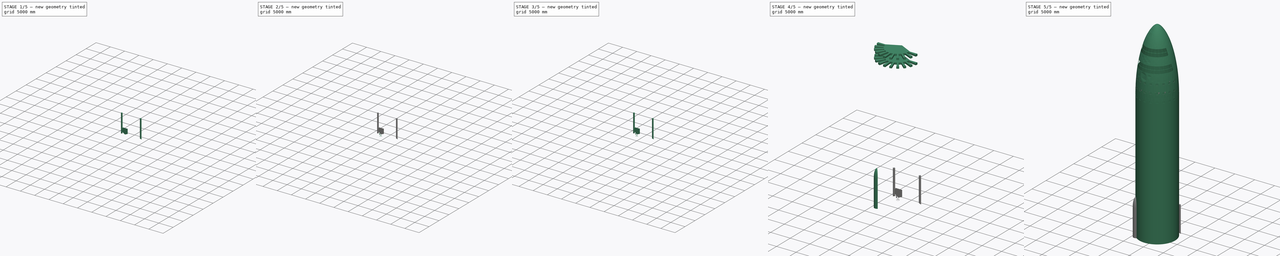
[diagram: build sequence overview — one tinted view per stage of 5, left to right]
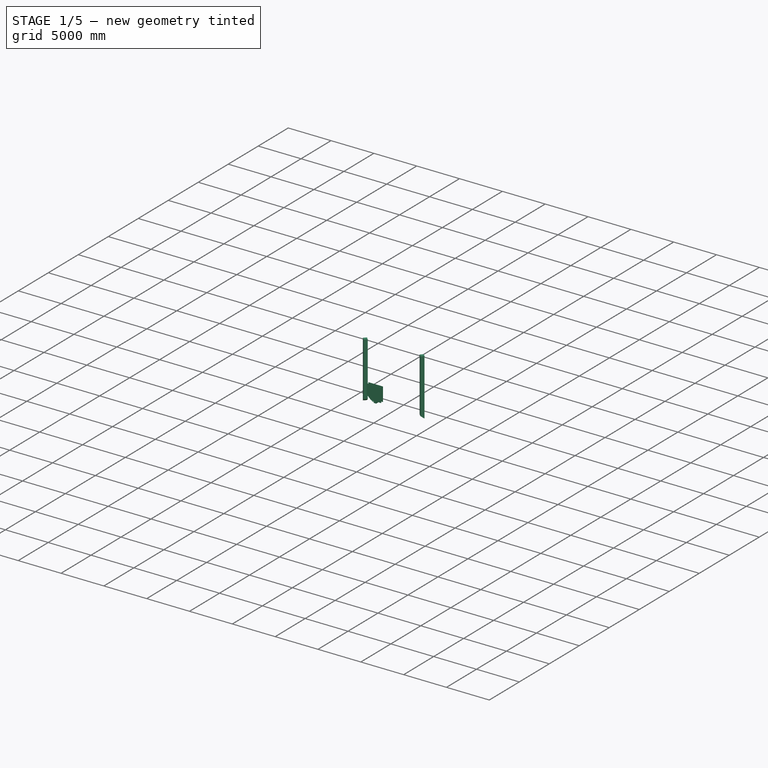
[diagram: stage 1 of 5 — iso view after this stage's code; geometry added in this stage tinted green]
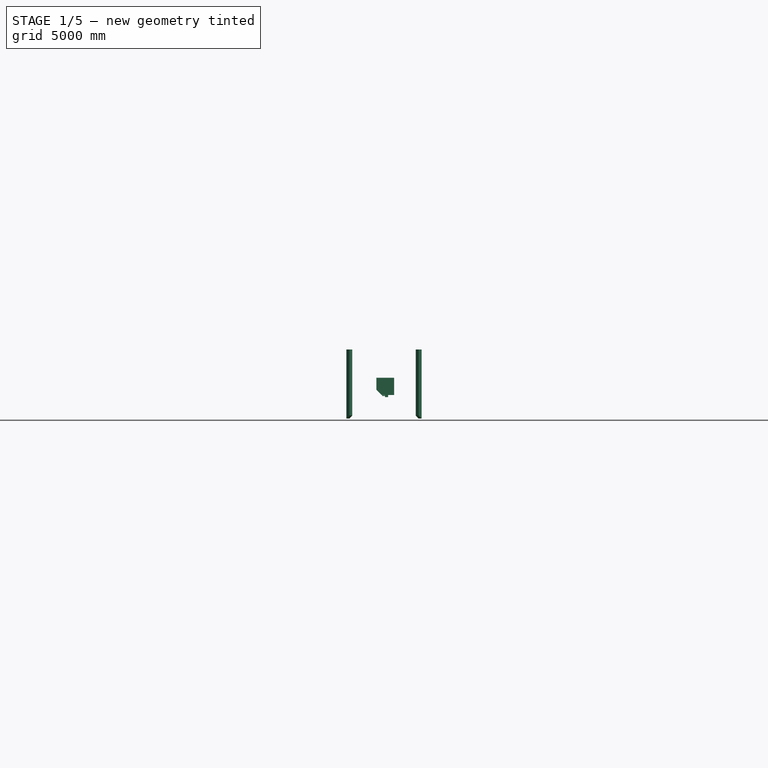
[diagram: stage 1 of 5 — front view after this stage's code; geometry added in this stage tinted green]
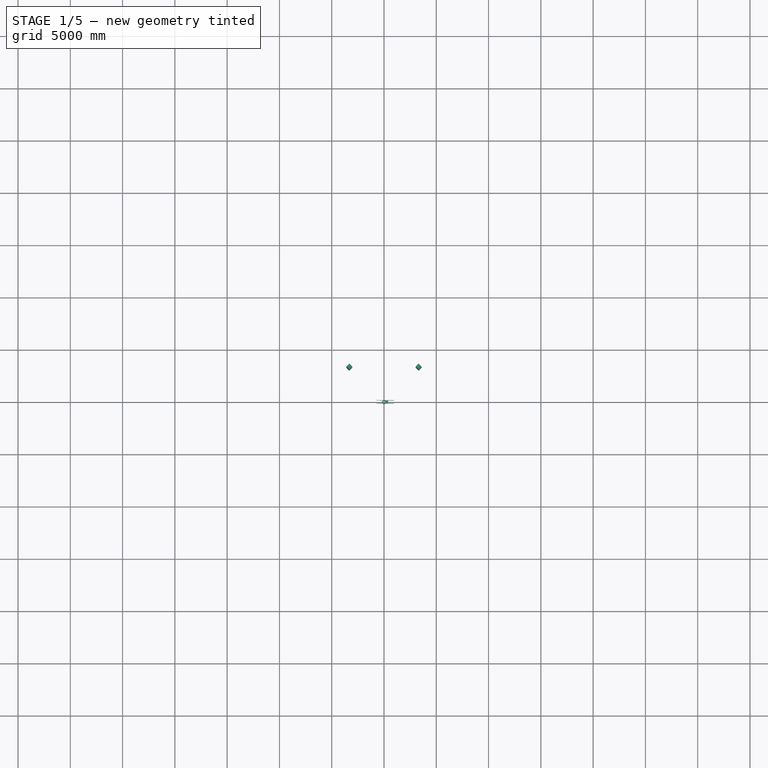
[diagram: stage 1 of 5 — top view after this stage's code; geometry added in this stage tinted green]
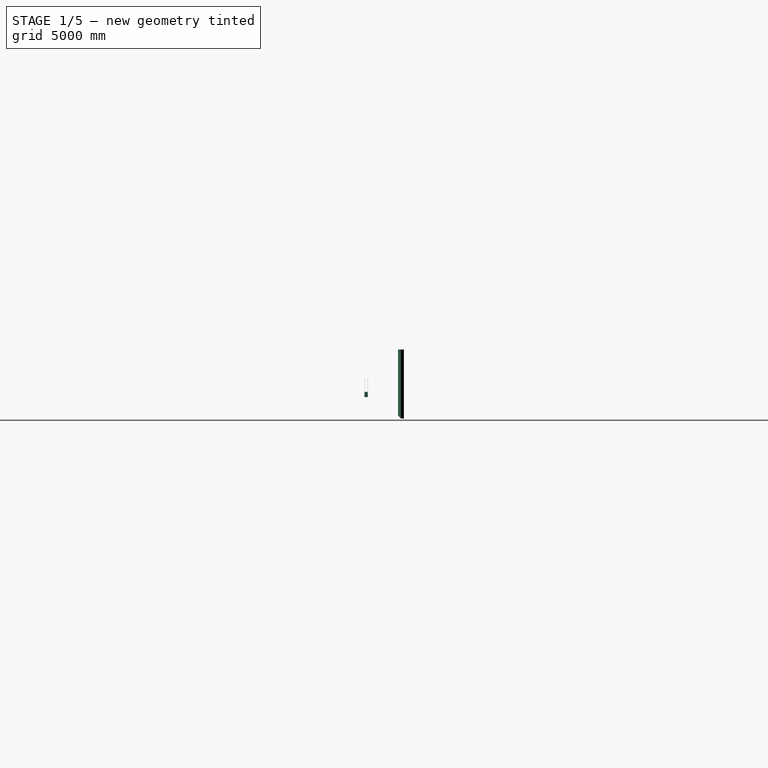
[diagram: stage 1 of 5 — right view after this stage's code; geometry added in this stage tinted green]
FCSTD DOCUMENT  (FreeCAD 0.17R13509 (Git))
Label: bfs
License: All rights reserved
LicenseURL: http://en.wikipedia.org/wiki/All_rights_reserved
objects: Sketcher::SketchObject×88, Part::Revolution×37, Part::Torus×36, Part::Sweep×16, App::Part×15, Part::Part2DObjectPython×14, Part::Fillet×13, Part::Extrusion×9, Part::Loft×8, Part::Cylinder×6, Part::Mirroring×5, Part::Box×4, Part::FeaturePython×1, Part::MultiFuse×1, Part::Cut×1
note: 239 computed .brp shape members not serialized (recipe doc carries the construction recipe); baked Part::Feature solids carry a one-line shape summary decoded from their .brp

FEATURE [Part::Sweep] Sweep011  label="fuel005"
  Frenet = false
  Placement = pos=(0,0,0) rot=(0,0,-1;0.523599rad)
  Sections = -> [Sketch099]
  Solid = false
  Spine = -> Sketch098 [Edge1,Edge2]
  Transition = 1
FEATURE [Part::Torus] Torus035  label="injector torus005"
  Angle1 = -180
  Angle2 = 180
  Angle3 = 360
  AttacherType = Attacher::AttachEngine3D
  Placement = pos=(0,0,2199) rot=(0,0,1;0rad)
  Radius1 = 150
  Radius2 = 40
FEATURE [App::Part] Part006  label="raptor005"
  Group = -> [Sketch093,Revolve049,Cylinder007,Fillet012,Torus034,Torus030,Torus032,Sketch100,Sketch094,Sketch092,Sweep010,Torus033,Torus031,Torus035,Sketch095,Sketch096,Sketch097,Revolve047,Revolve050,Revolve048,Sketch099,Sketch098,Sweep011]
  License = CC BY 3.0
  LicenseURL = http://creativecommons.org/licenses/by/3.0/
  Origin = -> Origin006
  Placement = pos=(-2000,2000,2090) rot=(0,0,1;-0.785398rad)
FEATURE [Sketcher::SketchObject] Sketch101  label="fuel line path"
  Placement = pos=(0,0,0) rot=(1,0,0;1.5708rad)
  sketch-geometry (3):
    g0: LineSegment StartX=400 StartY=2200 StartZ=0 EndX=3487.24 EndY=2200 EndZ=0
    g1: ArcOfCircle CenterX=3487.24 CenterY=1552.9 CenterZ=0 NormalX=0 NormalY=0 NormalZ=1 AngleXU=0 Radius=647.105 StartAngle=6.27456 EndAngle=7.85398
    g2: LineSegment StartX=4134.32 StartY=1547.31 StartZ=0 EndX=4134.32 EndY=243.912 EndZ=0
  constraints (6):
    c: Horizontal(g0)
    c: Coincident(g0,g1)
    c: Coincident(g2,g1)
    c: Vertical(g2)
    c: DistanceX(g1) = 4134.32
    c: DistanceY(g0) = 2200
FEATURE [Sketcher::SketchObject] Sketch102  label="fuel line cross section"
  Placement = pos=(3000,0,0) rot=(0.57735,0.57735,0.57735;2.0944rad)
  sketch-geometry (1):
    g0: Circle CenterX=0 CenterY=2200 CenterZ=0 NormalX=0 NormalY=0 NormalZ=1 AngleXU=0 Radius=90
FEATURE [Sketcher::SketchObject] Sketch103  label="fuel line nozzle1"
  Placement = pos=(0,0,0) rot=(1,0,0;1.5708rad)
  sketch-geometry (3):
    g0: LineSegment StartX=4224.31 StartY=344.661 StartZ=0 EndX=4255.5 EndY=344.661 EndZ=0
    g1: LineSegment StartX=4255.5 StartY=344.661 StartZ=0 EndX=4224.3 EndY=0 EndZ=0
    g2: LineSegment StartX=4224.3 StartY=0 StartZ=0 EndX=4220 EndY=0 EndZ=0
  constraints (2):
    c: Coincident(g1,g0)
    c: Coincident(g2,g1)
FEATURE [Sketcher::SketchObject] Sketch104  label="fuel line nozzle path"
  Placement = pos=(0,0,0) rot=(1,0,0;1.5708rad)
  sketch-geometry (1):
    g0: LineSegment StartX=4133.85 StartY=344.341 StartZ=0 EndX=4133.85 EndY=0 EndZ=0
  constraints (1):
    c: Vertical(g0)
FEATURE [Part::Revolution] Revolve051  label="fuel line nozzle revolve"
  Angle = 360
  Axis = (0,0,-1)
  AxisLink = -> Sketch104 [Edge1]
  Base = (4133.85,0,0)
  FaceMakerClass = Part::FaceMakerBullseye
  Solid = false
  Source = -> Sketch103
  Symmetric = false
FEATURE [Sketcher::SketchObject] Sketch105  label="fuel line nozzle2"
  Placement = pos=(0,0,0) rot=(1,0,0;1.5708rad)
  sketch-geometry (3):
    g0: LineSegment StartX=4224.31 StartY=344.661 StartZ=0 EndX=4224.31 EndY=344.661 EndZ=0
    g1: LineSegment StartX=4224.31 StartY=344.661 StartZ=0 EndX=4255.41 EndY=0 EndZ=0
    g2: LineSegment StartX=4255.41 StartY=0 StartZ=0 EndX=4250 EndY=0 EndZ=0
  constraints (2):
    c: Coincident(g1,g0)
    c: Coincident(g2,g1)
FEATURE [Part::Revolution] Revolve052  label="fuel line nozzle2 revolve"
  Angle = 360
  Axis = (0,0,-1)
  AxisLink = -> Sketch104 [Edge1]
  Base = (4133.85,0,0)
  FaceMakerClass = Part::FaceMakerBullseye
  Solid = false
  Source = -> Sketch105
  Symmetric = false
FEATURE [Part::Sweep] Sweep012  label="fuel line sweep"
  Frenet = false
  Sections = -> [Sketch102]
  Solid = false
  Spine = -> Sketch101 [Edge1,Edge2,Edge3]
  Transition = 0
FEATURE [Sketcher::SketchObject] Sketch121  label="landing leg sketch"
  Placement = pos=(0,0,0) rot=(1,0,0;1.5708rad)
  sketch-geometry (4):
    g0: LineSegment StartX=2890 StartY=6611.07 StartZ=0 EndX=3289.28 EndY=6611.07 EndZ=0
    g1: LineSegment StartX=3289.28 StartY=6611.07 StartZ=0 EndX=3289.28 EndY=1.81201 EndZ=0
    g2: LineSegment StartX=3289.28 StartY=1.81201 StartZ=0 EndX=2890 EndY=296.712 EndZ=0
    g3: LineSegment StartX=2890 StartY=296.712 StartZ=0 EndX=2890 EndY=6611.07 EndZ=0
  constraints (7):
    c: Coincident(g0,g1)
    c: Coincident(g1,g2)
    c: Coincident(g2,g3)
    c: Coincident(g3,g0)
    c: Horizontal(g0)
    c: Vertical(g1)
    c: Vertical(g3)
FEATURE [Part::Extrusion] Extrude  label="landing leg "
  Base = -> Sketch121
  Dir = (0,-1,0)
  DirMode = 2
  FaceMakerClass = Part::FaceMakerBullseye
  LengthFwd = 400
  LengthRev = 0
  Placement = pos=(1270,-1000,0) rot=(0,0,-1;0.785398rad)
  Solid = true
  Symmetric = false
FEATURE [Part::Mirroring] Part__Mirroring004  label="landing leg  (Mirror #3)"
  Base = (0,0,0)
  Normal = (1,0,0)
  Source = -> Extrude
FEATURE [Sketcher::SketchObject] Sketch010
  Placement = pos=(0,0,0) rot=(1,0,0;1.5708rad)
  sketch-geometry (5):
    g0: LineSegment StartX=-226.598 StartY=2259.07 StartZ=0 EndX=973.715 EndY=2259.07 EndZ=0
    g1: LineSegment StartX=973.715 StartY=2259.07 StartZ=0 EndX=973.715 EndY=3901 EndZ=0
    g2: LineSegment StartX=973.715 StartY=3901 StartZ=0 EndX=-726.285 EndY=3901 EndZ=0
    g3: LineSegment StartX=-726.285 StartY=2758.76 StartZ=0 EndX=-226.598 EndY=2259.07 EndZ=0
    g4: LineSegment StartX=-726.285 StartY=3901 StartZ=0 EndX=-726.285 EndY=2758.76 EndZ=0
  constraints (10):
    c: Horizontal(g0)
    c: Coincident(g0,g1)
    c: Vertical(g1)
    c: Coincident(g1,g2)
    c: Horizontal(g2)
    c: Coincident(g3,g0)
    c: Angle(g0,g3) = 2.35619
    c: Coincident(g4,g2)
    c: Coincident(g4,g3)
    c: Vertical(g4)
FEATURE [Part::Extrusion] Extrude001
  Base = -> Sketch010
  Dir = (0,-1,0)
  DirMode = 2
  FaceMakerClass = Part::FaceMakerBullseye
  LengthFwd = 10
  LengthRev = 0
  Placement = pos=(0,-140,0) rot=(0,0,1;0rad)
  Solid = true
  Symmetric = false
FEATURE [Part::Extrusion] Extrude002
  Base = -> Sketch010
  Dir = (0,-1,0)
  DirMode = 2
  FaceMakerClass = Part::FaceMakerBullseye
  LengthFwd = 10
  LengthRev = 0
  Placement = pos=(0,150,0) rot=(0,0,1;0rad)
  Solid = true
  Symmetric = false
FEATURE [App::Part] Part011  label="mount"
  Group = -> [Sketch010,Extrude001,Extrude002]
  License = CC BY 3.0
  LicenseURL = http://creativecommons.org/licenses/by/3.0/
  Origin = -> Origin011
  Placement = pos=(2000,2000,2090) rot=(0,0,1;3.92699rad)
FEATURE [Sketcher::SketchObject] Sketch122
  Placement = pos=(0,0,0) rot=(1,0,0;1.5708rad)
  sketch-geometry (5):
    g0: LineSegment StartX=-226.598 StartY=2259.07 StartZ=0 EndX=973.715 EndY=2259.07 EndZ=0
    g1: LineSegment StartX=973.715 StartY=2259.07 StartZ=0 EndX=973.715 EndY=3901 EndZ=0
    g2: LineSegment StartX=973.715 StartY=3901 StartZ=0 EndX=-726.285 EndY=3901 EndZ=0
    g3: LineSegment StartX=-726.285 StartY=2758.76 StartZ=0 EndX=-226.598 EndY=2259.07 EndZ=0
    g4: LineSegment StartX=-726.285 StartY=3901 StartZ=0 EndX=-726.285 EndY=2758.76 EndZ=0
  constraints (10):
    c: Horizontal(g0)
    c: Coincident(g0,g1)
    c: Vertical(g1)
    c: Coincident(g1,g2)
    c: Horizontal(g2)
    c: Coincident(g3,g0)
    c: Angle(g0,g3) = 2.35619
    c: Coincident(g4,g2)
    c: Coincident(g4,g3)
    c: Vertical(g4)
FEATURE [Part::Extrusion] Extrude003
  Base = -> Sketch122
  Dir = (0,-1,0)
  DirMode = 2
  FaceMakerClass = Part::FaceMakerBullseye
  LengthFwd = 10
  LengthRev = 0
  Placement = pos=(0,-140,0) rot=(0,0,1;0rad)
  Solid = true
  Symmetric = false
FEATURE [Part::Extrusion] Extrude004
  Base = -> Sketch122
  Dir = (0,-1,0)
  DirMode = 2
  FaceMakerClass = Part::FaceMakerBullseye
  LengthFwd = 10
  LengthRev = 0
  Placement = pos=(0,150,0) rot=(0,0,1;0rad)
  Solid = true
  Symmetric = false
FEATURE [App::Part] Part012  label="mount001"
  Group = -> [Sketch122,Extrude003,Extrude004]
  License = CC BY 3.0
  LicenseURL = http://creativecommons.org/licenses/by/3.0/
  Origin = -> Origin012
  Placement = pos=(2000,-2000,2090) rot=(0,0,1;2.35619rad)
FEATURE [Sketcher::SketchObject] Sketch123
  Placement = pos=(0,0,0) rot=(1,0,0;1.5708rad)
  sketch-geometry (5):
    g0: LineSegment StartX=-226.598 StartY=2259.07 StartZ=0 EndX=973.715 EndY=2259.07 EndZ=0
    g1: LineSegment StartX=973.715 StartY=2259.07 StartZ=0 EndX=973.715 EndY=3901 EndZ=0
    g2: LineSegment StartX=973.715 StartY=3901 StartZ=0 EndX=-726.285 EndY=3901 EndZ=0
    g3: LineSegment StartX=-726.285 StartY=2758.76 StartZ=0 EndX=-226.598 EndY=2259.07 EndZ=0
    g4: LineSegment StartX=-726.285 StartY=3901 StartZ=0 EndX=-726.285 EndY=2758.76 EndZ=0
  constraints (10):
    c: Horizontal(g0)
    c: Coincident(g0,g1)
    c: Vertical(g1)
    c: Coincident(g1,g2)
    c: Horizontal(g2)
    c: Coincident(g3,g0)
    c: Angle(g0,g3) = 2.35619
    c: Coincident(g4,g2)
    c: Coincident(g4,g3)
    c: Vertical(g4)
FEATURE [Part::Extrusion] Extrude005
  Base = -> Sketch123
  Dir = (0,-1,0)
  DirMode = 2
  FaceMakerClass = Part::FaceMakerBullseye
  LengthFwd = 10
  LengthRev = 0
  Placement = pos=(0,-140,0) rot=(0,0,1;0rad)
  Solid = true
  Symmetric = false
FEATURE [Part::Extrusion] Extrude006
  Base = -> Sketch123
  Dir = (0,-1,0)
  DirMode = 2
  FaceMakerClass = Part::FaceMakerBullseye
  LengthFwd = 10
  LengthRev = 0
  Placement = pos=(0,150,0) rot=(0,0,1;0rad)
  Solid = true
  Symmetric = false
FEATURE [App::Part] Part013  label="mount002"
  Group = -> [Sketch123,Extrude005,Extrude006]
  License = CC BY 3.0
  LicenseURL = http://creativecommons.org/licenses/by/3.0/
  Origin = -> Origin013
  Placement = pos=(-2000,-2000,2090) rot=(0,0,1;0.785398rad)
FEATURE [Sketcher::SketchObject] Sketch124
  Placement = pos=(0,0,0) rot=(1,0,0;1.5708rad)
  sketch-geometry (5):
    g0: LineSegment StartX=-226.598 StartY=2259.07 StartZ=0 EndX=973.715 EndY=2259.07 EndZ=0
    g1: LineSegment StartX=973.715 StartY=2259.07 StartZ=0 EndX=973.715 EndY=3901 EndZ=0
    g2: LineSegment StartX=973.715 StartY=3901 StartZ=0 EndX=-726.285 EndY=3901 EndZ=0
    g3: LineSegment StartX=-726.285 StartY=2758.76 StartZ=0 EndX=-226.598 EndY=2259.07 EndZ=0
    g4: LineSegment StartX=-726.285 StartY=3901 StartZ=0 EndX=-726.285 EndY=2758.76 EndZ=0
  constraints (10):
    c: Horizontal(g0)
    c: Coincident(g0,g1)
    c: Vertical(g1)
    c: Coincident(g1,g2)
    c: Horizontal(g2)
    c: Coincident(g3,g0)
    c: Angle(g0,g3) = 2.35619
    c: Coincident(g4,g2)
    c: Coincident(g4,g3)
    c: Vertical(g4)
FEATURE [Part::Extrusion] Extrude007
  Base = -> Sketch124
  Dir = (0,-1,0)
  DirMode = 2
  FaceMakerClass = Part::FaceMakerBullseye
  LengthFwd = 10
  LengthRev = 0
  Placement = pos=(0,-140,0) rot=(0,0,1;0rad)
  Solid = true
  Symmetric = false
FEATURE [Part::Extrusion] Extrude008
  Base = -> Sketch124
  Dir = (0,-1,0)
  DirMode = 2
  FaceMakerClass = Part::FaceMakerBullseye
  LengthFwd = 10
  LengthRev = 0
  Placement = pos=(0,150,0) rot=(0,0,1;0rad)
  Solid = true
  Symmetric = false
FEATURE [App::Part] Part014  label="mount003"
  Group = -> [Sketch124,Extrude007,Extrude008]
  License = CC BY 3.0
  LicenseURL = http://creativecommons.org/licenses/by/3.0/
  Origin = -> Origin014
  Placement = pos=(-2000,2000,2090) rot=(0,0,1;-0.785398rad)
FEATURE [Part::Box] Box  label="fuel line cube"
  AttacherType = Attacher::AttachEngine3D
  Height = 500
  Length = 300
  Placement = pos=(100,-150,2050) rot=(0,0,1;0rad)
  Width = 300
FEATURE [App::Part] Part007  label="fuel line"
  Group = -> [Sketch103,Sketch104,Revolve051,Sketch105,Revolve052,Sketch101,Sketch102,Sweep012,Box]
  License = CC BY 3.0
  LicenseURL = http://creativecommons.org/licenses/by/3.0/
  Origin = -> Origin007
  Placement = pos=(0,200,0) rot=(0,0,1;0.174533rad)
FEATURE [Sketcher::SketchObject] Sketch130  label="fuel line path002"
  Placement = pos=(0,0,0) rot=(1,0,0;1.5708rad)
  sketch-geometry (3):
    g0: LineSegment StartX=400 StartY=2200 StartZ=0 EndX=3487.24 EndY=2200 EndZ=0
    g1: ArcOfCircle CenterX=3487.24 CenterY=1552.9 CenterZ=0 NormalX=0 NormalY=0 NormalZ=1 AngleXU=0 Radius=647.105 StartAngle=6.27456 EndAngle=7.85398
    g2: LineSegment StartX=4134.32 StartY=1547.31 StartZ=0 EndX=4134.32 EndY=243.912 EndZ=0
  constraints (6):
    c: Horizontal(g0)
    c: Coincident(g0,g1)
    c: Coincident(g2,g1)
    c: Vertical(g2)
    c: DistanceX(g1) = 4134.32
    c: DistanceY(g0) = 2200
FEATURE [Sketcher::SketchObject] Sketch131  label="fuel line cross section002"
  Placement = pos=(3000,0,0) rot=(0.57735,0.57735,0.57735;2.0944rad)
  sketch-geometry (1):
    g0: Circle CenterX=0 CenterY=2200 CenterZ=0 NormalX=0 NormalY=0 NormalZ=1 AngleXU=0 Radius=90
FEATURE [Sketcher::SketchObject] Sketch132  label="fuel line nozzle005"
  Placement = pos=(0,0,0) rot=(1,0,0;1.5708rad)
  sketch-geometry (3):
    g0: LineSegment StartX=4224.31 StartY=344.661 StartZ=0 EndX=4255.5 EndY=344.661 EndZ=0
    g1: LineSegment StartX=4255.5 StartY=344.661 StartZ=0 EndX=4224.3 EndY=0 EndZ=0
    g2: LineSegment StartX=4224.3 StartY=0 StartZ=0 EndX=4220 EndY=0 EndZ=0
  constraints (2):
    c: Coincident(g1,g0)
    c: Coincident(g2,g1)
FEATURE [Sketcher::SketchObject] Sketch133  label="fuel line nozzle path002"
  Placement = pos=(0,0,0) rot=(1,0,0;1.5708rad)
  sketch-geometry (1):
    g0: LineSegment StartX=4133.85 StartY=344.341 StartZ=0 EndX=4133.85 EndY=0 EndZ=0
  constraints (1):
    c: Vertical(g0)
FEATURE [Part::Revolution] Revolve055  label="fuel line nozzle revolve002"
  Angle = 360
  Axis = (0,0,-1)
  AxisLink = -> Sketch133 [Edge1]
  Base = (4133.85,0,0)
  FaceMakerClass = Part::FaceMakerBullseye
  Solid = false
  Source = -> Sketch132
  Symmetric = false
FEATURE [Sketcher::SketchObject] Sketch134  label="fuel line nozzle006"
  Placement = pos=(0,0,0) rot=(1,0,0;1.5708rad)
  sketch-geometry (3):
    g0: LineSegment StartX=4224.31 StartY=344.661 StartZ=0 EndX=4224.31 EndY=344.661 EndZ=0
    g1: LineSegment StartX=4224.31 StartY=344.661 StartZ=0 EndX=4255.41 EndY=0 EndZ=0
    g2: LineSegment StartX=4255.41 StartY=0 StartZ=0 EndX=4250 EndY=0 EndZ=0
  constraints (2):
    c: Coincident(g1,g0)
    c: Coincident(g2,g1)
FEATURE [Part::Revolution] Revolve056  label="fuel line nozzle2 revolve002"
  Angle = 360
  Axis = (0,0,-1)
  AxisLink = -> Sketch133 [Edge1]
  Base = (4133.85,0,0)
  FaceMakerClass = Part::FaceMakerBullseye
  Solid = false
  Source = -> Sketch134
  Symmetric = false
FEATURE [Part::Sweep] Sweep014  label="fuel line sweep002"
  Frenet = false
  Sections = -> [Sketch131]
  Solid = false
  Spine = -> Sketch130 [Edge1,Edge2,Edge3]
  Transition = 0
FEATURE [Part::Box] Box002  label="fuel line cube002"
  AttacherType = Attacher::AttachEngine3D
  Height = 500
  Length = 300
  Placement = pos=(100,-150,2050) rot=(0,0,1;0rad)
  Width = 300
FEATURE [App::Part] Part016  label="fuel line002"
  Group = -> [Sketch132,Sketch133,Revolve055,Sketch134,Revolve056,Sketch130,Sketch131,Sweep014,Box002]
  License = CC BY 3.0
  LicenseURL = http://creativecommons.org/licenses/by/3.0/
  Origin = -> Origin016
  Placement = pos=(0,-200,0) rot=(0,0,1;3.31613rad)
FEATURE [Sketcher::SketchObject] Sketch135  label="fuel line path003"
  Placement = pos=(0,0,0) rot=(1,0,0;1.5708rad)
  sketch-geometry (3):
    g0: LineSegment StartX=400 StartY=2200 StartZ=0 EndX=3487.24 EndY=2200 EndZ=0
    g1: ArcOfCircle CenterX=3487.24 CenterY=1552.9 CenterZ=0 NormalX=0 NormalY=0 NormalZ=1 AngleXU=0 Radius=647.105 StartAngle=6.27456 EndAngle=7.85398
    g2: LineSegment StartX=4134.32 StartY=1547.31 StartZ=0 EndX=4134.32 EndY=243.912 EndZ=0
  constraints (6):
    c: Horizontal(g0)
    c: Coincident(g0,g1)
    c: Coincident(g2,g1)
    c: Vertical(g2)
    c: DistanceX(g1) = 4134.32
    c: DistanceY(g0) = 2200
FEATURE [Sketcher::SketchObject] Sketch136  label="fuel line cross section003"
  Placement = pos=(3000,0,0) rot=(0.57735,0.57735,0.57735;2.0944rad)
  sketch-geometry (1):
    g0: Circle CenterX=0 CenterY=2200 CenterZ=0 NormalX=0 NormalY=0 NormalZ=1 AngleXU=0 Radius=90
FEATURE [Sketcher::SketchObject] Sketch137  label="fuel line nozzle007"
  Placement = pos=(0,0,0) rot=(1,0,0;1.5708rad)
  sketch-geometry (3):
    g0: LineSegment StartX=4224.31 StartY=344.661 StartZ=0 EndX=4255.5 EndY=344.661 EndZ=0
    g1: LineSegment StartX=4255.5 StartY=344.661 StartZ=0 EndX=4224.3 EndY=0 EndZ=0
    g2: LineSegment StartX=4224.3 StartY=0 StartZ=0 EndX=4220 EndY=0 EndZ=0
  constraints (2):
    c: Coincident(g1,g0)
    c: Coincident(g2,g1)
FEATURE [Sketcher::SketchObject] Sketch138  label="fuel line nozzle path003"
  Placement = pos=(0,0,0) rot=(1,0,0;1.5708rad)
  sketch-geometry (1):
    g0: LineSegment StartX=4133.85 StartY=344.341 StartZ=0 EndX=4133.85 EndY=0 EndZ=0
  constraints (1):
    c: Vertical(g0)
FEATURE [Part::Revolution] Revolve057  label="fuel line nozzle revolve003"
  Angle = 360
  Axis = (0,0,-1)
  AxisLink = -> Sketch138 [Edge1]
  Base = (4133.85,0,0)
  FaceMakerClass = Part::FaceMakerBullseye
  Solid = false
  Source = -> Sketch137
  Symmetric = false
FEATURE [Sketcher::SketchObject] Sketch139  label="fuel line nozzle008"
  Placement = pos=(0,0,0) rot=(1,0,0;1.5708rad)
  sketch-geometry (3):
    g0: LineSegment StartX=4224.31 StartY=344.661 StartZ=0 EndX=4224.31 EndY=344.661 EndZ=0
    g1: LineSegment StartX=4224.31 StartY=344.661 StartZ=0 EndX=4255.41 EndY=0 EndZ=0
    g2: LineSegment StartX=4255.41 StartY=0 StartZ=0 EndX=4250 EndY=0 EndZ=0
  constraints (2):
    c: Coincident(g1,g0)
    c: Coincident(g2,g1)
FEATURE [Part::Revolution] Revolve058  label="fuel line nozzle2 revolve003"
  Angle = 360
  Axis = (0,0,-1)
  AxisLink = -> Sketch138 [Edge1]
  Base = (4133.85,0,0)
  FaceMakerClass = Part::FaceMakerBullseye
  Solid = false
  Source = -> Sketch139
  Symmetric = false
FEATURE [Part::Sweep] Sweep015  label="fuel line sweep003"
  Frenet = false
  Sections = -> [Sketch136]
  Solid = false
  Spine = -> Sketch135 [Edge1,Edge2,Edge3]
  Transition = 0
FEATURE [Part::Box] Box003  label="fuel line cube003"
  AttacherType = Attacher::AttachEngine3D
  Height = 500
  Length = 300
  Placement = pos=(100,-150,2050) rot=(0,0,1;0rad)
  Width = 300
FEATURE [App::Part] Part017  label="fuel line003"
  Group = -> [Sketch137,Sketch138,Revolve057,Sketch139,Revolve058,Sketch135,Sketch136,Sweep015,Box003]
  License = CC BY 3.0
  LicenseURL = http://creativecommons.org/licenses/by/3.0/
  Origin = -> Origin017
  Placement = pos=(0,-200,0) rot=(0,0,1;-0.174533rad)
FEATURE [Sketcher::SketchObject] Sketch140  label="fuel line path004"
  Placement = pos=(0,0,0) rot=(1,0,0;1.5708rad)
  sketch-geometry (3):
    g0: LineSegment StartX=400 StartY=2200 StartZ=0 EndX=3487.24 EndY=2200 EndZ=0
    g1: ArcOfCircle CenterX=3487.24 CenterY=1552.9 CenterZ=0 NormalX=0 NormalY=0 NormalZ=1 AngleXU=0 Radius=647.105 StartAngle=6.27456 EndAngle=7.85398
    g2: LineSegment StartX=4134.32 StartY=1547.31 StartZ=0 EndX=4134.32 EndY=243.912 EndZ=0
  constraints (6):
    c: Horizontal(g0)
    c: Coincident(g0,g1)
    c: Coincident(g2,g1)
    c: Vertical(g2)
    c: DistanceX(g1) = 4134.32
    c: DistanceY(g0) = 2200
FEATURE [Sketcher::SketchObject] Sketch141  label="fuel line cross section004"
  Placement = pos=(3000,0,0) rot=(0.57735,0.57735,0.57735;2.0944rad)
  sketch-geometry (1):
    g0: Circle CenterX=0 CenterY=2200 CenterZ=0 NormalX=0 NormalY=0 NormalZ=1 AngleXU=0 Radius=90
FEATURE [Sketcher::SketchObject] Sketch142  label="fuel line nozzle009"
  Placement = pos=(0,0,0) rot=(1,0,0;1.5708rad)
  sketch-geometry (3):
    g0: LineSegment StartX=4224.31 StartY=344.661 StartZ=0 EndX=4255.5 EndY=344.661 EndZ=0
    g1: LineSegment StartX=4255.5 StartY=344.661 StartZ=0 EndX=4224.3 EndY=0 EndZ=0
    g2: LineSegment StartX=4224.3 StartY=0 StartZ=0 EndX=4220 EndY=0 EndZ=0
  constraints (2):
    c: Coincident(g1,g0)
    c: Coincident(g2,g1)
FEATURE [Sketcher::SketchObject] Sketch143  label="fuel line nozzle path004"
  Placement = pos=(0,0,0) rot=(1,0,0;1.5708rad)
  sketch-geometry (1):
    g0: LineSegment StartX=4133.85 StartY=344.341 StartZ=0 EndX=4133.85 EndY=0 EndZ=0
  constraints (1):
    c: Vertical(g0)
FEATURE [Part::Revolution] Revolve059  label="fuel line nozzle revolve004"
  Angle = 360
  Axis = (0,0,-1)
  AxisLink = -> Sketch143 [Edge1]
  Base = (4133.85,0,0)
  FaceMakerClass = Part::FaceMakerBullseye
  Solid = false
  Source = -> Sketch142
  Symmetric = false
FEATURE [Sketcher::SketchObject] Sketch144  label="fuel line nozzle010"
  Placement = pos=(0,0,0) rot=(1,0,0;1.5708rad)
  sketch-geometry (3):
    g0: LineSegment StartX=4224.31 StartY=344.661 StartZ=0 EndX=4224.31 EndY=344.661 EndZ=0
    g1: LineSegment StartX=4224.31 StartY=344.661 StartZ=0 EndX=4255.41 EndY=0 EndZ=0
    g2: LineSegment StartX=4255.41 StartY=0 StartZ=0 EndX=4250 EndY=0 EndZ=0
  constraints (2):
    c: Coincident(g1,g0)
    c: Coincident(g2,g1)
FEATURE [Part::Revolution] Revolve060  label="fuel line nozzle2 revolve004"
  Angle = 360
  Axis = (0,0,-1)
  AxisLink = -> Sketch143 [Edge1]
  Base = (4133.85,0,0)
  FaceMakerClass = Part::FaceMakerBullseye
  Solid = false
  Source = -> Sketch144
  Symmetric = false
FEATURE [Part::Sweep] Sweep016  label="fuel line sweep004"
  Frenet = false
  Sections = -> [Sketch141]
  Solid = false
  Spine = -> Sketch140 [Edge1,Edge2,Edge3]
  Transition = 0
FEATURE [Part::Box] Box004  label="fuel line cube004"
  AttacherType = Attacher::AttachEngine3D
  Height = 500
  Length = 300
  Placement = pos=(100,-150,2050) rot=(0,0,1;0rad)
  Width = 300
FEATURE [App::Part] Part018  label="fuel line004"
  Group = -> [Sketch142,Sketch143,Revolve059,Sketch144,Revolve060,Sketch140,Sketch141,Sweep016,Box004]
  License = CC BY 3.0
  LicenseURL = http://creativecommons.org/licenses/by/3.0/
  Origin = -> Origin018
  Placement = pos=(0,200,0) rot=(0,0,1;2.96706rad)
FEATURE [Part::Mirroring] Part__Mirroring005  label="landing leg  (Mirror #4)"
  Base = (0,0,0)
  Normal = (0,1,0)
  Source = -> Extrude
FEATURE [Part::Mirroring] Part__Mirroring006  label="landing leg  (Mirror #5)"
  Base = (0,0,0)
  Normal = (0,1,0)
  Source = -> Part__Mirroring004
FEATURE [Sketcher::SketchObject] Sketch145
  Placement = pos=(0,0,0) rot=(-1,0,0;4.71239rad)
  sketch-geometry (6):
    g0: Circle [constr] CenterX=0 CenterY=29500 CenterZ=0 NormalX=0 NormalY=0 NormalZ=1 AngleXU=0 Radius=500
    g1: Circle [constr] CenterX=2850.03 CenterY=29500 CenterZ=0 NormalX=0 NormalY=0 NormalZ=1 AngleXU=0 Radius=500
    g2: Circle [constr] CenterX=4478.1 CenterY=26665.4 CenterZ=0 NormalX=0 NormalY=0 NormalZ=1 AngleXU=0 Radius=500
    g3: BSplineCurve PolesCount=3 KnotsCount=2 Degree=2 IsPeriodic=0
    g4: GeomPoint [constr] X=0 Y=29500 Z=0
    g5: GeomPoint [constr] X=4478.1 Y=26665.4 Z=0
  constraints (8):
    c: Radius(g0) = 500
    c: Equal(g0,g1)
    c: Equal(g0,g2)
    c: InternalAlignment(g0,g3)
    c: InternalAlignment(g1,g3)
    c: InternalAlignment(g2,g3)
    c: InternalAlignment(g4,g3)
    c: InternalAlignment(g5,g3)
FEATURE [Part::Revolution] Revolve061  label="tank2"
  Angle = 360
  Axis = (0,0,1)
  Base = (0,0,0)
  FaceMakerClass = Part::FaceMakerBullseye
  Solid = false
  Source = -> Sketch145
  Symmetric = false
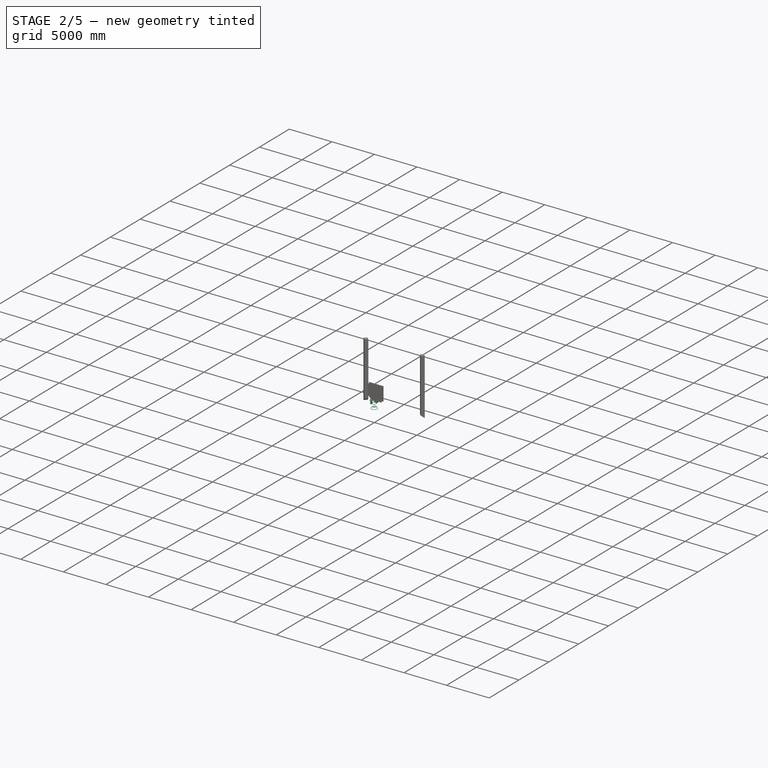
[diagram: stage 2 of 5 — iso view after this stage's code; geometry added in this stage tinted green]
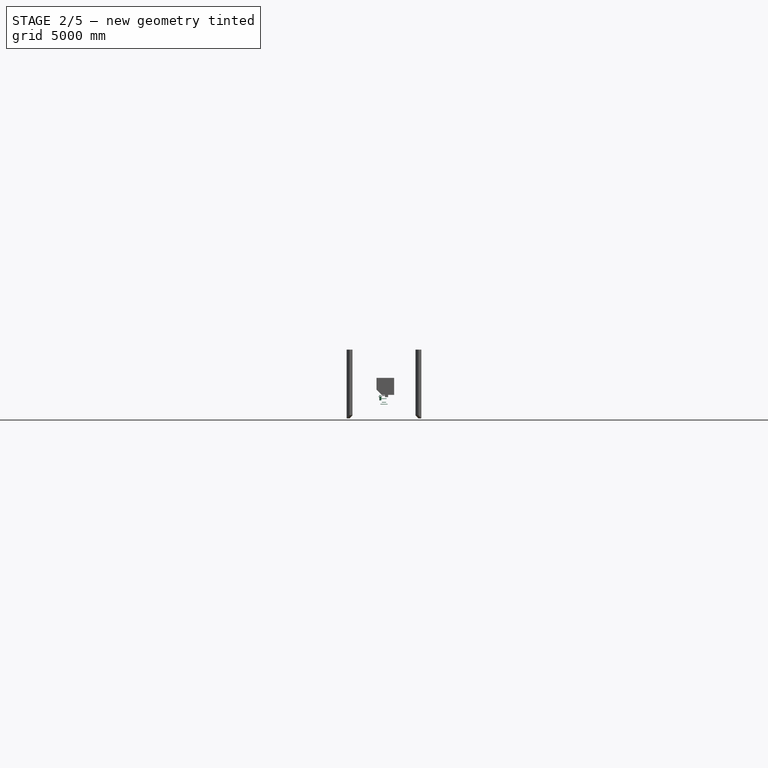
[diagram: stage 2 of 5 — front view after this stage's code; geometry added in this stage tinted green]
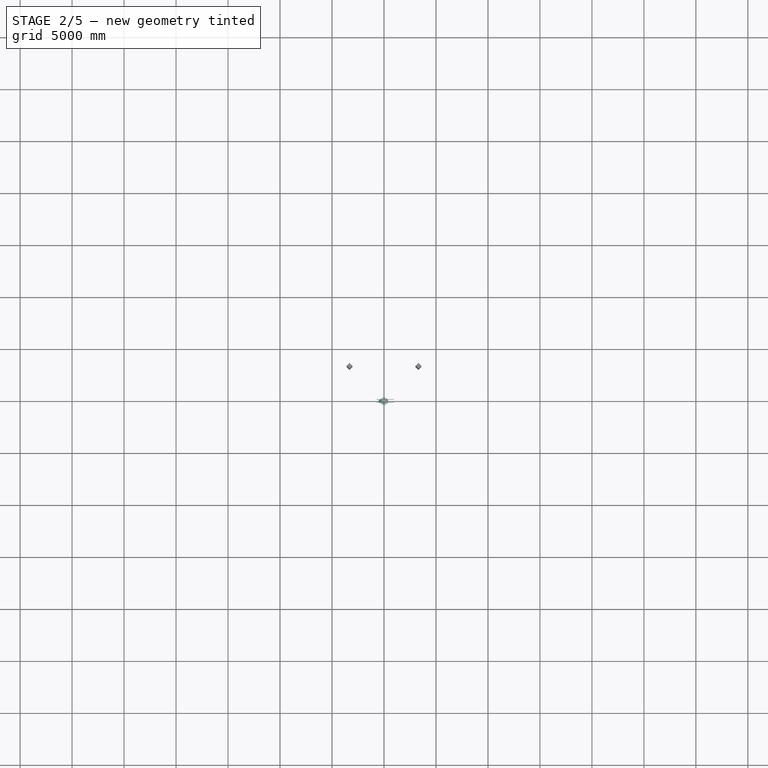
[diagram: stage 2 of 5 — top view after this stage's code; geometry added in this stage tinted green]
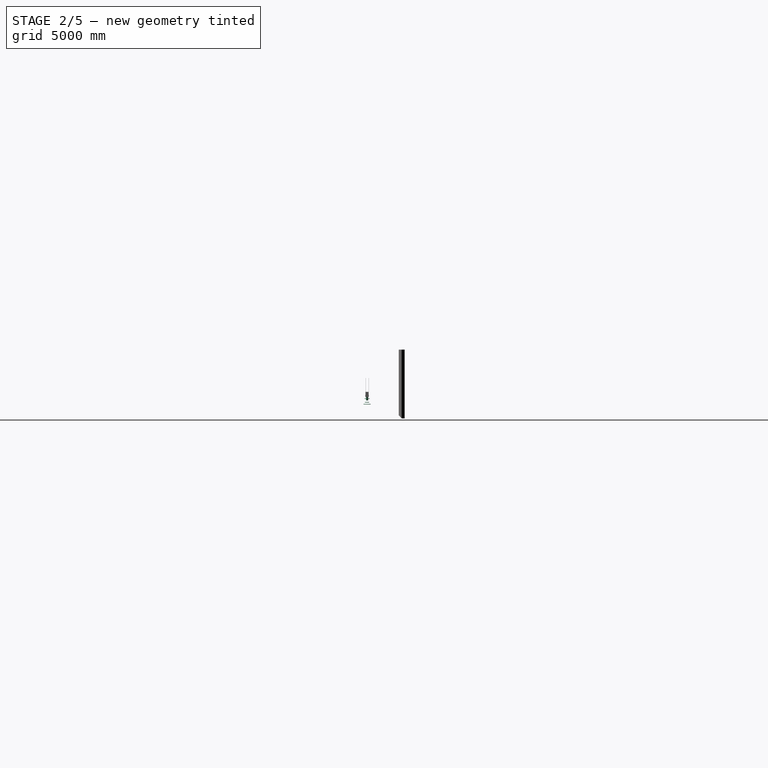
[diagram: stage 2 of 5 — right view after this stage's code; geometry added in this stage tinted green]
FEATURE [App::Part] Part003  label="raptor002"
  Group = -> [Sketch066,Revolve037,Cylinder004,Fillet009,Torus016,Torus012,Torus014,Sketch073,Sketch067,Sketch065,Sweep004,Torus015,Torus013,Torus017,Sketch068,Sketch069,Sketch070,Revolve035,Revolve038,Revolve036,Sketch072,Sketch071,Sweep005]
  License = CC BY 3.0
  LicenseURL = http://creativecommons.org/licenses/by/3.0/
  Origin = -> Origin003
  Placement = pos=(2000,2000,2090) rot=(0,0,1;3.92699rad)
FEATURE [Part::Cylinder] Cylinder005
  Angle = 360
  AttacherType = Attacher::AttachEngine3D
  Height = 350
  Placement = pos=(-350,0,1730) rot=(0,0,1;0rad)
  Radius = 100
FEATURE [Sketcher::SketchObject] Sketch082
  Placement = pos=(0,0,1370) rot=(0,0,1;0rad)
  sketch-geometry (1):
    g0: Circle CenterX=-328.814 CenterY=-0.522608 CenterZ=0 NormalX=0 NormalY=0 NormalZ=1 AngleXU=0 Radius=18.5281
FEATURE [Part::Sweep] Sweep006
  Frenet = false
  Sections = -> [Sketch074,Sketch082]
  Solid = false
  Spine = -> Sketch076 [Edge1]
  Transition = 1
FEATURE [Part::Torus] Torus022  label="fuel torus003"
  Angle1 = -180
  Angle2 = 180
  Angle3 = 360
  AttacherType = Attacher::AttachEngine3D
  Placement = pos=(0,0,1370) rot=(0,0,1;0rad)
  Radius1 = 333
  Radius2 = 20
FEATURE [Part::Sweep] Sweep007  label="fuel003"
  Frenet = false
  Placement = pos=(0,0,0) rot=(0,0,-1;0.523599rad)
  Sections = -> [Sketch081]
  Solid = false
  Spine = -> Sketch080 [Edge1,Edge2]
  Transition = 1
FEATURE [Part::Torus] Torus023  label="injector torus003"
  Angle1 = -180
  Angle2 = 180
  Angle3 = 360
  AttacherType = Attacher::AttachEngine3D
  Placement = pos=(0,0,2199) rot=(0,0,1;0rad)
  Radius1 = 150
  Radius2 = 40
FEATURE [App::Part] Part004  label="raptor003"
  Group = -> [Sketch075,Revolve041,Cylinder005,Fillet010,Torus022,Torus018,Torus020,Sketch082,Sketch076,Sketch074,Sweep006,Torus021,Torus019,Torus023,Sketch077,Sketch078,Sketch079,Revolve039,Revolve042,Revolve040,Sketch081,Sketch080,Sweep007]
  License = CC BY 3.0
  LicenseURL = http://creativecommons.org/licenses/by/3.0/
  Origin = -> Origin004
  Placement = pos=(2000,-2000,2090) rot=(0,0,1;2.35619rad)
FEATURE [Part::Cylinder] Cylinder006
  Angle = 360
  AttacherType = Attacher::AttachEngine3D
  Height = 350
  Placement = pos=(-350,0,1730) rot=(0,0,1;0rad)
  Radius = 100
FEATURE [Part::Torus] Torus024  label="gimbal torus004"
  Angle1 = -180
  Angle2 = 180
  Angle3 = 360
  AttacherType = Attacher::AttachEngine3D
  Placement = pos=(0,0,1550) rot=(0,0,1;0rad)
  Radius1 = 190
  Radius2 = 20
FEATURE [Sketcher::SketchObject] Sketch083
  Placement = pos=(0,0,1738) rot=(0,0,1;0rad)
  sketch-geometry (1):
    g0: Circle CenterX=-350.051 CenterY=-0.049992 CenterZ=0 NormalX=0 NormalY=0 NormalZ=1 AngleXU=0 Radius=34.4116
FEATURE [Sketcher::SketchObject] Sketch084  label="sea level sketch004"
  Placement = pos=(0,0,0) rot=(1,0,0;1.5708rad)
  sketch-geometry (32):
    g0: LineSegment StartX=650 StartY=0 StartZ=0 EndX=640 EndY=0 EndZ=0
    g1-g5: Circle [constr] x5 (B-spline internal-alignment scaffolding for g6; pole/knot coordinates omitted)
    g6: BSplineCurve PolesCount=5 KnotsCount=3 Degree=3 IsPeriodic=0
    g7: GeomPoint [constr] X=650 Y=0 Z=0
    g8: GeomPoint [constr] X=445.682 Y=1102.68 Z=0
    g9: GeomPoint [constr] X=170.497 Y=1542.07 Z=0
    g10: Circle [constr] CenterX=170.497 CenterY=1542.07 CenterZ=0 NormalX=0 NormalY=0 NormalZ=1 AngleXU=0 Radius=20
    g11: Circle [constr] CenterX=220.155 CenterY=1796.29 CenterZ=0 NormalX=0 NormalY=0 NormalZ=1 AngleXU=0 Radius=20
    g12-g15: Circle [constr] x4 (B-spline internal-alignment scaffolding for g16; pole/knot coordinates omitted)
    g16: BSplineCurve PolesCount=4 KnotsCount=2 Degree=3 IsPeriodic=0
    g17: GeomPoint [constr] X=220.155 Y=1796.29 Z=0
    g18: GeomPoint [constr] X=0 Y=2090 Z=0
    g19: Circle [constr] CenterX=160.049 CenterY=1569.58 CenterZ=0 NormalX=0 NormalY=0 NormalZ=1 AngleXU=0 Radius=3
    g20: Circle [constr] CenterX=159.309 CenterY=1555.59 CenterZ=0 NormalX=0 NormalY=0 NormalZ=1 AngleXU=0 Radius=3
    g21: Circle [constr] CenterX=170.497 CenterY=1542.07 CenterZ=0 NormalX=0 NormalY=0 NormalZ=1 AngleXU=0 Radius=2.32171
    g22: BSplineCurve PolesCount=3 KnotsCount=2 Degree=2 IsPeriodic=0
    g23: GeomPoint [constr] X=160.049 Y=1569.58 Z=0
    g24: GeomPoint [constr] X=170.497 Y=1542.07 Z=0
    g25-g28: Circle [constr] x4 (B-spline internal-alignment scaffolding for g29; pole/knot coordinates omitted)
    g29: BSplineCurve PolesCount=4 KnotsCount=2 Degree=3 IsPeriodic=0
    g30: GeomPoint [constr] X=220.155 Y=1796.29 Z=0
    g31: GeomPoint [constr] X=160.049 Y=1569.58 Z=0
  constraints (33):
    c: Coincident(g1,g0)
    c: Radius(g1) = 100
    c: Equal(g1, g2-g5) x4
    c: InternalAlignment(g1-g5 -> g6) x5
    c: InternalAlignment(g7,g6)
    c: InternalAlignment(g8,g6)
    c: InternalAlignment(g9,g6)
    c: Coincident(g10,g5)
    c: Radius(g10) = 20
    c: Coincident(g12,g11)
    c: Radius(g12) = 40
    c: Equal(g12,g13)
    c: Equal(g12,g14)
    c: Equal(g12,g15)
    c: InternalAlignment(g12-g15 -> g16) x4
    c: InternalAlignment(g17,g16)
    c: InternalAlignment(g18,g16)
    c: Radius(g19) = 3
    c: Equal(g19,g20)
    c: PointOnObject(g21,g6)
    c: InternalAlignment(g19,g22)
    c: InternalAlignment(g20,g22)
    c: InternalAlignment(g21,g22)
    c: InternalAlignment(g23,g22)
    c: InternalAlignment(g24,g22)
    c: Coincident(g5,g21)
    c: Coincident(g25,g11)
    c: Radius(g25) = 10
    c: Equal(g25,g28)
    c: Coincident(g28,g19)
    c: InternalAlignment(g25-g28 -> g29) x4
    c: InternalAlignment(g30,g29)
    c: InternalAlignment(g31,g29)
FEATURE [Sketcher::SketchObject] Sketch085  label="sweep path004"
  Placement = pos=(0,0,0) rot=(1,0,0;1.5708rad)
  sketch-geometry (9):
    g0-g4: Circle [constr] x5 (B-spline internal-alignment scaffolding for g5; pole/knot coordinates omitted)
    g5: BSplineCurve PolesCount=5 KnotsCount=3 Degree=3 IsPeriodic=0
    g6: GeomPoint [constr] X=-348.852 Y=1731.94 Z=0
    g7: GeomPoint [constr] X=-242.341 Y=1587.72 Z=0
    g8: GeomPoint [constr] X=-347.061 Y=1370 Z=0
  constraints (6):
    c: Radius(g0) = 10
    c: Equal(g0,g4)
    c: InternalAlignment(g0-g4 -> g5) x5
    c: InternalAlignment(g6,g5)
    c: InternalAlignment(g7,g5)
    c: InternalAlignment(g8,g5)
FEATURE [Sketcher::SketchObject] Sketch086  label="injector sketch004"
  Placement = pos=(0,0,0) rot=(1,0,0;1.5708rad)
  sketch-geometry (9):
    g0: Circle [constr] CenterX=110 CenterY=2200 CenterZ=0 NormalX=0 NormalY=0 NormalZ=1 AngleXU=0 Radius=10
    g1: Circle [constr] CenterX=110 CenterY=2140 CenterZ=0 NormalX=0 NormalY=0 NormalZ=1 AngleXU=0 Radius=10
    g2: Circle [constr] CenterX=146.985 CenterY=2082.42 CenterZ=0 NormalX=0 NormalY=0 NormalZ=1 AngleXU=0 Radius=10
    g3: BSplineCurve PolesCount=3 KnotsCount=2 Degree=2 IsPeriodic=0
    g4: GeomPoint [constr] X=110 Y=2200 Z=0
    g5: GeomPoint [constr] X=146.985 Y=2082.42 Z=0
    g6: LineSegment StartX=110 StartY=2200 StartZ=0 EndX=150 EndY=2238 EndZ=0
    g7: LineSegment StartX=150 StartY=2238 StartZ=0 EndX=150 EndY=2260 EndZ=0
    g8: LineSegment StartX=150 StartY=2260 StartZ=0 EndX=0 EndY=2260 EndZ=0
  constraints (13):
    c: Radius(g0) = 10
    c: Equal(g0,g1)
    c: Equal(g0,g2)
    c: InternalAlignment(g0,g3)
    c: InternalAlignment(g1,g3)
    c: InternalAlignment(g2,g3)
    c: InternalAlignment(g4,g3)
    c: InternalAlignment(g5,g3)
    c: Coincident(g6,g0)
    c: Coincident(g7,g6)
    c: Vertical(g7)
    c: Coincident(g8,g7)
    c: Horizontal(g8)
FEATURE [Sketcher::SketchObject] Sketch087  label="lox sketch004"
  Placement = pos=(0,0,0) rot=(1,0,0;1.5708rad)
  sketch-geometry (10):
    g0: Circle [constr] CenterX=-233.911 CenterY=2196.94 CenterZ=0 NormalX=0 NormalY=0 NormalZ=1 AngleXU=0 Radius=10
    g1: Circle [constr] CenterX=-293.034 CenterY=2140 CenterZ=0 NormalX=0 NormalY=0 NormalZ=1 AngleXU=0 Radius=10
    g2: Circle [constr] CenterX=-210 CenterY=2080 CenterZ=0 NormalX=0 NormalY=0 NormalZ=1 AngleXU=0 Radius=10
    g3: BSplineCurve PolesCount=3 KnotsCount=2 Degree=2 IsPeriodic=0
    g4: GeomPoint [constr] X=-233.911 Y=2196.94 Z=0
    g5: GeomPoint [constr] X=-210 Y=2080 Z=0
    g6: LineSegment StartX=-233.911 StartY=2196.94 StartZ=0 EndX=-291.228 EndY=2281.45 EndZ=0
    g7: LineSegment StartX=-291.228 StartY=2281.45 StartZ=0 EndX=-291.228 EndY=2461.19 EndZ=0
    g8: LineSegment StartX=-291.228 StartY=2461.19 StartZ=0 EndX=-354 EndY=2461.19 EndZ=0
    g9: LineSegment StartX=-210 StartY=2080 StartZ=0 EndX=-354 EndY=2080 EndZ=0
  constraints (17):
    c: Radius(g0) = 10
    c: Equal(g0,g1)
    c: Equal(g0,g2)
    c: InternalAlignment(g0,g3)
    c: InternalAlignment(g1,g3)
    c: InternalAlignment(g2,g3)
    c: InternalAlignment(g4,g3)
    c: InternalAlignment(g5,g3)
    c: Coincident(g6,g0)
    c: Coincident(g7,g6)
    c: Vertical(g7)
    c: Coincident(g8,g7)
    c: Horizontal(g8)
    c: Coincident(g9,g2)
    c: Horizontal(g9)
    c: DistanceX(g8,g-1) = 354
    c: DistanceX(g8,g9) = 0
FEATURE [Sketcher::SketchObject] Sketch088  label="vac sketch004"
  Placement = pos=(0,0,0) rot=(1,0,0;1.5708rad)
  sketch-geometry (32):
    g0: LineSegment StartX=1200 StartY=-2090 StartZ=0 EndX=1190 EndY=-2090 EndZ=0
    g1-g5: Circle [constr] x5 (B-spline internal-alignment scaffolding for g6; pole/knot coordinates omitted)
    g6: BSplineCurve PolesCount=5 KnotsCount=3 Degree=3 IsPeriodic=0
    g7: GeomPoint [constr] X=1200 Y=-2090 Z=0
    g8: GeomPoint [constr] X=644.157 Y=779.267 Z=0
    g9: GeomPoint [constr] X=170.497 Y=1542.07 Z=0
    g10: Circle [constr] CenterX=170.497 CenterY=1542.07 CenterZ=0 NormalX=0 NormalY=0 NormalZ=1 AngleXU=0 Radius=20
    g11: Circle [constr] CenterX=220.155 CenterY=1796.29 CenterZ=0 NormalX=0 NormalY=0 NormalZ=1 AngleXU=0 Radius=20
    g12-g15: Circle [constr] x4 (B-spline internal-alignment scaffolding for g16; pole/knot coordinates omitted)
    g16: BSplineCurve PolesCount=4 KnotsCount=2 Degree=3 IsPeriodic=0
    g17: GeomPoint [constr] X=220.155 Y=1796.29 Z=0
    g18: GeomPoint [constr] X=0 Y=2090 Z=0
    g19: Circle [constr] CenterX=160.049 CenterY=1569.58 CenterZ=0 NormalX=0 NormalY=0 NormalZ=1 AngleXU=0 Radius=3
    g20: Circle [constr] CenterX=159.309 CenterY=1555.59 CenterZ=0 NormalX=0 NormalY=0 NormalZ=1 AngleXU=0 Radius=3
    g21: Circle [constr] CenterX=170.497 CenterY=1542.07 CenterZ=0 NormalX=0 NormalY=0 NormalZ=1 AngleXU=0 Radius=2.32171
    g22: BSplineCurve PolesCount=3 KnotsCount=2 Degree=2 IsPeriodic=0
    g23: GeomPoint [constr] X=160.049 Y=1569.58 Z=0
    g24: GeomPoint [constr] X=170.497 Y=1542.07 Z=0
    g25-g28: Circle [constr] x4 (B-spline internal-alignment scaffolding for g29; pole/knot coordinates omitted)
    g29: BSplineCurve PolesCount=4 KnotsCount=2 Degree=3 IsPeriodic=0
    g30: GeomPoint [constr] X=220.155 Y=1796.29 Z=0
    g31: GeomPoint [constr] X=160.049 Y=1569.58 Z=0
  constraints (33):
    c: Coincident(g1,g0)
    c: Radius(g1) = 100
    c: Equal(g1, g2-g5) x4
    c: InternalAlignment(g1-g5 -> g6) x5
    c: InternalAlignment(g7,g6)
    c: InternalAlignment(g8,g6)
    c: InternalAlignment(g9,g6)
    c: Coincident(g10,g5)
    c: Radius(g10) = 20
    c: Coincident(g12,g11)
    c: Radius(g12) = 40
    c: Equal(g12,g13)
    c: Equal(g12,g14)
    c: Equal(g12,g15)
    c: InternalAlignment(g12-g15 -> g16) x4
    c: InternalAlignment(g17,g16)
    c: InternalAlignment(g18,g16)
    c: Radius(g19) = 3
    c: Equal(g19,g20)
    c: PointOnObject(g21,g6)
    c: InternalAlignment(g19,g22)
    c: InternalAlignment(g20,g22)
    c: InternalAlignment(g21,g22)
    c: InternalAlignment(g23,g22)
    c: InternalAlignment(g24,g22)
    c: Coincident(g5,g21)
    c: Coincident(g25,g11)
    c: Radius(g25) = 10
    c: Equal(g25,g28)
    c: Coincident(g28,g19)
    c: InternalAlignment(g25-g28 -> g29) x4
    c: InternalAlignment(g30,g29)
    c: InternalAlignment(g31,g29)
FEATURE [Part::Revolution] Revolve043  label="vac nozzle004"
  Angle = 360
  Axis = (0,0,1)
  Base = (0,0,0)
  FaceMakerClass = Part::FaceMakerBullseye
  Solid = false
  Source = -> Sketch088
  Symmetric = false
FEATURE [Sketcher::SketchObject] Sketch089  label="fuel sketch009"
  Placement = pos=(0,0,0) rot=(0.57735,0.57735,0.57735;2.0944rad)
  sketch-geometry (12):
    g0: Circle [constr] CenterX=-157.166 CenterY=2200 CenterZ=0 NormalX=0 NormalY=0 NormalZ=1 AngleXU=0 Radius=20
    g1: Circle [constr] CenterX=-241.173 CenterY=2212.08 CenterZ=0 NormalX=0 NormalY=0 NormalZ=1 AngleXU=0 Radius=20
    g2: Circle [constr] CenterX=-277.305 CenterY=2115.42 CenterZ=0 NormalX=0 NormalY=0 NormalZ=1 AngleXU=0 Radius=20
    g3: BSplineCurve PolesCount=3 KnotsCount=2 Degree=2 IsPeriodic=0
    g4: GeomPoint [constr] X=-157.166 Y=2200 Z=0
    g5: GeomPoint [constr] X=-277.305 Y=2115.42 Z=0
    g6: Circle [constr] CenterX=-277.305 CenterY=2115.42 CenterZ=0 NormalX=0 NormalY=0 NormalZ=1 AngleXU=0 Radius=40
    g7: Circle [constr] CenterX=-362.731 CenterY=1907.44 CenterZ=0 NormalX=0 NormalY=0 NormalZ=1 AngleXU=0 Radius=194.246
    g8: Circle [constr] CenterX=-198.718 CenterY=1566.22 CenterZ=0 NormalX=0 NormalY=0 NormalZ=1 AngleXU=0 Radius=40
    g9: BSplineCurve PolesCount=3 KnotsCount=2 Degree=2 IsPeriodic=0
    g10: GeomPoint [constr] X=-277.305 Y=2115.42 Z=0
    g11: GeomPoint [constr] X=-198.718 Y=1566.22 Z=0
  constraints (16):
    c: Radius(g0) = 20
    c: Equal(g0,g1)
    c: Equal(g0,g2)
    c: InternalAlignment(g0,g3)
    c: InternalAlignment(g1,g3)
    c: InternalAlignment(g2,g3)
    c: InternalAlignment(g4,g3)
    c: InternalAlignment(g5,g3)
    c: Coincident(g6,g2)
    c: Radius(g6) = 40
    c: Equal(g6,g8)
    c: InternalAlignment(g6,g9)
    c: InternalAlignment(g7,g9)
    c: InternalAlignment(g8,g9)
    c: InternalAlignment(g10,g9)
    c: InternalAlignment(g11,g9)
FEATURE [Part::Revolution] Revolve044  label="lox pump004"
  Angle = 360
  Axis = (0,0,1)
  Base = (-354,0,0)
  FaceMakerClass = Part::FaceMakerBullseye
  Solid = false
  Source = -> Sketch087
  Symmetric = false
FEATURE [Part::Torus] Torus025  label="pump torus009"
  Angle1 = -180
  Angle2 = 180
  Angle3 = 360
  AttacherType = Attacher::AttachEngine3D
  Placement = pos=(-354,0,2196) rot=(0,0,1;0rad)
  Radius1 = 110
  Radius2 = 30
FEATURE [Part::Torus] Torus026  label="combustor torus004"
  Angle1 = -180
  Angle2 = 180
  Angle3 = 360
  AttacherType = Attacher::AttachEngine3D
  Placement = pos=(0,0,1900) rot=(0,0,1;0rad)
  Radius1 = 240
  Radius2 = 20
FEATURE [Part::Revolution] Revolve045  label="sea level nozzle004"
  Angle = 360
  Axis = (0,0,1)
  Base = (0,0,0)
  FaceMakerClass = Part::FaceMakerBullseye
  Solid = false
  Source = -> Sketch084
  Symmetric = false
FEATURE [Sketcher::SketchObject] Sketch090  label="fuel sketch010"
  Placement = pos=(0,-157,0) rot=(1,0,0;1.5708rad)
  sketch-geometry (1):
    g0: Circle CenterX=0.155904 CenterY=2198.4 CenterZ=0 NormalX=0 NormalY=0 NormalZ=1 AngleXU=0 Radius=26.4167
FEATURE [Part::Torus] Torus027  label="pump torus010"
  Angle1 = -180
  Angle2 = 180
  Angle3 = 360
  AttacherType = Attacher::AttachEngine3D
  Placement = pos=(-354,0,2080) rot=(0,0,1;0rad)
  Radius1 = 150
  Radius2 = 20
FEATURE [Part::Revolution] Revolve046  label="injector004"
  Angle = 360
  Axis = (0,0,1)
  Base = (0,0,0)
  FaceMakerClass = Part::FaceMakerBullseye
  Solid = false
  Source = -> Sketch086
  Symmetric = false
FEATURE [Part::Fillet] Fillet011  label="methane pump004"
  Base = -> Cylinder006
  Edges = 2 edges: [Edge1 r=30,Edge3 r=100]
FEATURE [Sketcher::SketchObject] Sketch091
  Placement = pos=(0,0,1370) rot=(0,0,1;0rad)
  sketch-geometry (1):
    g0: Circle CenterX=-328.814 CenterY=-0.522608 CenterZ=0 NormalX=0 NormalY=0 NormalZ=1 AngleXU=0 Radius=18.5281
FEATURE [Part::Sweep] Sweep008
  Frenet = false
  Sections = -> [Sketch083,Sketch091]
  Solid = false
  Spine = -> Sketch085 [Edge1]
  Transition = 1
FEATURE [Part::Torus] Torus028  label="fuel torus004"
  Angle1 = -180
  Angle2 = 180
  Angle3 = 360
  AttacherType = Attacher::AttachEngine3D
  Placement = pos=(0,0,1370) rot=(0,0,1;0rad)
  Radius1 = 333
  Radius2 = 20
FEATURE [Part::Sweep] Sweep009  label="fuel004"
  Frenet = false
  Placement = pos=(0,0,0) rot=(0,0,-1;0.523599rad)
  Sections = -> [Sketch090]
  Solid = false
  Spine = -> Sketch089 [Edge1,Edge2]
  Transition = 1
FEATURE [Part::Torus] Torus029  label="injector torus004"
  Angle1 = -180
  Angle2 = 180
  Angle3 = 360
  AttacherType = Attacher::AttachEngine3D
  Placement = pos=(0,0,2199) rot=(0,0,1;0rad)
  Radius1 = 150
  Radius2 = 40
FEATURE [App::Part] Part005  label="raptor004"
  Group = -> [Sketch084,Revolve045,Cylinder006,Fillet011,Torus028,Torus024,Torus026,Sketch091,Sketch085,Sketch083,Sweep008,Torus027,Torus025,Torus029,Sketch086,Sketch087,Sketch088,Revolve043,Revolve046,Revolve044,Sketch090,Sketch089,Sweep009]
  License = CC BY 3.0
  LicenseURL = http://creativecommons.org/licenses/by/3.0/
  Origin = -> Origin005
  Placement = pos=(-2000,-2000,2090) rot=(0,0,1;0.785398rad)
FEATURE [Part::Cylinder] Cylinder007
  Angle = 360
  AttacherType = Attacher::AttachEngine3D
  Height = 350
  Placement = pos=(-350,0,1730) rot=(0,0,1;0rad)
  Radius = 100
FEATURE [Part::Torus] Torus030  label="gimbal torus005"
  Angle1 = -180
  Angle2 = 180
  Angle3 = 360
  AttacherType = Attacher::AttachEngine3D
  Placement = pos=(0,0,1550) rot=(0,0,1;0rad)
  Radius1 = 190
  Radius2 = 20
FEATURE [Sketcher::SketchObject] Sketch092
  Placement = pos=(0,0,1738) rot=(0,0,1;0rad)
  sketch-geometry (1):
    g0: Circle CenterX=-350.051 CenterY=-0.049992 CenterZ=0 NormalX=0 NormalY=0 NormalZ=1 AngleXU=0 Radius=34.4116
FEATURE [Sketcher::SketchObject] Sketch093  label="sea level sketch005"
  Placement = pos=(0,0,0) rot=(1,0,0;1.5708rad)
  sketch-geometry (32):
    g0: LineSegment StartX=650 StartY=0 StartZ=0 EndX=640 EndY=0 EndZ=0
    g1-g5: Circle [constr] x5 (B-spline internal-alignment scaffolding for g6; pole/knot coordinates omitted)
    g6: BSplineCurve PolesCount=5 KnotsCount=3 Degree=3 IsPeriodic=0
    g7: GeomPoint [constr] X=650 Y=0 Z=0
    g8: GeomPoint [constr] X=445.682 Y=1102.68 Z=0
    g9: GeomPoint [constr] X=170.497 Y=1542.07 Z=0
    g10: Circle [constr] CenterX=170.497 CenterY=1542.07 CenterZ=0 NormalX=0 NormalY=0 NormalZ=1 AngleXU=0 Radius=20
    g11: Circle [constr] CenterX=220.155 CenterY=1796.29 CenterZ=0 NormalX=0 NormalY=0 NormalZ=1 AngleXU=0 Radius=20
    g12-g15: Circle [constr] x4 (B-spline internal-alignment scaffolding for g16; pole/knot coordinates omitted)
    g16: BSplineCurve PolesCount=4 KnotsCount=2 Degree=3 IsPeriodic=0
    g17: GeomPoint [constr] X=220.155 Y=1796.29 Z=0
    g18: GeomPoint [constr] X=0 Y=2090 Z=0
    g19: Circle [constr] CenterX=160.049 CenterY=1569.58 CenterZ=0 NormalX=0 NormalY=0 NormalZ=1 AngleXU=0 Radius=3
    g20: Circle [constr] CenterX=159.309 CenterY=1555.59 CenterZ=0 NormalX=0 NormalY=0 NormalZ=1 AngleXU=0 Radius=3
    g21: Circle [constr] CenterX=170.497 CenterY=1542.07 CenterZ=0 NormalX=0 NormalY=0 NormalZ=1 AngleXU=0 Radius=2.32171
    g22: BSplineCurve PolesCount=3 KnotsCount=2 Degree=2 IsPeriodic=0
    g23: GeomPoint [constr] X=160.049 Y=1569.58 Z=0
    g24: GeomPoint [constr] X=170.497 Y=1542.07 Z=0
    g25-g28: Circle [constr] x4 (B-spline internal-alignment scaffolding for g29; pole/knot coordinates omitted)
    g29: BSplineCurve PolesCount=4 KnotsCount=2 Degree=3 IsPeriodic=0
    g30: GeomPoint [constr] X=220.155 Y=1796.29 Z=0
    g31: GeomPoint [constr] X=160.049 Y=1569.58 Z=0
  constraints (33):
    c: Coincident(g1,g0)
    c: Radius(g1) = 100
    c: Equal(g1, g2-g5) x4
    c: InternalAlignment(g1-g5 -> g6) x5
    c: InternalAlignment(g7,g6)
    c: InternalAlignment(g8,g6)
    c: InternalAlignment(g9,g6)
    c: Coincident(g10,g5)
    c: Radius(g10) = 20
    c: Coincident(g12,g11)
    c: Radius(g12) = 40
    c: Equal(g12,g13)
    c: Equal(g12,g14)
    c: Equal(g12,g15)
    c: InternalAlignment(g12-g15 -> g16) x4
    c: InternalAlignment(g17,g16)
    c: InternalAlignment(g18,g16)
    c: Radius(g19) = 3
    c: Equal(g19,g20)
    c: PointOnObject(g21,g6)
    c: InternalAlignment(g19,g22)
    c: InternalAlignment(g20,g22)
    c: InternalAlignment(g21,g22)
    c: InternalAlignment(g23,g22)
    c: InternalAlignment(g24,g22)
    c: Coincident(g5,g21)
    c: Coincident(g25,g11)
    c: Radius(g25) = 10
    c: Equal(g25,g28)
    c: Coincident(g28,g19)
    c: InternalAlignment(g25-g28 -> g29) x4
    c: InternalAlignment(g30,g29)
    c: InternalAlignment(g31,g29)
FEATURE [Sketcher::SketchObject] Sketch094  label="sweep path005"
  Placement = pos=(0,0,0) rot=(1,0,0;1.5708rad)
  sketch-geometry (9):
    g0-g4: Circle [constr] x5 (B-spline internal-alignment scaffolding for g5; pole/knot coordinates omitted)
    g5: BSplineCurve PolesCount=5 KnotsCount=3 Degree=3 IsPeriodic=0
    g6: GeomPoint [constr] X=-348.852 Y=1731.94 Z=0
    g7: GeomPoint [constr] X=-242.341 Y=1587.72 Z=0
    g8: GeomPoint [constr] X=-347.061 Y=1370 Z=0
  constraints (6):
    c: Radius(g0) = 10
    c: Equal(g0,g4)
    c: InternalAlignment(g0-g4 -> g5) x5
    c: InternalAlignment(g6,g5)
    c: InternalAlignment(g7,g5)
    c: InternalAlignment(g8,g5)
FEATURE [Sketcher::SketchObject] Sketch095  label="injector sketch005"
  Placement = pos=(0,0,0) rot=(1,0,0;1.5708rad)
  sketch-geometry (9):
    g0: Circle [constr] CenterX=110 CenterY=2200 CenterZ=0 NormalX=0 NormalY=0 NormalZ=1 AngleXU=0 Radius=10
    g1: Circle [constr] CenterX=110 CenterY=2140 CenterZ=0 NormalX=0 NormalY=0 NormalZ=1 AngleXU=0 Radius=10
    g2: Circle [constr] CenterX=146.985 CenterY=2082.42 CenterZ=0 NormalX=0 NormalY=0 NormalZ=1 AngleXU=0 Radius=10
    g3: BSplineCurve PolesCount=3 KnotsCount=2 Degree=2 IsPeriodic=0
    g4: GeomPoint [constr] X=110 Y=2200 Z=0
    g5: GeomPoint [constr] X=146.985 Y=2082.42 Z=0
    g6: LineSegment StartX=110 StartY=2200 StartZ=0 EndX=150 EndY=2238 EndZ=0
    g7: LineSegment StartX=150 StartY=2238 StartZ=0 EndX=150 EndY=2260 EndZ=0
    g8: LineSegment StartX=150 StartY=2260 StartZ=0 EndX=0 EndY=2260 EndZ=0
  constraints (13):
    c: Radius(g0) = 10
    c: Equal(g0,g1)
    c: Equal(g0,g2)
    c: InternalAlignment(g0,g3)
    c: InternalAlignment(g1,g3)
    c: InternalAlignment(g2,g3)
    c: InternalAlignment(g4,g3)
    c: InternalAlignment(g5,g3)
    c: Coincident(g6,g0)
    c: Coincident(g7,g6)
    c: Vertical(g7)
    c: Coincident(g8,g7)
    c: Horizontal(g8)
FEATURE [Sketcher::SketchObject] Sketch096  label="lox sketch005"
  Placement = pos=(0,0,0) rot=(1,0,0;1.5708rad)
  sketch-geometry (10):
    g0: Circle [constr] CenterX=-233.911 CenterY=2196.94 CenterZ=0 NormalX=0 NormalY=0 NormalZ=1 AngleXU=0 Radius=10
    g1: Circle [constr] CenterX=-293.034 CenterY=2140 CenterZ=0 NormalX=0 NormalY=0 NormalZ=1 AngleXU=0 Radius=10
    g2: Circle [constr] CenterX=-210 CenterY=2080 CenterZ=0 NormalX=0 NormalY=0 NormalZ=1 AngleXU=0 Radius=10
    g3: BSplineCurve PolesCount=3 KnotsCount=2 Degree=2 IsPeriodic=0
    g4: GeomPoint [constr] X=-233.911 Y=2196.94 Z=0
    g5: GeomPoint [constr] X=-210 Y=2080 Z=0
    g6: LineSegment StartX=-233.911 StartY=2196.94 StartZ=0 EndX=-291.228 EndY=2281.45 EndZ=0
    g7: LineSegment StartX=-291.228 StartY=2281.45 StartZ=0 EndX=-291.228 EndY=2461.19 EndZ=0
    g8: LineSegment StartX=-291.228 StartY=2461.19 StartZ=0 EndX=-354 EndY=2461.19 EndZ=0
    g9: LineSegment StartX=-210 StartY=2080 StartZ=0 EndX=-354 EndY=2080 EndZ=0
  constraints (17):
    c: Radius(g0) = 10
    c: Equal(g0,g1)
    c: Equal(g0,g2)
    c: InternalAlignment(g0,g3)
    c: InternalAlignment(g1,g3)
    c: InternalAlignment(g2,g3)
    c: InternalAlignment(g4,g3)
    c: InternalAlignment(g5,g3)
    c: Coincident(g6,g0)
    c: Coincident(g7,g6)
    c: Vertical(g7)
    c: Coincident(g8,g7)
    c: Horizontal(g8)
    c: Coincident(g9,g2)
    c: Horizontal(g9)
    c: DistanceX(g8,g-1) = 354
    c: DistanceX(g8,g9) = 0
FEATURE [Sketcher::SketchObject] Sketch097  label="vac sketch005"
  Placement = pos=(0,0,0) rot=(1,0,0;1.5708rad)
  sketch-geometry (32):
    g0: LineSegment StartX=1200 StartY=-2090 StartZ=0 EndX=1190 EndY=-2090 EndZ=0
    g1-g5: Circle [constr] x5 (B-spline internal-alignment scaffolding for g6; pole/knot coordinates omitted)
    g6: BSplineCurve PolesCount=5 KnotsCount=3 Degree=3 IsPeriodic=0
    g7: GeomPoint [constr] X=1200 Y=-2090 Z=0
    g8: GeomPoint [constr] X=644.157 Y=779.267 Z=0
    g9: GeomPoint [constr] X=170.497 Y=1542.07 Z=0
    g10: Circle [constr] CenterX=170.497 CenterY=1542.07 CenterZ=0 NormalX=0 NormalY=0 NormalZ=1 AngleXU=0 Radius=20
    g11: Circle [constr] CenterX=220.155 CenterY=1796.29 CenterZ=0 NormalX=0 NormalY=0 NormalZ=1 AngleXU=0 Radius=20
    g12-g15: Circle [constr] x4 (B-spline internal-alignment scaffolding for g16; pole/knot coordinates omitted)
    g16: BSplineCurve PolesCount=4 KnotsCount=2 Degree=3 IsPeriodic=0
    g17: GeomPoint [constr] X=220.155 Y=1796.29 Z=0
    g18: GeomPoint [constr] X=0 Y=2090 Z=0
    g19: Circle [constr] CenterX=160.049 CenterY=1569.58 CenterZ=0 NormalX=0 NormalY=0 NormalZ=1 AngleXU=0 Radius=3
    g20: Circle [constr] CenterX=159.309 CenterY=1555.59 CenterZ=0 NormalX=0 NormalY=0 NormalZ=1 AngleXU=0 Radius=3
    g21: Circle [constr] CenterX=170.497 CenterY=1542.07 CenterZ=0 NormalX=0 NormalY=0 NormalZ=1 AngleXU=0 Radius=2.32171
    g22: BSplineCurve PolesCount=3 KnotsCount=2 Degree=2 IsPeriodic=0
    g23: GeomPoint [constr] X=160.049 Y=1569.58 Z=0
    g24: GeomPoint [constr] X=170.497 Y=1542.07 Z=0
    g25-g28: Circle [constr] x4 (B-spline internal-alignment scaffolding for g29; pole/knot coordinates omitted)
    g29: BSplineCurve PolesCount=4 KnotsCount=2 Degree=3 IsPeriodic=0
    g30: GeomPoint [constr] X=220.155 Y=1796.29 Z=0
    g31: GeomPoint [constr] X=160.049 Y=1569.58 Z=0
  constraints (33):
    c: Coincident(g1,g0)
    c: Radius(g1) = 100
    c: Equal(g1, g2-g5) x4
    c: InternalAlignment(g1-g5 -> g6) x5
    c: InternalAlignment(g7,g6)
    c: InternalAlignment(g8,g6)
    c: InternalAlignment(g9,g6)
    c: Coincident(g10,g5)
    c: Radius(g10) = 20
    c: Coincident(g12,g11)
    c: Radius(g12) = 40
    c: Equal(g12,g13)
    c: Equal(g12,g14)
    c: Equal(g12,g15)
    c: InternalAlignment(g12-g15 -> g16) x4
    c: InternalAlignment(g17,g16)
    c: InternalAlignment(g18,g16)
    c: Radius(g19) = 3
    c: Equal(g19,g20)
    c: PointOnObject(g21,g6)
    c: InternalAlignment(g19,g22)
    c: InternalAlignment(g20,g22)
    c: InternalAlignment(g21,g22)
    c: InternalAlignment(g23,g22)
    c: InternalAlignment(g24,g22)
    c: Coincident(g5,g21)
    c: Coincident(g25,g11)
    c: Radius(g25) = 10
    c: Equal(g25,g28)
    c: Coincident(g28,g19)
    c: InternalAlignment(g25-g28 -> g29) x4
    c: InternalAlignment(g30,g29)
    c: InternalAlignment(g31,g29)
FEATURE [Part::Revolution] Revolve047  label="vac nozzle005"
  Angle = 360
  Axis = (0,0,1)
  Base = (0,0,0)
  FaceMakerClass = Part::FaceMakerBullseye
  Solid = false
  Source = -> Sketch097
  Symmetric = false
FEATURE [Sketcher::SketchObject] Sketch098  label="fuel sketch011"
  Placement = pos=(0,0,0) rot=(0.57735,0.57735,0.57735;2.0944rad)
  sketch-geometry (12):
    g0: Circle [constr] CenterX=-157.166 CenterY=2200 CenterZ=0 NormalX=0 NormalY=0 NormalZ=1 AngleXU=0 Radius=20
    g1: Circle [constr] CenterX=-241.173 CenterY=2212.08 CenterZ=0 NormalX=0 NormalY=0 NormalZ=1 AngleXU=0 Radius=20
    g2: Circle [constr] CenterX=-277.305 CenterY=2115.42 CenterZ=0 NormalX=0 NormalY=0 NormalZ=1 AngleXU=0 Radius=20
    g3: BSplineCurve PolesCount=3 KnotsCount=2 Degree=2 IsPeriodic=0
    g4: GeomPoint [constr] X=-157.166 Y=2200 Z=0
    g5: GeomPoint [constr] X=-277.305 Y=2115.42 Z=0
    g6: Circle [constr] CenterX=-277.305 CenterY=2115.42 CenterZ=0 NormalX=0 NormalY=0 NormalZ=1 AngleXU=0 Radius=40
    g7: Circle [constr] CenterX=-362.731 CenterY=1907.44 CenterZ=0 NormalX=0 NormalY=0 NormalZ=1 AngleXU=0 Radius=194.246
    g8: Circle [constr] CenterX=-198.718 CenterY=1566.22 CenterZ=0 NormalX=0 NormalY=0 NormalZ=1 AngleXU=0 Radius=40
    g9: BSplineCurve PolesCount=3 KnotsCount=2 Degree=2 IsPeriodic=0
    g10: GeomPoint [constr] X=-277.305 Y=2115.42 Z=0
    g11: GeomPoint [constr] X=-198.718 Y=1566.22 Z=0
  constraints (16):
    c: Radius(g0) = 20
    c: Equal(g0,g1)
    c: Equal(g0,g2)
    c: InternalAlignment(g0,g3)
    c: InternalAlignment(g1,g3)
    c: InternalAlignment(g2,g3)
    c: InternalAlignment(g4,g3)
    c: InternalAlignment(g5,g3)
    c: Coincident(g6,g2)
    c: Radius(g6) = 40
    c: Equal(g6,g8)
    c: InternalAlignment(g6,g9)
    c: InternalAlignment(g7,g9)
    c: InternalAlignment(g8,g9)
    c: InternalAlignment(g10,g9)
    c: InternalAlignment(g11,g9)
FEATURE [Part::Revolution] Revolve048  label="lox pump005"
  Angle = 360
  Axis = (0,0,1)
  Base = (-354,0,0)
  FaceMakerClass = Part::FaceMakerBullseye
  Solid = false
  Source = -> Sketch096
  Symmetric = false
FEATURE [Part::Torus] Torus031  label="pump torus011"
  Angle1 = -180
  Angle2 = 180
  Angle3 = 360
  AttacherType = Attacher::AttachEngine3D
  Placement = pos=(-354,0,2196) rot=(0,0,1;0rad)
  Radius1 = 110
  Radius2 = 30
FEATURE [Part::Torus] Torus032  label="combustor torus005"
  Angle1 = -180
  Angle2 = 180
  Angle3 = 360
  AttacherType = Attacher::AttachEngine3D
  Placement = pos=(0,0,1900) rot=(0,0,1;0rad)
  Radius1 = 240
  Radius2 = 20
FEATURE [Part::Revolution] Revolve049  label="sea level nozzle005"
  Angle = 360
  Axis = (0,0,1)
  Base = (0,0,0)
  FaceMakerClass = Part::FaceMakerBullseye
  Solid = false
  Source = -> Sketch093
  Symmetric = false
FEATURE [Sketcher::SketchObject] Sketch099  label="fuel sketch012"
  Placement = pos=(0,-157,0) rot=(1,0,0;1.5708rad)
  sketch-geometry (1):
    g0: Circle CenterX=0.155904 CenterY=2198.4 CenterZ=0 NormalX=0 NormalY=0 NormalZ=1 AngleXU=0 Radius=26.4167
FEATURE [Part::Torus] Torus033  label="pump torus012"
  Angle1 = -180
  Angle2 = 180
  Angle3 = 360
  AttacherType = Attacher::AttachEngine3D
  Placement = pos=(-354,0,2080) rot=(0,0,1;0rad)
  Radius1 = 150
  Radius2 = 20
FEATURE [Part::Revolution] Revolve050  label="injector005"
  Angle = 360
  Axis = (0,0,1)
  Base = (0,0,0)
  FaceMakerClass = Part::FaceMakerBullseye
  Solid = false
  Source = -> Sketch095
  Symmetric = false
FEATURE [Part::Fillet] Fillet012  label="methane pump005"
  Base = -> Cylinder007
  Edges = 2 edges: [Edge1 r=30,Edge3 r=100]
FEATURE [Sketcher::SketchObject] Sketch100
  Placement = pos=(0,0,1370) rot=(0,0,1;0rad)
  sketch-geometry (1):
    g0: Circle CenterX=-328.814 CenterY=-0.522608 CenterZ=0 NormalX=0 NormalY=0 NormalZ=1 AngleXU=0 Radius=18.5281
FEATURE [Part::Sweep] Sweep010
  Frenet = false
  Sections = -> [Sketch092,Sketch100]
  Solid = false
  Spine = -> Sketch094 [Edge1]
  Transition = 1
FEATURE [Part::Torus] Torus034  label="fuel torus005"
  Angle1 = -180
  Angle2 = 180
  Angle3 = 360
  AttacherType = Attacher::AttachEngine3D
  Placement = pos=(0,0,1370) rot=(0,0,1;0rad)
  Radius1 = 333
  Radius2 = 20
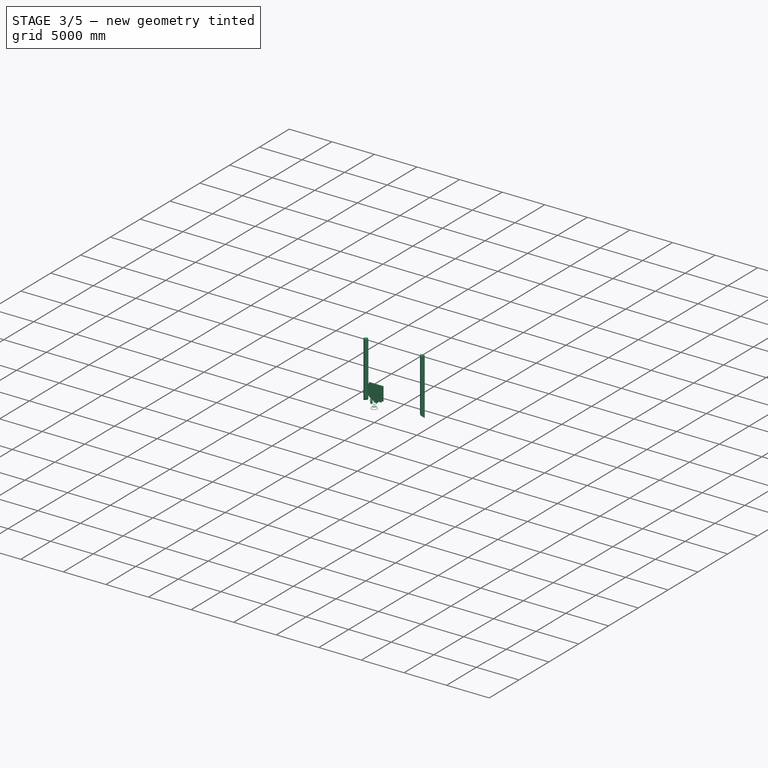
[diagram: stage 3 of 5 — iso view after this stage's code; geometry added in this stage tinted green]
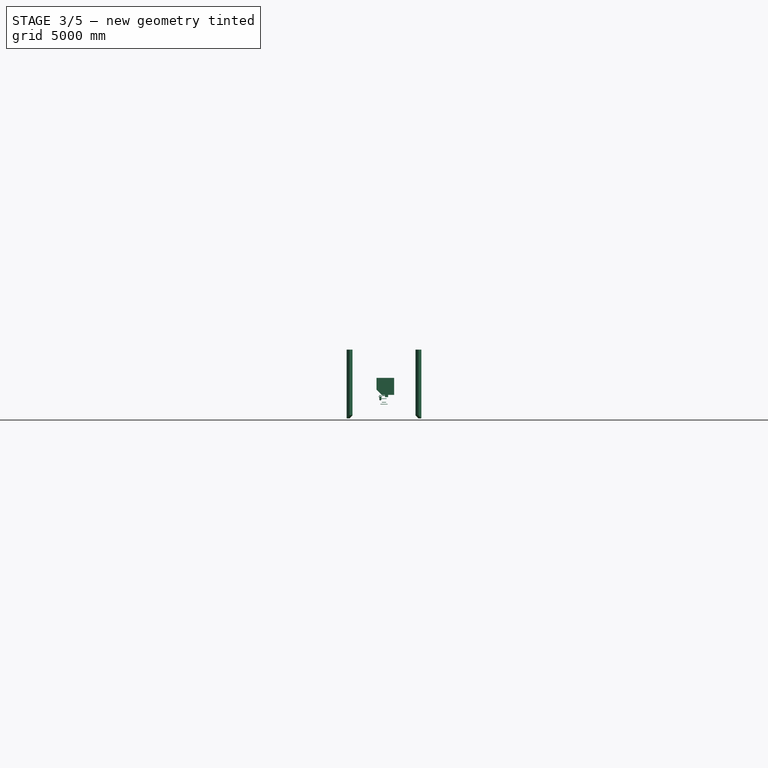
[diagram: stage 3 of 5 — front view after this stage's code; geometry added in this stage tinted green]
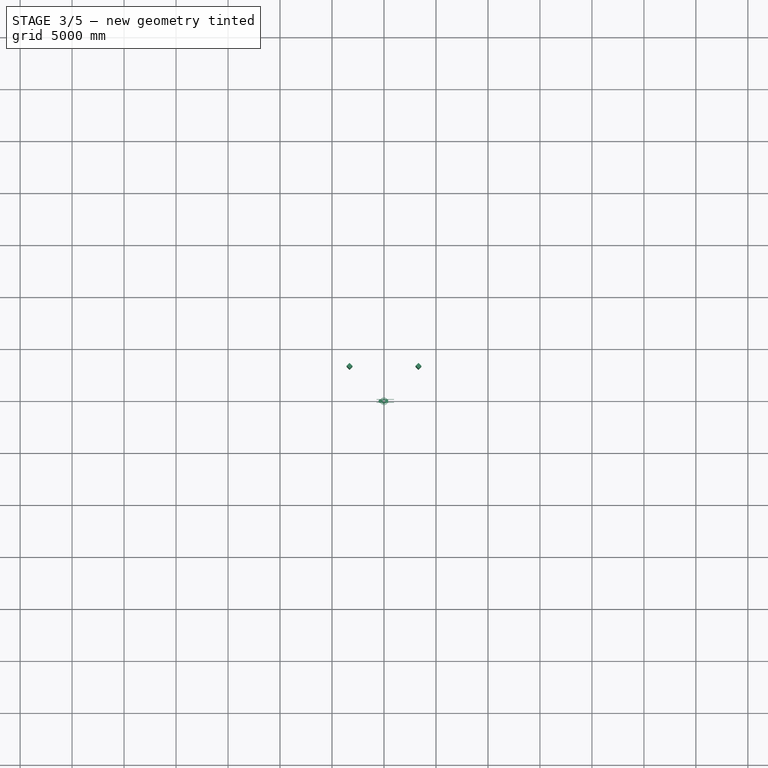
[diagram: stage 3 of 5 — top view after this stage's code; geometry added in this stage tinted green]
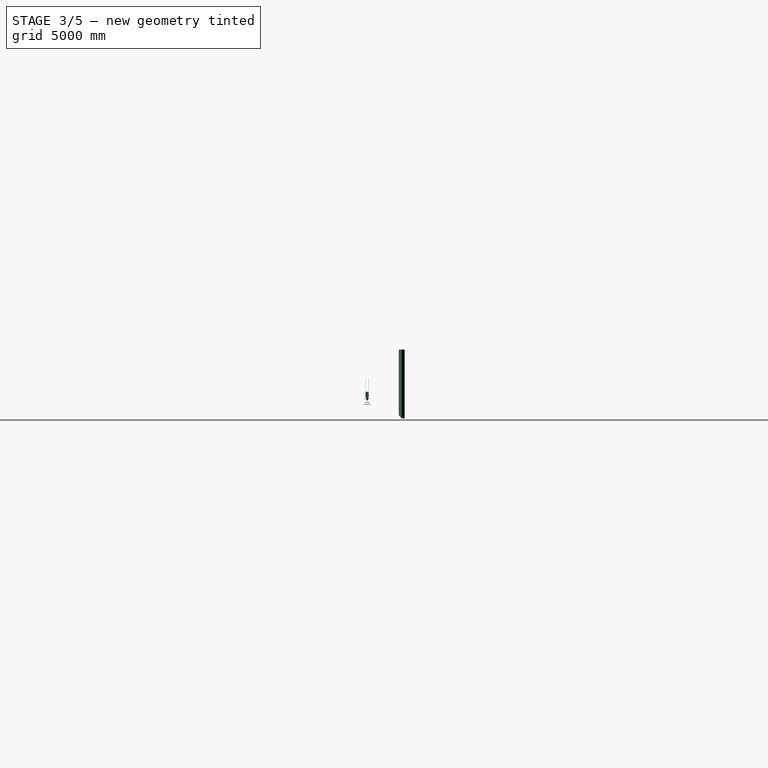
[diagram: stage 3 of 5 — right view after this stage's code; geometry added in this stage tinted green]
FEATURE [App::Part] Part001  label="raptor"
  Group = -> [Sketch050,Revolve029,Cylinder,Fillet007,Torus,Torus001,Torus002,Sketch055,Sketch051,Sketch002,Sweep,Torus003,Torus004,Torus005,Sketch052,Sketch053,Sketch054,Revolve028,Revolve030,Revolve003,Sketch009,Sketch008,Sweep001]
  License = CC BY 3.0
  LicenseURL = http://creativecommons.org/licenses/by/3.0/
  Origin = -> Origin001
  Placement = pos=(0,-800,0) rot=(0,0,1;3.92699rad)
FEATURE [Part::Cylinder] Cylinder003
  Angle = 360
  AttacherType = Attacher::AttachEngine3D
  Height = 350
  Placement = pos=(-350,0,1730) rot=(0,0,1;0rad)
  Radius = 100
FEATURE [Part::Revolution] Revolve034  label="injector001"
  Angle = 360
  Axis = (0,0,1)
  Base = (0,0,0)
  FaceMakerClass = Part::FaceMakerBullseye
  Solid = false
  Source = -> Sketch059
  Symmetric = false
FEATURE [Part::Fillet] Fillet008  label="methane pump001"
  Base = -> Cylinder003
  Edges = 2 edges: [Edge1 r=30,Edge3 r=100]
FEATURE [Sketcher::SketchObject] Sketch064
  Placement = pos=(0,0,1370) rot=(0,0,1;0rad)
  sketch-geometry (1):
    g0: Circle CenterX=-328.814 CenterY=-0.522608 CenterZ=0 NormalX=0 NormalY=0 NormalZ=1 AngleXU=0 Radius=18.5281
FEATURE [Part::Sweep] Sweep002
  Frenet = false
  Sections = -> [Sketch056,Sketch064]
  Solid = false
  Spine = -> Sketch058 [Edge1]
  Transition = 1
FEATURE [Part::Torus] Torus010  label="fuel torus001"
  Angle1 = -180
  Angle2 = 180
  Angle3 = 360
  AttacherType = Attacher::AttachEngine3D
  Placement = pos=(0,0,1370) rot=(0,0,1;0rad)
  Radius1 = 333
  Radius2 = 20
FEATURE [Part::Sweep] Sweep003  label="fuel001"
  Frenet = false
  Placement = pos=(0,0,0) rot=(0,0,-1;0.523599rad)
  Sections = -> [Sketch063]
  Solid = false
  Spine = -> Sketch062 [Edge1,Edge2]
  Transition = 1
FEATURE [Part::Torus] Torus011  label="injector torus001"
  Angle1 = -180
  Angle2 = 180
  Angle3 = 360
  AttacherType = Attacher::AttachEngine3D
  Placement = pos=(0,0,2199) rot=(0,0,1;0rad)
  Radius1 = 150
  Radius2 = 40
FEATURE [App::Part] Part002  label="raptor001"
  Group = -> [Sketch057,Revolve033,Cylinder003,Fillet008,Torus010,Torus006,Torus008,Sketch064,Sketch058,Sketch056,Sweep002,Torus009,Torus007,Torus011,Sketch059,Sketch060,Sketch061,Revolve031,Revolve034,Revolve032,Sketch063,Sketch062,Sweep003]
  License = CC BY 3.0
  LicenseURL = http://creativecommons.org/licenses/by/3.0/
  Origin = -> Origin002
  Placement = pos=(0,800,0) rot=(0,0,1;0.785398rad)
FEATURE [Part::Cylinder] Cylinder004
  Angle = 360
  AttacherType = Attacher::AttachEngine3D
  Height = 350
  Placement = pos=(-350,0,1730) rot=(0,0,1;0rad)
  Radius = 100
FEATURE [Part::Torus] Torus012  label="gimbal torus002"
  Angle1 = -180
  Angle2 = 180
  Angle3 = 360
  AttacherType = Attacher::AttachEngine3D
  Placement = pos=(0,0,1550) rot=(0,0,1;0rad)
  Radius1 = 190
  Radius2 = 20
FEATURE [Sketcher::SketchObject] Sketch065
  Placement = pos=(0,0,1738) rot=(0,0,1;0rad)
  sketch-geometry (1):
    g0: Circle CenterX=-350.051 CenterY=-0.049992 CenterZ=0 NormalX=0 NormalY=0 NormalZ=1 AngleXU=0 Radius=34.4116
FEATURE [Sketcher::SketchObject] Sketch066  label="sea level sketch002"
  Placement = pos=(0,0,0) rot=(1,0,0;1.5708rad)
  sketch-geometry (32):
    g0: LineSegment StartX=650 StartY=0 StartZ=0 EndX=640 EndY=0 EndZ=0
    g1-g5: Circle [constr] x5 (B-spline internal-alignment scaffolding for g6; pole/knot coordinates omitted)
    g6: BSplineCurve PolesCount=5 KnotsCount=3 Degree=3 IsPeriodic=0
    g7: GeomPoint [constr] X=650 Y=0 Z=0
    g8: GeomPoint [constr] X=445.682 Y=1102.68 Z=0
    g9: GeomPoint [constr] X=170.497 Y=1542.07 Z=0
    g10: Circle [constr] CenterX=170.497 CenterY=1542.07 CenterZ=0 NormalX=0 NormalY=0 NormalZ=1 AngleXU=0 Radius=20
    g11: Circle [constr] CenterX=220.155 CenterY=1796.29 CenterZ=0 NormalX=0 NormalY=0 NormalZ=1 AngleXU=0 Radius=20
    g12-g15: Circle [constr] x4 (B-spline internal-alignment scaffolding for g16; pole/knot coordinates omitted)
    g16: BSplineCurve PolesCount=4 KnotsCount=2 Degree=3 IsPeriodic=0
    g17: GeomPoint [constr] X=220.155 Y=1796.29 Z=0
    g18: GeomPoint [constr] X=0 Y=2090 Z=0
    g19: Circle [constr] CenterX=160.049 CenterY=1569.58 CenterZ=0 NormalX=0 NormalY=0 NormalZ=1 AngleXU=0 Radius=3
    g20: Circle [constr] CenterX=159.309 CenterY=1555.59 CenterZ=0 NormalX=0 NormalY=0 NormalZ=1 AngleXU=0 Radius=3
    g21: Circle [constr] CenterX=170.497 CenterY=1542.07 CenterZ=0 NormalX=0 NormalY=0 NormalZ=1 AngleXU=0 Radius=2.32171
    g22: BSplineCurve PolesCount=3 KnotsCount=2 Degree=2 IsPeriodic=0
    g23: GeomPoint [constr] X=160.049 Y=1569.58 Z=0
    g24: GeomPoint [constr] X=170.497 Y=1542.07 Z=0
    g25-g28: Circle [constr] x4 (B-spline internal-alignment scaffolding for g29; pole/knot coordinates omitted)
    g29: BSplineCurve PolesCount=4 KnotsCount=2 Degree=3 IsPeriodic=0
    g30: GeomPoint [constr] X=220.155 Y=1796.29 Z=0
    g31: GeomPoint [constr] X=160.049 Y=1569.58 Z=0
  constraints (33):
    c: Coincident(g1,g0)
    c: Radius(g1) = 100
    c: Equal(g1, g2-g5) x4
    c: InternalAlignment(g1-g5 -> g6) x5
    c: InternalAlignment(g7,g6)
    c: InternalAlignment(g8,g6)
    c: InternalAlignment(g9,g6)
    c: Coincident(g10,g5)
    c: Radius(g10) = 20
    c: Coincident(g12,g11)
    c: Radius(g12) = 40
    c: Equal(g12,g13)
    c: Equal(g12,g14)
    c: Equal(g12,g15)
    c: InternalAlignment(g12-g15 -> g16) x4
    c: InternalAlignment(g17,g16)
    c: InternalAlignment(g18,g16)
    c: Radius(g19) = 3
    c: Equal(g19,g20)
    c: PointOnObject(g21,g6)
    c: InternalAlignment(g19,g22)
    c: InternalAlignment(g20,g22)
    c: InternalAlignment(g21,g22)
    c: InternalAlignment(g23,g22)
    c: InternalAlignment(g24,g22)
    c: Coincident(g5,g21)
    c: Coincident(g25,g11)
    c: Radius(g25) = 10
    c: Equal(g25,g28)
    c: Coincident(g28,g19)
    c: InternalAlignment(g25-g28 -> g29) x4
    c: InternalAlignment(g30,g29)
    c: InternalAlignment(g31,g29)
FEATURE [Sketcher::SketchObject] Sketch067  label="sweep path002"
  Placement = pos=(0,0,0) rot=(1,0,0;1.5708rad)
  sketch-geometry (9):
    g0-g4: Circle [constr] x5 (B-spline internal-alignment scaffolding for g5; pole/knot coordinates omitted)
    g5: BSplineCurve PolesCount=5 KnotsCount=3 Degree=3 IsPeriodic=0
    g6: GeomPoint [constr] X=-348.852 Y=1731.94 Z=0
    g7: GeomPoint [constr] X=-242.341 Y=1587.72 Z=0
    g8: GeomPoint [constr] X=-347.061 Y=1370 Z=0
  constraints (6):
    c: Radius(g0) = 10
    c: Equal(g0,g4)
    c: InternalAlignment(g0-g4 -> g5) x5
    c: InternalAlignment(g6,g5)
    c: InternalAlignment(g7,g5)
    c: InternalAlignment(g8,g5)
FEATURE [Sketcher::SketchObject] Sketch068  label="injector sketch002"
  Placement = pos=(0,0,0) rot=(1,0,0;1.5708rad)
  sketch-geometry (9):
    g0: Circle [constr] CenterX=110 CenterY=2200 CenterZ=0 NormalX=0 NormalY=0 NormalZ=1 AngleXU=0 Radius=10
    g1: Circle [constr] CenterX=110 CenterY=2140 CenterZ=0 NormalX=0 NormalY=0 NormalZ=1 AngleXU=0 Radius=10
    g2: Circle [constr] CenterX=146.985 CenterY=2082.42 CenterZ=0 NormalX=0 NormalY=0 NormalZ=1 AngleXU=0 Radius=10
    g3: BSplineCurve PolesCount=3 KnotsCount=2 Degree=2 IsPeriodic=0
    g4: GeomPoint [constr] X=110 Y=2200 Z=0
    g5: GeomPoint [constr] X=146.985 Y=2082.42 Z=0
    g6: LineSegment StartX=110 StartY=2200 StartZ=0 EndX=150 EndY=2238 EndZ=0
    g7: LineSegment StartX=150 StartY=2238 StartZ=0 EndX=150 EndY=2260 EndZ=0
    g8: LineSegment StartX=150 StartY=2260 StartZ=0 EndX=0 EndY=2260 EndZ=0
  constraints (13):
    c: Radius(g0) = 10
    c: Equal(g0,g1)
    c: Equal(g0,g2)
    c: InternalAlignment(g0,g3)
    c: InternalAlignment(g1,g3)
    c: InternalAlignment(g2,g3)
    c: InternalAlignment(g4,g3)
    c: InternalAlignment(g5,g3)
    c: Coincident(g6,g0)
    c: Coincident(g7,g6)
    c: Vertical(g7)
    c: Coincident(g8,g7)
    c: Horizontal(g8)
FEATURE [Sketcher::SketchObject] Sketch069  label="lox sketch002"
  Placement = pos=(0,0,0) rot=(1,0,0;1.5708rad)
  sketch-geometry (10):
    g0: Circle [constr] CenterX=-233.911 CenterY=2196.94 CenterZ=0 NormalX=0 NormalY=0 NormalZ=1 AngleXU=0 Radius=10
    g1: Circle [constr] CenterX=-293.034 CenterY=2140 CenterZ=0 NormalX=0 NormalY=0 NormalZ=1 AngleXU=0 Radius=10
    g2: Circle [constr] CenterX=-210 CenterY=2080 CenterZ=0 NormalX=0 NormalY=0 NormalZ=1 AngleXU=0 Radius=10
    g3: BSplineCurve PolesCount=3 KnotsCount=2 Degree=2 IsPeriodic=0
    g4: GeomPoint [constr] X=-233.911 Y=2196.94 Z=0
    g5: GeomPoint [constr] X=-210 Y=2080 Z=0
    g6: LineSegment StartX=-233.911 StartY=2196.94 StartZ=0 EndX=-291.228 EndY=2281.45 EndZ=0
    g7: LineSegment StartX=-291.228 StartY=2281.45 StartZ=0 EndX=-291.228 EndY=2461.19 EndZ=0
    g8: LineSegment StartX=-291.228 StartY=2461.19 StartZ=0 EndX=-354 EndY=2461.19 EndZ=0
    g9: LineSegment StartX=-210 StartY=2080 StartZ=0 EndX=-354 EndY=2080 EndZ=0
  constraints (17):
    c: Radius(g0) = 10
    c: Equal(g0,g1)
    c: Equal(g0,g2)
    c: InternalAlignment(g0,g3)
    c: InternalAlignment(g1,g3)
    c: InternalAlignment(g2,g3)
    c: InternalAlignment(g4,g3)
    c: InternalAlignment(g5,g3)
    c: Coincident(g6,g0)
    c: Coincident(g7,g6)
    c: Vertical(g7)
    c: Coincident(g8,g7)
    c: Horizontal(g8)
    c: Coincident(g9,g2)
    c: Horizontal(g9)
    c: DistanceX(g8,g-1) = 354
    c: DistanceX(g8,g9) = 0
FEATURE [Sketcher::SketchObject] Sketch070  label="vac sketch002"
  Placement = pos=(0,0,0) rot=(1,0,0;1.5708rad)
  sketch-geometry (32):
    g0: LineSegment StartX=1200 StartY=-2090 StartZ=0 EndX=1190 EndY=-2090 EndZ=0
    g1-g5: Circle [constr] x5 (B-spline internal-alignment scaffolding for g6; pole/knot coordinates omitted)
    g6: BSplineCurve PolesCount=5 KnotsCount=3 Degree=3 IsPeriodic=0
    g7: GeomPoint [constr] X=1200 Y=-2090 Z=0
    g8: GeomPoint [constr] X=644.157 Y=779.267 Z=0
    g9: GeomPoint [constr] X=170.497 Y=1542.07 Z=0
    g10: Circle [constr] CenterX=170.497 CenterY=1542.07 CenterZ=0 NormalX=0 NormalY=0 NormalZ=1 AngleXU=0 Radius=20
    g11: Circle [constr] CenterX=220.155 CenterY=1796.29 CenterZ=0 NormalX=0 NormalY=0 NormalZ=1 AngleXU=0 Radius=20
    g12-g15: Circle [constr] x4 (B-spline internal-alignment scaffolding for g16; pole/knot coordinates omitted)
    g16: BSplineCurve PolesCount=4 KnotsCount=2 Degree=3 IsPeriodic=0
    g17: GeomPoint [constr] X=220.155 Y=1796.29 Z=0
    g18: GeomPoint [constr] X=0 Y=2090 Z=0
    g19: Circle [constr] CenterX=160.049 CenterY=1569.58 CenterZ=0 NormalX=0 NormalY=0 NormalZ=1 AngleXU=0 Radius=3
    g20: Circle [constr] CenterX=159.309 CenterY=1555.59 CenterZ=0 NormalX=0 NormalY=0 NormalZ=1 AngleXU=0 Radius=3
    g21: Circle [constr] CenterX=170.497 CenterY=1542.07 CenterZ=0 NormalX=0 NormalY=0 NormalZ=1 AngleXU=0 Radius=2.32171
    g22: BSplineCurve PolesCount=3 KnotsCount=2 Degree=2 IsPeriodic=0
    g23: GeomPoint [constr] X=160.049 Y=1569.58 Z=0
    g24: GeomPoint [constr] X=170.497 Y=1542.07 Z=0
    g25-g28: Circle [constr] x4 (B-spline internal-alignment scaffolding for g29; pole/knot coordinates omitted)
    g29: BSplineCurve PolesCount=4 KnotsCount=2 Degree=3 IsPeriodic=0
    g30: GeomPoint [constr] X=220.155 Y=1796.29 Z=0
    g31: GeomPoint [constr] X=160.049 Y=1569.58 Z=0
  constraints (33):
    c: Coincident(g1,g0)
    c: Radius(g1) = 100
    c: Equal(g1, g2-g5) x4
    c: InternalAlignment(g1-g5 -> g6) x5
    c: InternalAlignment(g7,g6)
    c: InternalAlignment(g8,g6)
    c: InternalAlignment(g9,g6)
    c: Coincident(g10,g5)
    c: Radius(g10) = 20
    c: Coincident(g12,g11)
    c: Radius(g12) = 40
    c: Equal(g12,g13)
    c: Equal(g12,g14)
    c: Equal(g12,g15)
    c: InternalAlignment(g12-g15 -> g16) x4
    c: InternalAlignment(g17,g16)
    c: InternalAlignment(g18,g16)
    c: Radius(g19) = 3
    c: Equal(g19,g20)
    c: PointOnObject(g21,g6)
    c: InternalAlignment(g19,g22)
    c: InternalAlignment(g20,g22)
    c: InternalAlignment(g21,g22)
    c: InternalAlignment(g23,g22)
    c: InternalAlignment(g24,g22)
    c: Coincident(g5,g21)
    c: Coincident(g25,g11)
    c: Radius(g25) = 10
    c: Equal(g25,g28)
    c: Coincident(g28,g19)
    c: InternalAlignment(g25-g28 -> g29) x4
    c: InternalAlignment(g30,g29)
    c: InternalAlignment(g31,g29)
FEATURE [Part::Revolution] Revolve035  label="vac nozzle002"
  Angle = 360
  Axis = (0,0,1)
  Base = (0,0,0)
  FaceMakerClass = Part::FaceMakerBullseye
  Solid = false
  Source = -> Sketch070
  Symmetric = false
FEATURE [Sketcher::SketchObject] Sketch071  label="fuel sketch005"
  Placement = pos=(0,0,0) rot=(0.57735,0.57735,0.57735;2.0944rad)
  sketch-geometry (12):
    g0: Circle [constr] CenterX=-157.166 CenterY=2200 CenterZ=0 NormalX=0 NormalY=0 NormalZ=1 AngleXU=0 Radius=20
    g1: Circle [constr] CenterX=-241.173 CenterY=2212.08 CenterZ=0 NormalX=0 NormalY=0 NormalZ=1 AngleXU=0 Radius=20
    g2: Circle [constr] CenterX=-277.305 CenterY=2115.42 CenterZ=0 NormalX=0 NormalY=0 NormalZ=1 AngleXU=0 Radius=20
    g3: BSplineCurve PolesCount=3 KnotsCount=2 Degree=2 IsPeriodic=0
    g4: GeomPoint [constr] X=-157.166 Y=2200 Z=0
    g5: GeomPoint [constr] X=-277.305 Y=2115.42 Z=0
    g6: Circle [constr] CenterX=-277.305 CenterY=2115.42 CenterZ=0 NormalX=0 NormalY=0 NormalZ=1 AngleXU=0 Radius=40
    g7: Circle [constr] CenterX=-362.731 CenterY=1907.44 CenterZ=0 NormalX=0 NormalY=0 NormalZ=1 AngleXU=0 Radius=194.246
    g8: Circle [constr] CenterX=-198.718 CenterY=1566.22 CenterZ=0 NormalX=0 NormalY=0 NormalZ=1 AngleXU=0 Radius=40
    g9: BSplineCurve PolesCount=3 KnotsCount=2 Degree=2 IsPeriodic=0
    g10: GeomPoint [constr] X=-277.305 Y=2115.42 Z=0
    g11: GeomPoint [constr] X=-198.718 Y=1566.22 Z=0
  constraints (16):
    c: Radius(g0) = 20
    c: Equal(g0,g1)
    c: Equal(g0,g2)
    c: InternalAlignment(g0,g3)
    c: InternalAlignment(g1,g3)
    c: InternalAlignment(g2,g3)
    c: InternalAlignment(g4,g3)
    c: InternalAlignment(g5,g3)
    c: Coincident(g6,g2)
    c: Radius(g6) = 40
    c: Equal(g6,g8)
    c: InternalAlignment(g6,g9)
    c: InternalAlignment(g7,g9)
    c: InternalAlignment(g8,g9)
    c: InternalAlignment(g10,g9)
    c: InternalAlignment(g11,g9)
FEATURE [Part::Revolution] Revolve036  label="lox pump002"
  Angle = 360
  Axis = (0,0,1)
  Base = (-354,0,0)
  FaceMakerClass = Part::FaceMakerBullseye
  Solid = false
  Source = -> Sketch069
  Symmetric = false
FEATURE [Part::Torus] Torus013  label="pump torus005"
  Angle1 = -180
  Angle2 = 180
  Angle3 = 360
  AttacherType = Attacher::AttachEngine3D
  Placement = pos=(-354,0,2196) rot=(0,0,1;0rad)
  Radius1 = 110
  Radius2 = 30
FEATURE [Part::Torus] Torus014  label="combustor torus002"
  Angle1 = -180
  Angle2 = 180
  Angle3 = 360
  AttacherType = Attacher::AttachEngine3D
  Placement = pos=(0,0,1900) rot=(0,0,1;0rad)
  Radius1 = 240
  Radius2 = 20
FEATURE [Part::Revolution] Revolve037  label="sea level nozzle002"
  Angle = 360
  Axis = (0,0,1)
  Base = (0,0,0)
  FaceMakerClass = Part::FaceMakerBullseye
  Solid = false
  Source = -> Sketch066
  Symmetric = false
FEATURE [Sketcher::SketchObject] Sketch072  label="fuel sketch006"
  Placement = pos=(0,-157,0) rot=(1,0,0;1.5708rad)
  sketch-geometry (1):
    g0: Circle CenterX=0.155904 CenterY=2198.4 CenterZ=0 NormalX=0 NormalY=0 NormalZ=1 AngleXU=0 Radius=26.4167
FEATURE [Part::Torus] Torus015  label="pump torus006"
  Angle1 = -180
  Angle2 = 180
  Angle3 = 360
  AttacherType = Attacher::AttachEngine3D
  Placement = pos=(-354,0,2080) rot=(0,0,1;0rad)
  Radius1 = 150
  Radius2 = 20
FEATURE [Part::Revolution] Revolve038  label="injector002"
  Angle = 360
  Axis = (0,0,1)
  Base = (0,0,0)
  FaceMakerClass = Part::FaceMakerBullseye
  Solid = false
  Source = -> Sketch068
  Symmetric = false
FEATURE [Part::Fillet] Fillet009  label="methane pump002"
  Base = -> Cylinder004
  Edges = 2 edges: [Edge1 r=30,Edge3 r=100]
FEATURE [Sketcher::SketchObject] Sketch073
  Placement = pos=(0,0,1370) rot=(0,0,1;0rad)
  sketch-geometry (1):
    g0: Circle CenterX=-328.814 CenterY=-0.522608 CenterZ=0 NormalX=0 NormalY=0 NormalZ=1 AngleXU=0 Radius=18.5281
FEATURE [Part::Sweep] Sweep004
  Frenet = false
  Sections = -> [Sketch065,Sketch073]
  Solid = false
  Spine = -> Sketch067 [Edge1]
  Transition = 1
FEATURE [Part::Torus] Torus016  label="fuel torus002"
  Angle1 = -180
  Angle2 = 180
  Angle3 = 360
  AttacherType = Attacher::AttachEngine3D
  Placement = pos=(0,0,1370) rot=(0,0,1;0rad)
  Radius1 = 333
  Radius2 = 20
FEATURE [Part::Sweep] Sweep005  label="fuel002"
  Frenet = false
  Placement = pos=(0,0,0) rot=(0,0,-1;0.523599rad)
  Sections = -> [Sketch072]
  Solid = false
  Spine = -> Sketch071 [Edge1,Edge2]
  Transition = 1
FEATURE [Part::Torus] Torus017  label="injector torus002"
  Angle1 = -180
  Angle2 = 180
  Angle3 = 360
  AttacherType = Attacher::AttachEngine3D
  Placement = pos=(0,0,2199) rot=(0,0,1;0rad)
  Radius1 = 150
  Radius2 = 40
FEATURE [Part::Torus] Torus018  label="gimbal torus003"
  Angle1 = -180
  Angle2 = 180
  Angle3 = 360
  AttacherType = Attacher::AttachEngine3D
  Placement = pos=(0,0,1550) rot=(0,0,1;0rad)
  Radius1 = 190
  Radius2 = 20
FEATURE [Sketcher::SketchObject] Sketch074
  Placement = pos=(0,0,1738) rot=(0,0,1;0rad)
  sketch-geometry (1):
    g0: Circle CenterX=-350.051 CenterY=-0.049992 CenterZ=0 NormalX=0 NormalY=0 NormalZ=1 AngleXU=0 Radius=34.4116
FEATURE [Sketcher::SketchObject] Sketch075  label="sea level sketch003"
  Placement = pos=(0,0,0) rot=(1,0,0;1.5708rad)
  sketch-geometry (32):
    g0: LineSegment StartX=650 StartY=0 StartZ=0 EndX=640 EndY=0 EndZ=0
    g1-g5: Circle [constr] x5 (B-spline internal-alignment scaffolding for g6; pole/knot coordinates omitted)
    g6: BSplineCurve PolesCount=5 KnotsCount=3 Degree=3 IsPeriodic=0
    g7: GeomPoint [constr] X=650 Y=0 Z=0
    g8: GeomPoint [constr] X=445.682 Y=1102.68 Z=0
    g9: GeomPoint [constr] X=170.497 Y=1542.07 Z=0
    g10: Circle [constr] CenterX=170.497 CenterY=1542.07 CenterZ=0 NormalX=0 NormalY=0 NormalZ=1 AngleXU=0 Radius=20
    g11: Circle [constr] CenterX=220.155 CenterY=1796.29 CenterZ=0 NormalX=0 NormalY=0 NormalZ=1 AngleXU=0 Radius=20
    g12-g15: Circle [constr] x4 (B-spline internal-alignment scaffolding for g16; pole/knot coordinates omitted)
    g16: BSplineCurve PolesCount=4 KnotsCount=2 Degree=3 IsPeriodic=0
    g17: GeomPoint [constr] X=220.155 Y=1796.29 Z=0
    g18: GeomPoint [constr] X=0 Y=2090 Z=0
    g19: Circle [constr] CenterX=160.049 CenterY=1569.58 CenterZ=0 NormalX=0 NormalY=0 NormalZ=1 AngleXU=0 Radius=3
    g20: Circle [constr] CenterX=159.309 CenterY=1555.59 CenterZ=0 NormalX=0 NormalY=0 NormalZ=1 AngleXU=0 Radius=3
    g21: Circle [constr] CenterX=170.497 CenterY=1542.07 CenterZ=0 NormalX=0 NormalY=0 NormalZ=1 AngleXU=0 Radius=2.32171
    g22: BSplineCurve PolesCount=3 KnotsCount=2 Degree=2 IsPeriodic=0
    g23: GeomPoint [constr] X=160.049 Y=1569.58 Z=0
    g24: GeomPoint [constr] X=170.497 Y=1542.07 Z=0
    g25-g28: Circle [constr] x4 (B-spline internal-alignment scaffolding for g29; pole/knot coordinates omitted)
    g29: BSplineCurve PolesCount=4 KnotsCount=2 Degree=3 IsPeriodic=0
    g30: GeomPoint [constr] X=220.155 Y=1796.29 Z=0
    g31: GeomPoint [constr] X=160.049 Y=1569.58 Z=0
  constraints (33):
    c: Coincident(g1,g0)
    c: Radius(g1) = 100
    c: Equal(g1, g2-g5) x4
    c: InternalAlignment(g1-g5 -> g6) x5
    c: InternalAlignment(g7,g6)
    c: InternalAlignment(g8,g6)
    c: InternalAlignment(g9,g6)
    c: Coincident(g10,g5)
    c: Radius(g10) = 20
    c: Coincident(g12,g11)
    c: Radius(g12) = 40
    c: Equal(g12,g13)
    c: Equal(g12,g14)
    c: Equal(g12,g15)
    c: InternalAlignment(g12-g15 -> g16) x4
    c: InternalAlignment(g17,g16)
    c: InternalAlignment(g18,g16)
    c: Radius(g19) = 3
    c: Equal(g19,g20)
    c: PointOnObject(g21,g6)
    c: InternalAlignment(g19,g22)
    c: InternalAlignment(g20,g22)
    c: InternalAlignment(g21,g22)
    c: InternalAlignment(g23,g22)
    c: InternalAlignment(g24,g22)
    c: Coincident(g5,g21)
    c: Coincident(g25,g11)
    c: Radius(g25) = 10
    c: Equal(g25,g28)
    c: Coincident(g28,g19)
    c: InternalAlignment(g25-g28 -> g29) x4
    c: InternalAlignment(g30,g29)
    c: InternalAlignment(g31,g29)
FEATURE [Sketcher::SketchObject] Sketch076  label="sweep path003"
  Placement = pos=(0,0,0) rot=(1,0,0;1.5708rad)
  sketch-geometry (9):
    g0-g4: Circle [constr] x5 (B-spline internal-alignment scaffolding for g5; pole/knot coordinates omitted)
    g5: BSplineCurve PolesCount=5 KnotsCount=3 Degree=3 IsPeriodic=0
    g6: GeomPoint [constr] X=-348.852 Y=1731.94 Z=0
    g7: GeomPoint [constr] X=-242.341 Y=1587.72 Z=0
    g8: GeomPoint [constr] X=-347.061 Y=1370 Z=0
  constraints (6):
    c: Radius(g0) = 10
    c: Equal(g0,g4)
    c: InternalAlignment(g0-g4 -> g5) x5
    c: InternalAlignment(g6,g5)
    c: InternalAlignment(g7,g5)
    c: InternalAlignment(g8,g5)
FEATURE [Sketcher::SketchObject] Sketch077  label="injector sketch003"
  Placement = pos=(0,0,0) rot=(1,0,0;1.5708rad)
  sketch-geometry (9):
    g0: Circle [constr] CenterX=110 CenterY=2200 CenterZ=0 NormalX=0 NormalY=0 NormalZ=1 AngleXU=0 Radius=10
    g1: Circle [constr] CenterX=110 CenterY=2140 CenterZ=0 NormalX=0 NormalY=0 NormalZ=1 AngleXU=0 Radius=10
    g2: Circle [constr] CenterX=146.985 CenterY=2082.42 CenterZ=0 NormalX=0 NormalY=0 NormalZ=1 AngleXU=0 Radius=10
    g3: BSplineCurve PolesCount=3 KnotsCount=2 Degree=2 IsPeriodic=0
    g4: GeomPoint [constr] X=110 Y=2200 Z=0
    g5: GeomPoint [constr] X=146.985 Y=2082.42 Z=0
    g6: LineSegment StartX=110 StartY=2200 StartZ=0 EndX=150 EndY=2238 EndZ=0
    g7: LineSegment StartX=150 StartY=2238 StartZ=0 EndX=150 EndY=2260 EndZ=0
    g8: LineSegment StartX=150 StartY=2260 StartZ=0 EndX=0 EndY=2260 EndZ=0
  constraints (13):
    c: Radius(g0) = 10
    c: Equal(g0,g1)
    c: Equal(g0,g2)
    c: InternalAlignment(g0,g3)
    c: InternalAlignment(g1,g3)
    c: InternalAlignment(g2,g3)
    c: InternalAlignment(g4,g3)
    c: InternalAlignment(g5,g3)
    c: Coincident(g6,g0)
    c: Coincident(g7,g6)
    c: Vertical(g7)
    c: Coincident(g8,g7)
    c: Horizontal(g8)
FEATURE [Sketcher::SketchObject] Sketch078  label="lox sketch003"
  Placement = pos=(0,0,0) rot=(1,0,0;1.5708rad)
  sketch-geometry (10):
    g0: Circle [constr] CenterX=-233.911 CenterY=2196.94 CenterZ=0 NormalX=0 NormalY=0 NormalZ=1 AngleXU=0 Radius=10
    g1: Circle [constr] CenterX=-293.034 CenterY=2140 CenterZ=0 NormalX=0 NormalY=0 NormalZ=1 AngleXU=0 Radius=10
    g2: Circle [constr] CenterX=-210 CenterY=2080 CenterZ=0 NormalX=0 NormalY=0 NormalZ=1 AngleXU=0 Radius=10
    g3: BSplineCurve PolesCount=3 KnotsCount=2 Degree=2 IsPeriodic=0
    g4: GeomPoint [constr] X=-233.911 Y=2196.94 Z=0
    g5: GeomPoint [constr] X=-210 Y=2080 Z=0
    g6: LineSegment StartX=-233.911 StartY=2196.94 StartZ=0 EndX=-291.228 EndY=2281.45 EndZ=0
    g7: LineSegment StartX=-291.228 StartY=2281.45 StartZ=0 EndX=-291.228 EndY=2461.19 EndZ=0
    g8: LineSegment StartX=-291.228 StartY=2461.19 StartZ=0 EndX=-354 EndY=2461.19 EndZ=0
    g9: LineSegment StartX=-210 StartY=2080 StartZ=0 EndX=-354 EndY=2080 EndZ=0
  constraints (17):
    c: Radius(g0) = 10
    c: Equal(g0,g1)
    c: Equal(g0,g2)
    c: InternalAlignment(g0,g3)
    c: InternalAlignment(g1,g3)
    c: InternalAlignment(g2,g3)
    c: InternalAlignment(g4,g3)
    c: InternalAlignment(g5,g3)
    c: Coincident(g6,g0)
    c: Coincident(g7,g6)
    c: Vertical(g7)
    c: Coincident(g8,g7)
    c: Horizontal(g8)
    c: Coincident(g9,g2)
    c: Horizontal(g9)
    c: DistanceX(g8,g-1) = 354
    c: DistanceX(g8,g9) = 0
FEATURE [Sketcher::SketchObject] Sketch079  label="vac sketch003"
  Placement = pos=(0,0,0) rot=(1,0,0;1.5708rad)
  sketch-geometry (32):
    g0: LineSegment StartX=1200 StartY=-2090 StartZ=0 EndX=1190 EndY=-2090 EndZ=0
    g1-g5: Circle [constr] x5 (B-spline internal-alignment scaffolding for g6; pole/knot coordinates omitted)
    g6: BSplineCurve PolesCount=5 KnotsCount=3 Degree=3 IsPeriodic=0
    g7: GeomPoint [constr] X=1200 Y=-2090 Z=0
    g8: GeomPoint [constr] X=644.157 Y=779.267 Z=0
    g9: GeomPoint [constr] X=170.497 Y=1542.07 Z=0
    g10: Circle [constr] CenterX=170.497 CenterY=1542.07 CenterZ=0 NormalX=0 NormalY=0 NormalZ=1 AngleXU=0 Radius=20
    g11: Circle [constr] CenterX=220.155 CenterY=1796.29 CenterZ=0 NormalX=0 NormalY=0 NormalZ=1 AngleXU=0 Radius=20
    g12-g15: Circle [constr] x4 (B-spline internal-alignment scaffolding for g16; pole/knot coordinates omitted)
    g16: BSplineCurve PolesCount=4 KnotsCount=2 Degree=3 IsPeriodic=0
    g17: GeomPoint [constr] X=220.155 Y=1796.29 Z=0
    g18: GeomPoint [constr] X=0 Y=2090 Z=0
    g19: Circle [constr] CenterX=160.049 CenterY=1569.58 CenterZ=0 NormalX=0 NormalY=0 NormalZ=1 AngleXU=0 Radius=3
    g20: Circle [constr] CenterX=159.309 CenterY=1555.59 CenterZ=0 NormalX=0 NormalY=0 NormalZ=1 AngleXU=0 Radius=3
    g21: Circle [constr] CenterX=170.497 CenterY=1542.07 CenterZ=0 NormalX=0 NormalY=0 NormalZ=1 AngleXU=0 Radius=2.32171
    g22: BSplineCurve PolesCount=3 KnotsCount=2 Degree=2 IsPeriodic=0
    g23: GeomPoint [constr] X=160.049 Y=1569.58 Z=0
    g24: GeomPoint [constr] X=170.497 Y=1542.07 Z=0
    g25-g28: Circle [constr] x4 (B-spline internal-alignment scaffolding for g29; pole/knot coordinates omitted)
    g29: BSplineCurve PolesCount=4 KnotsCount=2 Degree=3 IsPeriodic=0
    g30: GeomPoint [constr] X=220.155 Y=1796.29 Z=0
    g31: GeomPoint [constr] X=160.049 Y=1569.58 Z=0
  constraints (33):
    c: Coincident(g1,g0)
    c: Radius(g1) = 100
    c: Equal(g1, g2-g5) x4
    c: InternalAlignment(g1-g5 -> g6) x5
    c: InternalAlignment(g7,g6)
    c: InternalAlignment(g8,g6)
    c: InternalAlignment(g9,g6)
    c: Coincident(g10,g5)
    c: Radius(g10) = 20
    c: Coincident(g12,g11)
    c: Radius(g12) = 40
    c: Equal(g12,g13)
    c: Equal(g12,g14)
    c: Equal(g12,g15)
    c: InternalAlignment(g12-g15 -> g16) x4
    c: InternalAlignment(g17,g16)
    c: InternalAlignment(g18,g16)
    c: Radius(g19) = 3
    c: Equal(g19,g20)
    c: PointOnObject(g21,g6)
    c: InternalAlignment(g19,g22)
    c: InternalAlignment(g20,g22)
    c: InternalAlignment(g21,g22)
    c: InternalAlignment(g23,g22)
    c: InternalAlignment(g24,g22)
    c: Coincident(g5,g21)
    c: Coincident(g25,g11)
    c: Radius(g25) = 10
    c: Equal(g25,g28)
    c: Coincident(g28,g19)
    c: InternalAlignment(g25-g28 -> g29) x4
    c: InternalAlignment(g30,g29)
    c: InternalAlignment(g31,g29)
FEATURE [Part::Revolution] Revolve039  label="vac nozzle003"
  Angle = 360
  Axis = (0,0,1)
  Base = (0,0,0)
  FaceMakerClass = Part::FaceMakerBullseye
  Solid = false
  Source = -> Sketch079
  Symmetric = false
FEATURE [Sketcher::SketchObject] Sketch080  label="fuel sketch007"
  Placement = pos=(0,0,0) rot=(0.57735,0.57735,0.57735;2.0944rad)
  sketch-geometry (12):
    g0: Circle [constr] CenterX=-157.166 CenterY=2200 CenterZ=0 NormalX=0 NormalY=0 NormalZ=1 AngleXU=0 Radius=20
    g1: Circle [constr] CenterX=-241.173 CenterY=2212.08 CenterZ=0 NormalX=0 NormalY=0 NormalZ=1 AngleXU=0 Radius=20
    g2: Circle [constr] CenterX=-277.305 CenterY=2115.42 CenterZ=0 NormalX=0 NormalY=0 NormalZ=1 AngleXU=0 Radius=20
    g3: BSplineCurve PolesCount=3 KnotsCount=2 Degree=2 IsPeriodic=0
    g4: GeomPoint [constr] X=-157.166 Y=2200 Z=0
    g5: GeomPoint [constr] X=-277.305 Y=2115.42 Z=0
    g6: Circle [constr] CenterX=-277.305 CenterY=2115.42 CenterZ=0 NormalX=0 NormalY=0 NormalZ=1 AngleXU=0 Radius=40
    g7: Circle [constr] CenterX=-362.731 CenterY=1907.44 CenterZ=0 NormalX=0 NormalY=0 NormalZ=1 AngleXU=0 Radius=194.246
    g8: Circle [constr] CenterX=-198.718 CenterY=1566.22 CenterZ=0 NormalX=0 NormalY=0 NormalZ=1 AngleXU=0 Radius=40
    g9: BSplineCurve PolesCount=3 KnotsCount=2 Degree=2 IsPeriodic=0
    g10: GeomPoint [constr] X=-277.305 Y=2115.42 Z=0
    g11: GeomPoint [constr] X=-198.718 Y=1566.22 Z=0
  constraints (16):
    c: Radius(g0) = 20
    c: Equal(g0,g1)
    c: Equal(g0,g2)
    c: InternalAlignment(g0,g3)
    c: InternalAlignment(g1,g3)
    c: InternalAlignment(g2,g3)
    c: InternalAlignment(g4,g3)
    c: InternalAlignment(g5,g3)
    c: Coincident(g6,g2)
    c: Radius(g6) = 40
    c: Equal(g6,g8)
    c: InternalAlignment(g6,g9)
    c: InternalAlignment(g7,g9)
    c: InternalAlignment(g8,g9)
    c: InternalAlignment(g10,g9)
    c: InternalAlignment(g11,g9)
FEATURE [Part::Revolution] Revolve040  label="lox pump003"
  Angle = 360
  Axis = (0,0,1)
  Base = (-354,0,0)
  FaceMakerClass = Part::FaceMakerBullseye
  Solid = false
  Source = -> Sketch078
  Symmetric = false
FEATURE [Part::Torus] Torus019  label="pump torus007"
  Angle1 = -180
  Angle2 = 180
  Angle3 = 360
  AttacherType = Attacher::AttachEngine3D
  Placement = pos=(-354,0,2196) rot=(0,0,1;0rad)
  Radius1 = 110
  Radius2 = 30
FEATURE [Part::Torus] Torus020  label="combustor torus003"
  Angle1 = -180
  Angle2 = 180
  Angle3 = 360
  AttacherType = Attacher::AttachEngine3D
  Placement = pos=(0,0,1900) rot=(0,0,1;0rad)
  Radius1 = 240
  Radius2 = 20
FEATURE [Part::Revolution] Revolve041  label="sea level nozzle003"
  Angle = 360
  Axis = (0,0,1)
  Base = (0,0,0)
  FaceMakerClass = Part::FaceMakerBullseye
  Solid = false
  Source = -> Sketch075
  Symmetric = false
FEATURE [Sketcher::SketchObject] Sketch081  label="fuel sketch008"
  Placement = pos=(0,-157,0) rot=(1,0,0;1.5708rad)
  sketch-geometry (1):
    g0: Circle CenterX=0.155904 CenterY=2198.4 CenterZ=0 NormalX=0 NormalY=0 NormalZ=1 AngleXU=0 Radius=26.4167
FEATURE [Part::Torus] Torus021  label="pump torus008"
  Angle1 = -180
  Angle2 = 180
  Angle3 = 360
  AttacherType = Attacher::AttachEngine3D
  Placement = pos=(-354,0,2080) rot=(0,0,1;0rad)
  Radius1 = 150
  Radius2 = 20
FEATURE [Part::Revolution] Revolve042  label="injector003"
  Angle = 360
  Axis = (0,0,1)
  Base = (0,0,0)
  FaceMakerClass = Part::FaceMakerBullseye
  Solid = false
  Source = -> Sketch077
  Symmetric = false
FEATURE [Part::Fillet] Fillet010  label="methane pump003"
  Base = -> Cylinder005
  Edges = 2 edges: [Edge1 r=30,Edge3 r=100]
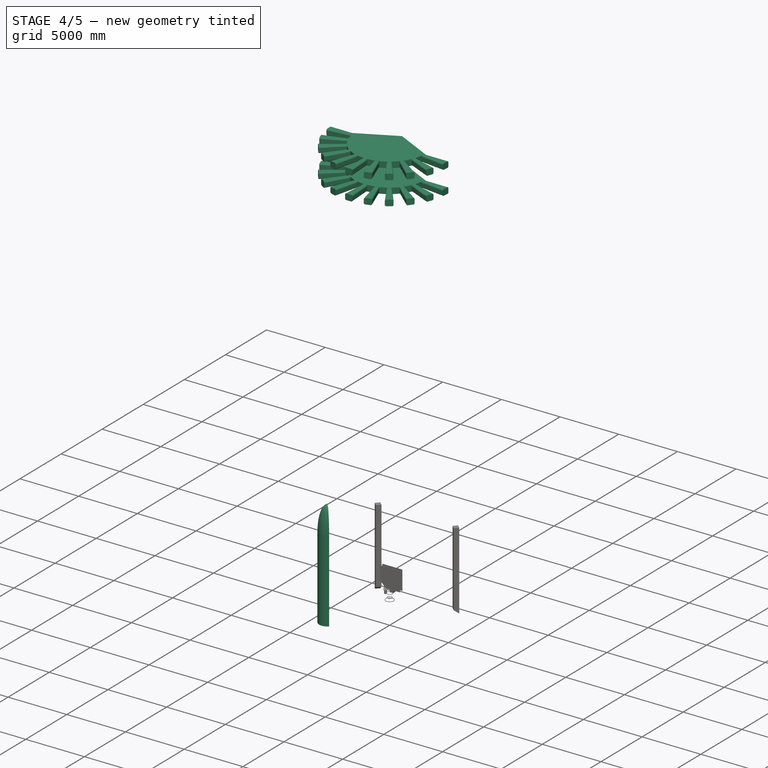
[diagram: stage 4 of 5 — iso view after this stage's code; geometry added in this stage tinted green]
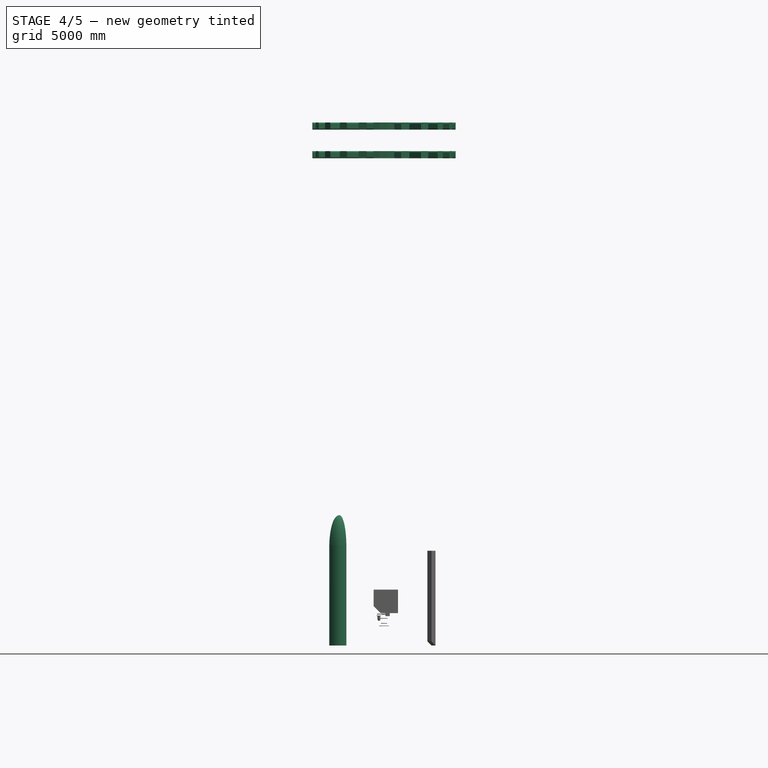
[diagram: stage 4 of 5 — front view after this stage's code; geometry added in this stage tinted green]
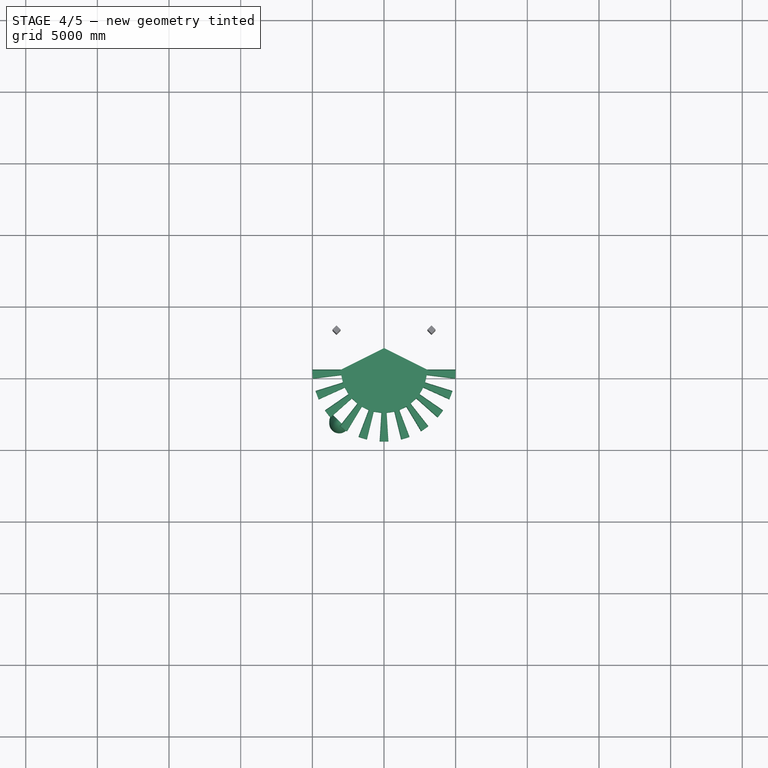
[diagram: stage 4 of 5 — top view after this stage's code; geometry added in this stage tinted green]
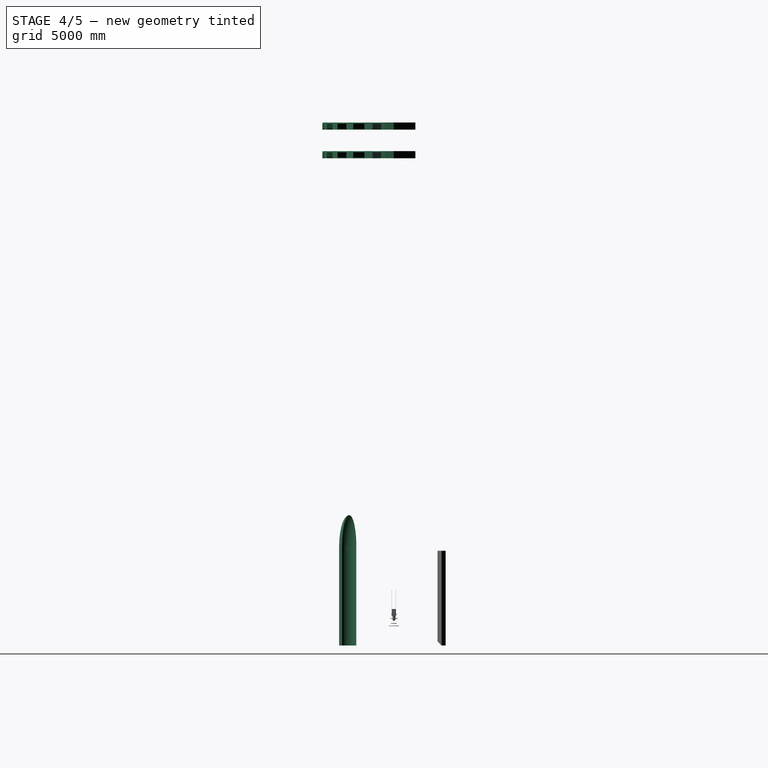
[diagram: stage 4 of 5 — right view after this stage's code; geometry added in this stage tinted green]
FEATURE [Part::Loft] Loft006
  Closed = false
  MaxDegree = 5
  Ruled = false
  Sections = -> [DWire010,DWire011]
  Solid = true
FEATURE [Part::Loft] Loft007
  Closed = false
  MaxDegree = 5
  Ruled = false
  Sections = -> [DWire012,DWire013]
  Solid = true
FEATURE [Part::Fillet] Fillet005
  Base = -> Loft006
  Edges = <same value as first occurrence — deduplicated (x3 in doc)>
FEATURE [Part::Fillet] Fillet006
  Base = -> Loft007
  Edges = <same value as first occurrence — deduplicated (x3 in doc)>
FEATURE [Sketcher::SketchObject] Sketch007  label="landing fairing sketch"
  Placement = pos=(0,0,0) rot=(1,0,0;1.5708rad)
  sketch-geometry (22):
    g0: LineSegment StartX=700 StartY=0 StartZ=0 EndX=680 EndY=0 EndZ=0
    g1: LineSegment StartX=700 StartY=0 StartZ=0 EndX=700 EndY=7000 EndZ=0
    g2: LineSegment StartX=680 StartY=0 StartZ=0 EndX=680 EndY=7000 EndZ=0
    g3-g7: Circle [constr] x5 (B-spline internal-alignment scaffolding for g8; pole/knot coordinates omitted)
    g8: BSplineCurve PolesCount=5 KnotsCount=3 Degree=3 IsPeriodic=0
    g9: GeomPoint [constr] X=0 Y=9100 Z=0
    g10: GeomPoint [constr] X=501.358 Y=8456.46 Z=0
    g11: GeomPoint [constr] X=700 Y=7000 Z=0
    g12: LineSegment StartX=0 StartY=9100 StartZ=0 EndX=0 EndY=9080 EndZ=0
    g13-g17: Circle [constr] x5 (B-spline internal-alignment scaffolding for g18; pole/knot coordinates omitted)
    g18: BSplineCurve PolesCount=5 KnotsCount=3 Degree=3 IsPeriodic=0
    g19: GeomPoint [constr] X=0 Y=9080 Z=0
    g20: GeomPoint [constr] X=487.918 Y=8458.84 Z=0
    g21: GeomPoint [constr] X=680 Y=7000 Z=0
  constraints (26):
    c: Horizontal(g0)
    c: Coincident(g1,g0)
    c: Vertical(g1)
    c: Coincident(g2,g0)
    c: Vertical(g2)
    c: Radius(g3) = 50
    c: Equal(g3, g4-g7) x4
    c: Coincident(g7,g1)
    c: InternalAlignment(g3-g7 -> g8) x5
    c: InternalAlignment(g9,g8)
    c: InternalAlignment(g10,g8)
    c: InternalAlignment(g11,g8)
    c: Coincident(g12,g3)
    c: Vertical(g12)
    c: Coincident(g13,g12)
    c: Radius(g13) = 40
    c: Equal(g13,g14)
    c: PointOnObject(g14,g8)
    c: Equal(g13,g15)
    c: Equal(g13,g16)
    c: Equal(g13,g17)
    c: Coincident(g17,g2)
    c: InternalAlignment(g13-g17 -> g18) x5
    c: InternalAlignment(g19,g18)
    c: InternalAlignment(g20,g18)
    c: InternalAlignment(g21,g18)
FEATURE [Part::Revolution] Revolve002  label="landing fairing revolve"
  Angle = 180
  Axis = (0,0,1)
  Base = (0,0,0)
  FaceMakerClass = Part::FaceMakerBullseye
  Placement = pos=(3120,-3120,0) rot=(0,0,1;3.92699rad)
  Solid = true
  Source = -> Sketch007
  Symmetric = false
FEATURE [Part::Mirroring] Part__Mirroring003  label="landing fairing revolve (Mirror #3)"
  Base = (0,0,0)
  Normal = (1,0,0)
  Source = -> Revolve002
FEATURE [Sketcher::SketchObject] Sketch049  label="tank sketch"
  Placement = pos=(0,0,0) rot=(1,0,0;1.5708rad)
  sketch-geometry (13):
    g0: LineSegment StartX=0 StartY=2470 StartZ=0 EndX=340 EndY=2470 EndZ=0
    g1: Circle [constr] CenterX=340 CenterY=2470 CenterZ=0 NormalX=0 NormalY=0 NormalZ=1 AngleXU=0 Radius=100
    g2: Circle [constr] CenterX=1070 CenterY=2544.29 CenterZ=0 NormalX=0 NormalY=0 NormalZ=1 AngleXU=0 Radius=100
    g3: Circle [constr] CenterX=1355.73 CenterY=4407.9 CenterZ=0 NormalX=0 NormalY=0 NormalZ=1 AngleXU=0 Radius=100
    g4: BSplineCurve PolesCount=3 KnotsCount=2 Degree=2 IsPeriodic=0
    g5: GeomPoint [constr] X=340 Y=2470 Z=0
    g6: GeomPoint [constr] X=1355.73 Y=4407.9 Z=0
    g7: Circle [constr] CenterX=1355.73 CenterY=4407.9 CenterZ=0 NormalX=0 NormalY=0 NormalZ=1 AngleXU=0 Radius=200
    g8: Circle [constr] CenterX=3905.28 CenterY=4780 CenterZ=0 NormalX=0 NormalY=0 NormalZ=1 AngleXU=0 Radius=200
    g9: Circle [constr] CenterX=4460 CenterY=7150 CenterZ=0 NormalX=0 NormalY=0 NormalZ=1 AngleXU=0 Radius=200
    g10: BSplineCurve PolesCount=3 KnotsCount=2 Degree=2 IsPeriodic=0
    g11: GeomPoint [constr] X=1355.73 Y=4407.9 Z=0
    g12: GeomPoint [constr] X=4460 Y=7150 Z=0
  constraints (19):
    c: Horizontal(g0)
    c: Coincident(g1,g0)
    c: Radius(g1) = 100
    c: Equal(g1,g2)
    c: Equal(g1,g3)
    c: InternalAlignment(g1,g4)
    c: InternalAlignment(g2,g4)
    c: InternalAlignment(g3,g4)
    c: InternalAlignment(g5,g4)
    c: InternalAlignment(g6,g4)
    c: Radius(g7) = 200
    c: Equal(g7,g8)
    c: Equal(g7,g9)
    c: InternalAlignment(g7,g10)
    c: InternalAlignment(g8,g10)
    c: InternalAlignment(g9,g10)
    c: InternalAlignment(g11,g10)
    c: InternalAlignment(g12,g10)
    c: Coincident(g3,g7)
FEATURE [Part::Revolution] Revolve027  label="tank"
  Angle = 360
  Axis = (0,0,1)
  Base = (0,0,0)
  FaceMakerClass = Part::FaceMakerBullseye
  Placement = pos=(0,0,-200) rot=(0,0,1;0rad)
  Solid = false
  Source = -> Sketch049
  Symmetric = false
FEATURE [Part::Cylinder] Cylinder
  Angle = 360
  AttacherType = Attacher::AttachEngine3D
  Height = 350
  Placement = pos=(-350,0,1730) rot=(0,0,1;0rad)
  Radius = 100
FEATURE [Part::Torus] Torus001  label="gimbal torus"
  Angle1 = -180
  Angle2 = 180
  Angle3 = 360
  AttacherType = Attacher::AttachEngine3D
  Placement = pos=(0,0,1550) rot=(0,0,1;0rad)
  Radius1 = 190
  Radius2 = 20
FEATURE [Sketcher::SketchObject] Sketch002
  Placement = pos=(0,0,1738) rot=(0,0,1;0rad)
  sketch-geometry (1):
    g0: Circle CenterX=-350.051 CenterY=-0.049992 CenterZ=0 NormalX=0 NormalY=0 NormalZ=1 AngleXU=0 Radius=34.4116
FEATURE [Sketcher::SketchObject] Sketch050  label="sea level sketch"
  Placement = pos=(0,0,0) rot=(1,0,0;1.5708rad)
  sketch-geometry (32):
    g0: LineSegment StartX=650 StartY=0 StartZ=0 EndX=640 EndY=0 EndZ=0
    g1-g5: Circle [constr] x5 (B-spline internal-alignment scaffolding for g6; pole/knot coordinates omitted)
    g6: BSplineCurve PolesCount=5 KnotsCount=3 Degree=3 IsPeriodic=0
    g7: GeomPoint [constr] X=650 Y=0 Z=0
    g8: GeomPoint [constr] X=445.682 Y=1102.68 Z=0
    g9: GeomPoint [constr] X=170.497 Y=1542.07 Z=0
    g10: Circle [constr] CenterX=170.497 CenterY=1542.07 CenterZ=0 NormalX=0 NormalY=0 NormalZ=1 AngleXU=0 Radius=20
    g11: Circle [constr] CenterX=220.155 CenterY=1796.29 CenterZ=0 NormalX=0 NormalY=0 NormalZ=1 AngleXU=0 Radius=20
    g12-g15: Circle [constr] x4 (B-spline internal-alignment scaffolding for g16; pole/knot coordinates omitted)
    g16: BSplineCurve PolesCount=4 KnotsCount=2 Degree=3 IsPeriodic=0
    g17: GeomPoint [constr] X=220.155 Y=1796.29 Z=0
    g18: GeomPoint [constr] X=0 Y=2090 Z=0
    g19: Circle [constr] CenterX=160.049 CenterY=1569.58 CenterZ=0 NormalX=0 NormalY=0 NormalZ=1 AngleXU=0 Radius=3
    g20: Circle [constr] CenterX=159.309 CenterY=1555.59 CenterZ=0 NormalX=0 NormalY=0 NormalZ=1 AngleXU=0 Radius=3
    g21: Circle [constr] CenterX=170.497 CenterY=1542.07 CenterZ=0 NormalX=0 NormalY=0 NormalZ=1 AngleXU=0 Radius=2.32171
    g22: BSplineCurve PolesCount=3 KnotsCount=2 Degree=2 IsPeriodic=0
    g23: GeomPoint [constr] X=160.049 Y=1569.58 Z=0
    g24: GeomPoint [constr] X=170.497 Y=1542.07 Z=0
    g25-g28: Circle [constr] x4 (B-spline internal-alignment scaffolding for g29; pole/knot coordinates omitted)
    g29: BSplineCurve PolesCount=4 KnotsCount=2 Degree=3 IsPeriodic=0
    g30: GeomPoint [constr] X=220.155 Y=1796.29 Z=0
    g31: GeomPoint [constr] X=160.049 Y=1569.58 Z=0
  constraints (33):
    c: Coincident(g1,g0)
    c: Radius(g1) = 100
    c: Equal(g1, g2-g5) x4
    c: InternalAlignment(g1-g5 -> g6) x5
    c: InternalAlignment(g7,g6)
    c: InternalAlignment(g8,g6)
    c: InternalAlignment(g9,g6)
    c: Coincident(g10,g5)
    c: Radius(g10) = 20
    c: Coincident(g12,g11)
    c: Radius(g12) = 40
    c: Equal(g12,g13)
    c: Equal(g12,g14)
    c: Equal(g12,g15)
    c: InternalAlignment(g12-g15 -> g16) x4
    c: InternalAlignment(g17,g16)
    c: InternalAlignment(g18,g16)
    c: Radius(g19) = 3
    c: Equal(g19,g20)
    c: PointOnObject(g21,g6)
    c: InternalAlignment(g19,g22)
    c: InternalAlignment(g20,g22)
    c: InternalAlignment(g21,g22)
    c: InternalAlignment(g23,g22)
    c: InternalAlignment(g24,g22)
    c: Coincident(g5,g21)
    c: Coincident(g25,g11)
    c: Radius(g25) = 10
    c: Equal(g25,g28)
    c: Coincident(g28,g19)
    c: InternalAlignment(g25-g28 -> g29) x4
    c: InternalAlignment(g30,g29)
    c: InternalAlignment(g31,g29)
FEATURE [Sketcher::SketchObject] Sketch051  label="sweep path"
  Placement = pos=(0,0,0) rot=(1,0,0;1.5708rad)
  sketch-geometry (9):
    g0-g4: Circle [constr] x5 (B-spline internal-alignment scaffolding for g5; pole/knot coordinates omitted)
    g5: BSplineCurve PolesCount=5 KnotsCount=3 Degree=3 IsPeriodic=0
    g6: GeomPoint [constr] X=-348.852 Y=1731.94 Z=0
    g7: GeomPoint [constr] X=-242.341 Y=1587.72 Z=0
    g8: GeomPoint [constr] X=-347.061 Y=1370 Z=0
  constraints (6):
    c: Radius(g0) = 10
    c: Equal(g0,g4)
    c: InternalAlignment(g0-g4 -> g5) x5
    c: InternalAlignment(g6,g5)
    c: InternalAlignment(g7,g5)
    c: InternalAlignment(g8,g5)
FEATURE [Sketcher::SketchObject] Sketch052  label="injector sketch"
  Placement = pos=(0,0,0) rot=(1,0,0;1.5708rad)
  sketch-geometry (9):
    g0: Circle [constr] CenterX=110 CenterY=2200 CenterZ=0 NormalX=0 NormalY=0 NormalZ=1 AngleXU=0 Radius=10
    g1: Circle [constr] CenterX=110 CenterY=2140 CenterZ=0 NormalX=0 NormalY=0 NormalZ=1 AngleXU=0 Radius=10
    g2: Circle [constr] CenterX=146.985 CenterY=2082.42 CenterZ=0 NormalX=0 NormalY=0 NormalZ=1 AngleXU=0 Radius=10
    g3: BSplineCurve PolesCount=3 KnotsCount=2 Degree=2 IsPeriodic=0
    g4: GeomPoint [constr] X=110 Y=2200 Z=0
    g5: GeomPoint [constr] X=146.985 Y=2082.42 Z=0
    g6: LineSegment StartX=110 StartY=2200 StartZ=0 EndX=150 EndY=2238 EndZ=0
    g7: LineSegment StartX=150 StartY=2238 StartZ=0 EndX=150 EndY=2260 EndZ=0
    g8: LineSegment StartX=150 StartY=2260 StartZ=0 EndX=0 EndY=2260 EndZ=0
  constraints (13):
    c: Radius(g0) = 10
    c: Equal(g0,g1)
    c: Equal(g0,g2)
    c: InternalAlignment(g0,g3)
    c: InternalAlignment(g1,g3)
    c: InternalAlignment(g2,g3)
    c: InternalAlignment(g4,g3)
    c: InternalAlignment(g5,g3)
    c: Coincident(g6,g0)
    c: Coincident(g7,g6)
    c: Vertical(g7)
    c: Coincident(g8,g7)
    c: Horizontal(g8)
FEATURE [Sketcher::SketchObject] Sketch053  label="lox sketch"
  Placement = pos=(0,0,0) rot=(1,0,0;1.5708rad)
  sketch-geometry (10):
    g0: Circle [constr] CenterX=-233.911 CenterY=2196.94 CenterZ=0 NormalX=0 NormalY=0 NormalZ=1 AngleXU=0 Radius=10
    g1: Circle [constr] CenterX=-293.034 CenterY=2140 CenterZ=0 NormalX=0 NormalY=0 NormalZ=1 AngleXU=0 Radius=10
    g2: Circle [constr] CenterX=-210 CenterY=2080 CenterZ=0 NormalX=0 NormalY=0 NormalZ=1 AngleXU=0 Radius=10
    g3: BSplineCurve PolesCount=3 KnotsCount=2 Degree=2 IsPeriodic=0
    g4: GeomPoint [constr] X=-233.911 Y=2196.94 Z=0
    g5: GeomPoint [constr] X=-210 Y=2080 Z=0
    g6: LineSegment StartX=-233.911 StartY=2196.94 StartZ=0 EndX=-291.228 EndY=2281.45 EndZ=0
    g7: LineSegment StartX=-291.228 StartY=2281.45 StartZ=0 EndX=-291.228 EndY=2461.19 EndZ=0
    g8: LineSegment StartX=-291.228 StartY=2461.19 StartZ=0 EndX=-354 EndY=2461.19 EndZ=0
    g9: LineSegment StartX=-210 StartY=2080 StartZ=0 EndX=-354 EndY=2080 EndZ=0
  constraints (17):
    c: Radius(g0) = 10
    c: Equal(g0,g1)
    c: Equal(g0,g2)
    c: InternalAlignment(g0,g3)
    c: InternalAlignment(g1,g3)
    c: InternalAlignment(g2,g3)
    c: InternalAlignment(g4,g3)
    c: InternalAlignment(g5,g3)
    c: Coincident(g6,g0)
    c: Coincident(g7,g6)
    c: Vertical(g7)
    c: Coincident(g8,g7)
    c: Horizontal(g8)
    c: Coincident(g9,g2)
    c: Horizontal(g9)
    c: DistanceX(g8,g-1) = 354
    c: DistanceX(g8,g9) = 0
FEATURE [Sketcher::SketchObject] Sketch054  label="vac sketch"
  Placement = pos=(0,0,0) rot=(1,0,0;1.5708rad)
  sketch-geometry (32):
    g0: LineSegment StartX=1200 StartY=-2090 StartZ=0 EndX=1190 EndY=-2090 EndZ=0
    g1-g5: Circle [constr] x5 (B-spline internal-alignment scaffolding for g6; pole/knot coordinates omitted)
    g6: BSplineCurve PolesCount=5 KnotsCount=3 Degree=3 IsPeriodic=0
    g7: GeomPoint [constr] X=1200 Y=-2090 Z=0
    g8: GeomPoint [constr] X=644.157 Y=779.267 Z=0
    g9: GeomPoint [constr] X=170.497 Y=1542.07 Z=0
    g10: Circle [constr] CenterX=170.497 CenterY=1542.07 CenterZ=0 NormalX=0 NormalY=0 NormalZ=1 AngleXU=0 Radius=20
    g11: Circle [constr] CenterX=220.155 CenterY=1796.29 CenterZ=0 NormalX=0 NormalY=0 NormalZ=1 AngleXU=0 Radius=20
    g12-g15: Circle [constr] x4 (B-spline internal-alignment scaffolding for g16; pole/knot coordinates omitted)
    g16: BSplineCurve PolesCount=4 KnotsCount=2 Degree=3 IsPeriodic=0
    g17: GeomPoint [constr] X=220.155 Y=1796.29 Z=0
    g18: GeomPoint [constr] X=0 Y=2090 Z=0
    g19: Circle [constr] CenterX=160.049 CenterY=1569.58 CenterZ=0 NormalX=0 NormalY=0 NormalZ=1 AngleXU=0 Radius=3
    g20: Circle [constr] CenterX=159.309 CenterY=1555.59 CenterZ=0 NormalX=0 NormalY=0 NormalZ=1 AngleXU=0 Radius=3
    g21: Circle [constr] CenterX=170.497 CenterY=1542.07 CenterZ=0 NormalX=0 NormalY=0 NormalZ=1 AngleXU=0 Radius=2.32171
    g22: BSplineCurve PolesCount=3 KnotsCount=2 Degree=2 IsPeriodic=0
    g23: GeomPoint [constr] X=160.049 Y=1569.58 Z=0
    g24: GeomPoint [constr] X=170.497 Y=1542.07 Z=0
    g25-g28: Circle [constr] x4 (B-spline internal-alignment scaffolding for g29; pole/knot coordinates omitted)
    g29: BSplineCurve PolesCount=4 KnotsCount=2 Degree=3 IsPeriodic=0
    g30: GeomPoint [constr] X=220.155 Y=1796.29 Z=0
    g31: GeomPoint [constr] X=160.049 Y=1569.58 Z=0
  constraints (33):
    c: Coincident(g1,g0)
    c: Radius(g1) = 100
    c: Equal(g1, g2-g5) x4
    c: InternalAlignment(g1-g5 -> g6) x5
    c: InternalAlignment(g7,g6)
    c: InternalAlignment(g8,g6)
    c: InternalAlignment(g9,g6)
    c: Coincident(g10,g5)
    c: Radius(g10) = 20
    c: Coincident(g12,g11)
    c: Radius(g12) = 40
    c: Equal(g12,g13)
    c: Equal(g12,g14)
    c: Equal(g12,g15)
    c: InternalAlignment(g12-g15 -> g16) x4
    c: InternalAlignment(g17,g16)
    c: InternalAlignment(g18,g16)
    c: Radius(g19) = 3
    c: Equal(g19,g20)
    c: PointOnObject(g21,g6)
    c: InternalAlignment(g19,g22)
    c: InternalAlignment(g20,g22)
    c: InternalAlignment(g21,g22)
    c: InternalAlignment(g23,g22)
    c: InternalAlignment(g24,g22)
    c: Coincident(g5,g21)
    c: Coincident(g25,g11)
    c: Radius(g25) = 10
    c: Equal(g25,g28)
    c: Coincident(g28,g19)
    c: InternalAlignment(g25-g28 -> g29) x4
    c: InternalAlignment(g30,g29)
    c: InternalAlignment(g31,g29)
FEATURE [Part::Revolution] Revolve028  label="vac nozzle"
  Angle = 360
  Axis = (0,0,1)
  Base = (0,0,0)
  FaceMakerClass = Part::FaceMakerBullseye
  Solid = false
  Source = -> Sketch054
  Symmetric = false
FEATURE [Sketcher::SketchObject] Sketch008  label="fuel sketch1"
  Placement = pos=(0,0,0) rot=(0.57735,0.57735,0.57735;2.0944rad)
  sketch-geometry (12):
    g0: Circle [constr] CenterX=-157.166 CenterY=2200 CenterZ=0 NormalX=0 NormalY=0 NormalZ=1 AngleXU=0 Radius=20
    g1: Circle [constr] CenterX=-241.173 CenterY=2212.08 CenterZ=0 NormalX=0 NormalY=0 NormalZ=1 AngleXU=0 Radius=20
    g2: Circle [constr] CenterX=-277.305 CenterY=2115.42 CenterZ=0 NormalX=0 NormalY=0 NormalZ=1 AngleXU=0 Radius=20
    g3: BSplineCurve PolesCount=3 KnotsCount=2 Degree=2 IsPeriodic=0
    g4: GeomPoint [constr] X=-157.166 Y=2200 Z=0
    g5: GeomPoint [constr] X=-277.305 Y=2115.42 Z=0
    g6: Circle [constr] CenterX=-277.305 CenterY=2115.42 CenterZ=0 NormalX=0 NormalY=0 NormalZ=1 AngleXU=0 Radius=40
    g7: Circle [constr] CenterX=-362.731 CenterY=1907.44 CenterZ=0 NormalX=0 NormalY=0 NormalZ=1 AngleXU=0 Radius=194.246
    g8: Circle [constr] CenterX=-198.718 CenterY=1566.22 CenterZ=0 NormalX=0 NormalY=0 NormalZ=1 AngleXU=0 Radius=40
    g9: BSplineCurve PolesCount=3 KnotsCount=2 Degree=2 IsPeriodic=0
    g10: GeomPoint [constr] X=-277.305 Y=2115.42 Z=0
    g11: GeomPoint [constr] X=-198.718 Y=1566.22 Z=0
  constraints (16):
    c: Radius(g0) = 20
    c: Equal(g0,g1)
    c: Equal(g0,g2)
    c: InternalAlignment(g0,g3)
    c: InternalAlignment(g1,g3)
    c: InternalAlignment(g2,g3)
    c: InternalAlignment(g4,g3)
    c: InternalAlignment(g5,g3)
    c: Coincident(g6,g2)
    c: Radius(g6) = 40
    c: Equal(g6,g8)
    c: InternalAlignment(g6,g9)
    c: InternalAlignment(g7,g9)
    c: InternalAlignment(g8,g9)
    c: InternalAlignment(g10,g9)
    c: InternalAlignment(g11,g9)
FEATURE [Part::Revolution] Revolve003  label="lox pump"
  Angle = 360
  Axis = (0,0,1)
  Base = (-354,0,0)
  FaceMakerClass = Part::FaceMakerBullseye
  Solid = false
  Source = -> Sketch053
  Symmetric = false
FEATURE [Part::Torus] Torus002  label="combustor torus"
  Angle1 = -180
  Angle2 = 180
  Angle3 = 360
  AttacherType = Attacher::AttachEngine3D
  Placement = pos=(0,0,1900) rot=(0,0,1;0rad)
  Radius1 = 240
  Radius2 = 20
FEATURE [Part::Torus] Torus004  label="pump torus2"
  Angle1 = -180
  Angle2 = 180
  Angle3 = 360
  AttacherType = Attacher::AttachEngine3D
  Placement = pos=(-354,0,2196) rot=(0,0,1;0rad)
  Radius1 = 110
  Radius2 = 30
FEATURE [Part::Revolution] Revolve029  label="sea level nozzle"
  Angle = 360
  Axis = (0,0,1)
  Base = (0,0,0)
  FaceMakerClass = Part::FaceMakerBullseye
  Solid = false
  Source = -> Sketch050
  Symmetric = false
FEATURE [Sketcher::SketchObject] Sketch009  label="fuel sketch2"
  Placement = pos=(0,-157,0) rot=(1,0,0;1.5708rad)
  sketch-geometry (1):
    g0: Circle CenterX=0.155904 CenterY=2198.4 CenterZ=0 NormalX=0 NormalY=0 NormalZ=1 AngleXU=0 Radius=26.4167
FEATURE [Part::Torus] Torus003  label="pump torus1"
  Angle1 = -180
  Angle2 = 180
  Angle3 = 360
  AttacherType = Attacher::AttachEngine3D
  Placement = pos=(-354,0,2080) rot=(0,0,1;0rad)
  Radius1 = 150
  Radius2 = 20
FEATURE [Part::Revolution] Revolve030  label="injector"
  Angle = 360
  Axis = (0,0,1)
  Base = (0,0,0)
  FaceMakerClass = Part::FaceMakerBullseye
  Solid = false
  Source = -> Sketch052
  Symmetric = false
FEATURE [Part::Fillet] Fillet007  label="methane pump"
  Base = -> Cylinder
  Edges = 2 edges: [Edge1 r=30,Edge3 r=100]
FEATURE [Sketcher::SketchObject] Sketch055
  Placement = pos=(0,0,1370) rot=(0,0,1;0rad)
  sketch-geometry (1):
    g0: Circle CenterX=-328.814 CenterY=-0.522608 CenterZ=0 NormalX=0 NormalY=0 NormalZ=1 AngleXU=0 Radius=18.5281
FEATURE [Part::Sweep] Sweep
  Frenet = false
  Sections = -> [Sketch002,Sketch055]
  Solid = false
  Spine = -> Sketch051 [Edge1]
  Transition = 1
FEATURE [Part::Torus] Torus  label="fuel torus"
  Angle1 = -180
  Angle2 = 180
  Angle3 = 360
  AttacherType = Attacher::AttachEngine3D
  Placement = pos=(0,0,1370) rot=(0,0,1;0rad)
  Radius1 = 333
  Radius2 = 20
FEATURE [Part::Sweep] Sweep001  label="fuel"
  Frenet = false
  Placement = pos=(0,0,0) rot=(0,0,-1;0.523599rad)
  Sections = -> [Sketch009]
  Solid = false
  Spine = -> Sketch008 [Edge1,Edge2]
  Transition = 1
FEATURE [Part::Torus] Torus005  label="injector torus"
  Angle1 = -180
  Angle2 = 180
  Angle3 = 360
  AttacherType = Attacher::AttachEngine3D
  Placement = pos=(0,0,2199) rot=(0,0,1;0rad)
  Radius1 = 150
  Radius2 = 40
FEATURE [Part::Torus] Torus006  label="gimbal torus001"
  Angle1 = -180
  Angle2 = 180
  Angle3 = 360
  AttacherType = Attacher::AttachEngine3D
  Placement = pos=(0,0,1550) rot=(0,0,1;0rad)
  Radius1 = 190
  Radius2 = 20
FEATURE [Sketcher::SketchObject] Sketch056
  Placement = pos=(0,0,1738) rot=(0,0,1;0rad)
  sketch-geometry (1):
    g0: Circle CenterX=-350.051 CenterY=-0.049992 CenterZ=0 NormalX=0 NormalY=0 NormalZ=1 AngleXU=0 Radius=34.4116
FEATURE [Sketcher::SketchObject] Sketch057  label="sea level sketch001"
  Placement = pos=(0,0,0) rot=(1,0,0;1.5708rad)
  sketch-geometry (32):
    g0: LineSegment StartX=650 StartY=0 StartZ=0 EndX=640 EndY=0 EndZ=0
    g1-g5: Circle [constr] x5 (B-spline internal-alignment scaffolding for g6; pole/knot coordinates omitted)
    g6: BSplineCurve PolesCount=5 KnotsCount=3 Degree=3 IsPeriodic=0
    g7: GeomPoint [constr] X=650 Y=0 Z=0
    g8: GeomPoint [constr] X=445.682 Y=1102.68 Z=0
    g9: GeomPoint [constr] X=170.497 Y=1542.07 Z=0
    g10: Circle [constr] CenterX=170.497 CenterY=1542.07 CenterZ=0 NormalX=0 NormalY=0 NormalZ=1 AngleXU=0 Radius=20
    g11: Circle [constr] CenterX=220.155 CenterY=1796.29 CenterZ=0 NormalX=0 NormalY=0 NormalZ=1 AngleXU=0 Radius=20
    g12-g15: Circle [constr] x4 (B-spline internal-alignment scaffolding for g16; pole/knot coordinates omitted)
    g16: BSplineCurve PolesCount=4 KnotsCount=2 Degree=3 IsPeriodic=0
    g17: GeomPoint [constr] X=220.155 Y=1796.29 Z=0
    g18: GeomPoint [constr] X=0 Y=2090 Z=0
    g19: Circle [constr] CenterX=160.049 CenterY=1569.58 CenterZ=0 NormalX=0 NormalY=0 NormalZ=1 AngleXU=0 Radius=3
    g20: Circle [constr] CenterX=159.309 CenterY=1555.59 CenterZ=0 NormalX=0 NormalY=0 NormalZ=1 AngleXU=0 Radius=3
    g21: Circle [constr] CenterX=170.497 CenterY=1542.07 CenterZ=0 NormalX=0 NormalY=0 NormalZ=1 AngleXU=0 Radius=2.32171
    g22: BSplineCurve PolesCount=3 KnotsCount=2 Degree=2 IsPeriodic=0
    g23: GeomPoint [constr] X=160.049 Y=1569.58 Z=0
    g24: GeomPoint [constr] X=170.497 Y=1542.07 Z=0
    g25-g28: Circle [constr] x4 (B-spline internal-alignment scaffolding for g29; pole/knot coordinates omitted)
    g29: BSplineCurve PolesCount=4 KnotsCount=2 Degree=3 IsPeriodic=0
    g30: GeomPoint [constr] X=220.155 Y=1796.29 Z=0
    g31: GeomPoint [constr] X=160.049 Y=1569.58 Z=0
  constraints (33):
    c: Coincident(g1,g0)
    c: Radius(g1) = 100
    c: Equal(g1, g2-g5) x4
    c: InternalAlignment(g1-g5 -> g6) x5
    c: InternalAlignment(g7,g6)
    c: InternalAlignment(g8,g6)
    c: InternalAlignment(g9,g6)
    c: Coincident(g10,g5)
    c: Radius(g10) = 20
    c: Coincident(g12,g11)
    c: Radius(g12) = 40
    c: Equal(g12,g13)
    c: Equal(g12,g14)
    c: Equal(g12,g15)
    c: InternalAlignment(g12-g15 -> g16) x4
    c: InternalAlignment(g17,g16)
    c: InternalAlignment(g18,g16)
    c: Radius(g19) = 3
    c: Equal(g19,g20)
    c: PointOnObject(g21,g6)
    c: InternalAlignment(g19,g22)
    c: InternalAlignment(g20,g22)
    c: InternalAlignment(g21,g22)
    c: InternalAlignment(g23,g22)
    c: InternalAlignment(g24,g22)
    c: Coincident(g5,g21)
    c: Coincident(g25,g11)
    c: Radius(g25) = 10
    c: Equal(g25,g28)
    c: Coincident(g28,g19)
    c: InternalAlignment(g25-g28 -> g29) x4
    c: InternalAlignment(g30,g29)
    c: InternalAlignment(g31,g29)
FEATURE [Sketcher::SketchObject] Sketch058  label="sweep path001"
  Placement = pos=(0,0,0) rot=(1,0,0;1.5708rad)
  sketch-geometry (9):
    g0-g4: Circle [constr] x5 (B-spline internal-alignment scaffolding for g5; pole/knot coordinates omitted)
    g5: BSplineCurve PolesCount=5 KnotsCount=3 Degree=3 IsPeriodic=0
    g6: GeomPoint [constr] X=-348.852 Y=1731.94 Z=0
    g7: GeomPoint [constr] X=-242.341 Y=1587.72 Z=0
    g8: GeomPoint [constr] X=-347.061 Y=1370 Z=0
  constraints (6):
    c: Radius(g0) = 10
    c: Equal(g0,g4)
    c: InternalAlignment(g0-g4 -> g5) x5
    c: InternalAlignment(g6,g5)
    c: InternalAlignment(g7,g5)
    c: InternalAlignment(g8,g5)
FEATURE [Sketcher::SketchObject] Sketch059  label="injector sketch001"
  Placement = pos=(0,0,0) rot=(1,0,0;1.5708rad)
  sketch-geometry (9):
    g0: Circle [constr] CenterX=110 CenterY=2200 CenterZ=0 NormalX=0 NormalY=0 NormalZ=1 AngleXU=0 Radius=10
    g1: Circle [constr] CenterX=110 CenterY=2140 CenterZ=0 NormalX=0 NormalY=0 NormalZ=1 AngleXU=0 Radius=10
    g2: Circle [constr] CenterX=146.985 CenterY=2082.42 CenterZ=0 NormalX=0 NormalY=0 NormalZ=1 AngleXU=0 Radius=10
    g3: BSplineCurve PolesCount=3 KnotsCount=2 Degree=2 IsPeriodic=0
    g4: GeomPoint [constr] X=110 Y=2200 Z=0
    g5: GeomPoint [constr] X=146.985 Y=2082.42 Z=0
    g6: LineSegment StartX=110 StartY=2200 StartZ=0 EndX=150 EndY=2238 EndZ=0
    g7: LineSegment StartX=150 StartY=2238 StartZ=0 EndX=150 EndY=2260 EndZ=0
    g8: LineSegment StartX=150 StartY=2260 StartZ=0 EndX=0 EndY=2260 EndZ=0
  constraints (13):
    c: Radius(g0) = 10
    c: Equal(g0,g1)
    c: Equal(g0,g2)
    c: InternalAlignment(g0,g3)
    c: InternalAlignment(g1,g3)
    c: InternalAlignment(g2,g3)
    c: InternalAlignment(g4,g3)
    c: InternalAlignment(g5,g3)
    c: Coincident(g6,g0)
    c: Coincident(g7,g6)
    c: Vertical(g7)
    c: Coincident(g8,g7)
    c: Horizontal(g8)
FEATURE [Sketcher::SketchObject] Sketch060  label="lox sketch001"
  Placement = pos=(0,0,0) rot=(1,0,0;1.5708rad)
  sketch-geometry (10):
    g0: Circle [constr] CenterX=-233.911 CenterY=2196.94 CenterZ=0 NormalX=0 NormalY=0 NormalZ=1 AngleXU=0 Radius=10
    g1: Circle [constr] CenterX=-293.034 CenterY=2140 CenterZ=0 NormalX=0 NormalY=0 NormalZ=1 AngleXU=0 Radius=10
    g2: Circle [constr] CenterX=-210 CenterY=2080 CenterZ=0 NormalX=0 NormalY=0 NormalZ=1 AngleXU=0 Radius=10
    g3: BSplineCurve PolesCount=3 KnotsCount=2 Degree=2 IsPeriodic=0
    g4: GeomPoint [constr] X=-233.911 Y=2196.94 Z=0
    g5: GeomPoint [constr] X=-210 Y=2080 Z=0
    g6: LineSegment StartX=-233.911 StartY=2196.94 StartZ=0 EndX=-291.228 EndY=2281.45 EndZ=0
    g7: LineSegment StartX=-291.228 StartY=2281.45 StartZ=0 EndX=-291.228 EndY=2461.19 EndZ=0
    g8: LineSegment StartX=-291.228 StartY=2461.19 StartZ=0 EndX=-354 EndY=2461.19 EndZ=0
    g9: LineSegment StartX=-210 StartY=2080 StartZ=0 EndX=-354 EndY=2080 EndZ=0
  constraints (17):
    c: Radius(g0) = 10
    c: Equal(g0,g1)
    c: Equal(g0,g2)
    c: InternalAlignment(g0,g3)
    c: InternalAlignment(g1,g3)
    c: InternalAlignment(g2,g3)
    c: InternalAlignment(g4,g3)
    c: InternalAlignment(g5,g3)
    c: Coincident(g6,g0)
    c: Coincident(g7,g6)
    c: Vertical(g7)
    c: Coincident(g8,g7)
    c: Horizontal(g8)
    c: Coincident(g9,g2)
    c: Horizontal(g9)
    c: DistanceX(g8,g-1) = 354
    c: DistanceX(g8,g9) = 0
FEATURE [Sketcher::SketchObject] Sketch061  label="vac sketch001"
  Placement = pos=(0,0,0) rot=(1,0,0;1.5708rad)
  sketch-geometry (32):
    g0: LineSegment StartX=1200 StartY=-2090 StartZ=0 EndX=1190 EndY=-2090 EndZ=0
    g1-g5: Circle [constr] x5 (B-spline internal-alignment scaffolding for g6; pole/knot coordinates omitted)
    g6: BSplineCurve PolesCount=5 KnotsCount=3 Degree=3 IsPeriodic=0
    g7: GeomPoint [constr] X=1200 Y=-2090 Z=0
    g8: GeomPoint [constr] X=644.157 Y=779.267 Z=0
    g9: GeomPoint [constr] X=170.497 Y=1542.07 Z=0
    g10: Circle [constr] CenterX=170.497 CenterY=1542.07 CenterZ=0 NormalX=0 NormalY=0 NormalZ=1 AngleXU=0 Radius=20
    g11: Circle [constr] CenterX=220.155 CenterY=1796.29 CenterZ=0 NormalX=0 NormalY=0 NormalZ=1 AngleXU=0 Radius=20
    g12-g15: Circle [constr] x4 (B-spline internal-alignment scaffolding for g16; pole/knot coordinates omitted)
    g16: BSplineCurve PolesCount=4 KnotsCount=2 Degree=3 IsPeriodic=0
    g17: GeomPoint [constr] X=220.155 Y=1796.29 Z=0
    g18: GeomPoint [constr] X=0 Y=2090 Z=0
    g19: Circle [constr] CenterX=160.049 CenterY=1569.58 CenterZ=0 NormalX=0 NormalY=0 NormalZ=1 AngleXU=0 Radius=3
    g20: Circle [constr] CenterX=159.309 CenterY=1555.59 CenterZ=0 NormalX=0 NormalY=0 NormalZ=1 AngleXU=0 Radius=3
    g21: Circle [constr] CenterX=170.497 CenterY=1542.07 CenterZ=0 NormalX=0 NormalY=0 NormalZ=1 AngleXU=0 Radius=2.32171
    g22: BSplineCurve PolesCount=3 KnotsCount=2 Degree=2 IsPeriodic=0
    g23: GeomPoint [constr] X=160.049 Y=1569.58 Z=0
    g24: GeomPoint [constr] X=170.497 Y=1542.07 Z=0
    g25-g28: Circle [constr] x4 (B-spline internal-alignment scaffolding for g29; pole/knot coordinates omitted)
    g29: BSplineCurve PolesCount=4 KnotsCount=2 Degree=3 IsPeriodic=0
    g30: GeomPoint [constr] X=220.155 Y=1796.29 Z=0
    g31: GeomPoint [constr] X=160.049 Y=1569.58 Z=0
  constraints (33):
    c: Coincident(g1,g0)
    c: Radius(g1) = 100
    c: Equal(g1, g2-g5) x4
    c: InternalAlignment(g1-g5 -> g6) x5
    c: InternalAlignment(g7,g6)
    c: InternalAlignment(g8,g6)
    c: InternalAlignment(g9,g6)
    c: Coincident(g10,g5)
    c: Radius(g10) = 20
    c: Coincident(g12,g11)
    c: Radius(g12) = 40
    c: Equal(g12,g13)
    c: Equal(g12,g14)
    c: Equal(g12,g15)
    c: InternalAlignment(g12-g15 -> g16) x4
    c: InternalAlignment(g17,g16)
    c: InternalAlignment(g18,g16)
    c: Radius(g19) = 3
    c: Equal(g19,g20)
    c: PointOnObject(g21,g6)
    c: InternalAlignment(g19,g22)
    c: InternalAlignment(g20,g22)
    c: InternalAlignment(g21,g22)
    c: InternalAlignment(g23,g22)
    c: InternalAlignment(g24,g22)
    c: Coincident(g5,g21)
    c: Coincident(g25,g11)
    c: Radius(g25) = 10
    c: Equal(g25,g28)
    c: Coincident(g28,g19)
    c: InternalAlignment(g25-g28 -> g29) x4
    c: InternalAlignment(g30,g29)
    c: InternalAlignment(g31,g29)
FEATURE [Part::Revolution] Revolve031  label="vac nozzle001"
  Angle = 360
  Axis = (0,0,1)
  Base = (0,0,0)
  FaceMakerClass = Part::FaceMakerBullseye
  Solid = false
  Source = -> Sketch061
  Symmetric = false
FEATURE [Sketcher::SketchObject] Sketch062  label="fuel sketch003"
  Placement = pos=(0,0,0) rot=(0.57735,0.57735,0.57735;2.0944rad)
  sketch-geometry (12):
    g0: Circle [constr] CenterX=-157.166 CenterY=2200 CenterZ=0 NormalX=0 NormalY=0 NormalZ=1 AngleXU=0 Radius=20
    g1: Circle [constr] CenterX=-241.173 CenterY=2212.08 CenterZ=0 NormalX=0 NormalY=0 NormalZ=1 AngleXU=0 Radius=20
    g2: Circle [constr] CenterX=-277.305 CenterY=2115.42 CenterZ=0 NormalX=0 NormalY=0 NormalZ=1 AngleXU=0 Radius=20
    g3: BSplineCurve PolesCount=3 KnotsCount=2 Degree=2 IsPeriodic=0
    g4: GeomPoint [constr] X=-157.166 Y=2200 Z=0
    g5: GeomPoint [constr] X=-277.305 Y=2115.42 Z=0
    g6: Circle [constr] CenterX=-277.305 CenterY=2115.42 CenterZ=0 NormalX=0 NormalY=0 NormalZ=1 AngleXU=0 Radius=40
    g7: Circle [constr] CenterX=-362.731 CenterY=1907.44 CenterZ=0 NormalX=0 NormalY=0 NormalZ=1 AngleXU=0 Radius=194.246
    g8: Circle [constr] CenterX=-198.718 CenterY=1566.22 CenterZ=0 NormalX=0 NormalY=0 NormalZ=1 AngleXU=0 Radius=40
    g9: BSplineCurve PolesCount=3 KnotsCount=2 Degree=2 IsPeriodic=0
    g10: GeomPoint [constr] X=-277.305 Y=2115.42 Z=0
    g11: GeomPoint [constr] X=-198.718 Y=1566.22 Z=0
  constraints (16):
    c: Radius(g0) = 20
    c: Equal(g0,g1)
    c: Equal(g0,g2)
    c: InternalAlignment(g0,g3)
    c: InternalAlignment(g1,g3)
    c: InternalAlignment(g2,g3)
    c: InternalAlignment(g4,g3)
    c: InternalAlignment(g5,g3)
    c: Coincident(g6,g2)
    c: Radius(g6) = 40
    c: Equal(g6,g8)
    c: InternalAlignment(g6,g9)
    c: InternalAlignment(g7,g9)
    c: InternalAlignment(g8,g9)
    c: InternalAlignment(g10,g9)
    c: InternalAlignment(g11,g9)
FEATURE [Part::Revolution] Revolve032  label="lox pump001"
  Angle = 360
  Axis = (0,0,1)
  Base = (-354,0,0)
  FaceMakerClass = Part::FaceMakerBullseye
  Solid = false
  Source = -> Sketch060
  Symmetric = false
FEATURE [Part::Torus] Torus007  label="pump torus003"
  Angle1 = -180
  Angle2 = 180
  Angle3 = 360
  AttacherType = Attacher::AttachEngine3D
  Placement = pos=(-354,0,2196) rot=(0,0,1;0rad)
  Radius1 = 110
  Radius2 = 30
FEATURE [Part::Torus] Torus008  label="combustor torus001"
  Angle1 = -180
  Angle2 = 180
  Angle3 = 360
  AttacherType = Attacher::AttachEngine3D
  Placement = pos=(0,0,1900) rot=(0,0,1;0rad)
  Radius1 = 240
  Radius2 = 20
FEATURE [Part::Revolution] Revolve033  label="sea level nozzle001"
  Angle = 360
  Axis = (0,0,1)
  Base = (0,0,0)
  FaceMakerClass = Part::FaceMakerBullseye
  Solid = false
  Source = -> Sketch057
  Symmetric = false
FEATURE [Sketcher::SketchObject] Sketch063  label="fuel sketch004"
  Placement = pos=(0,-157,0) rot=(1,0,0;1.5708rad)
  sketch-geometry (1):
    g0: Circle CenterX=0.155904 CenterY=2198.4 CenterZ=0 NormalX=0 NormalY=0 NormalZ=1 AngleXU=0 Radius=26.4167
FEATURE [Part::Torus] Torus009  label="pump torus004"
  Angle1 = -180
  Angle2 = 180
  Angle3 = 360
  AttacherType = Attacher::AttachEngine3D
  Placement = pos=(-354,0,2080) rot=(0,0,1;0rad)
  Radius1 = 150
  Radius2 = 20
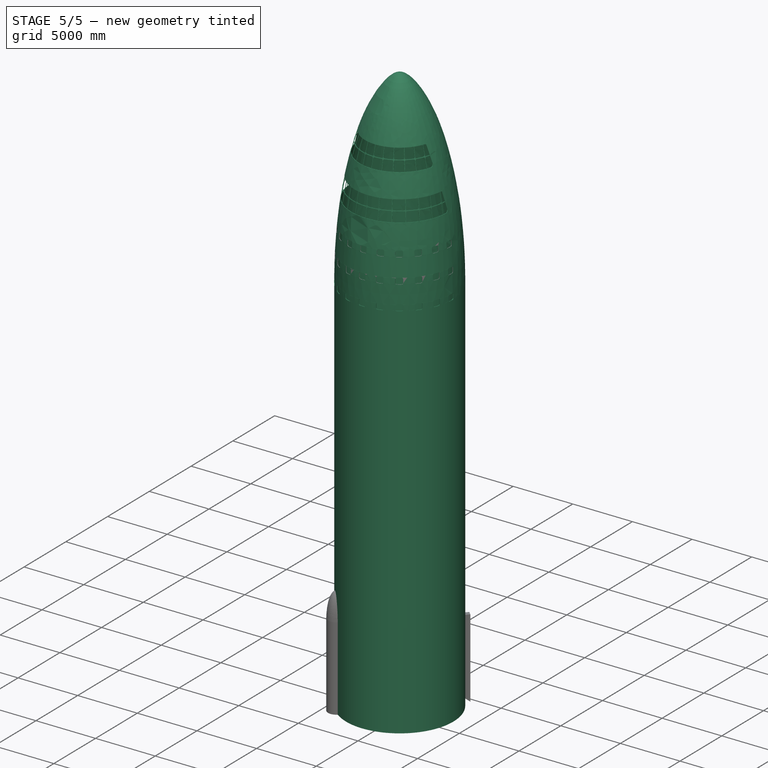
[diagram: stage 5 of 5 — iso view after this stage's code; geometry added in this stage tinted green]
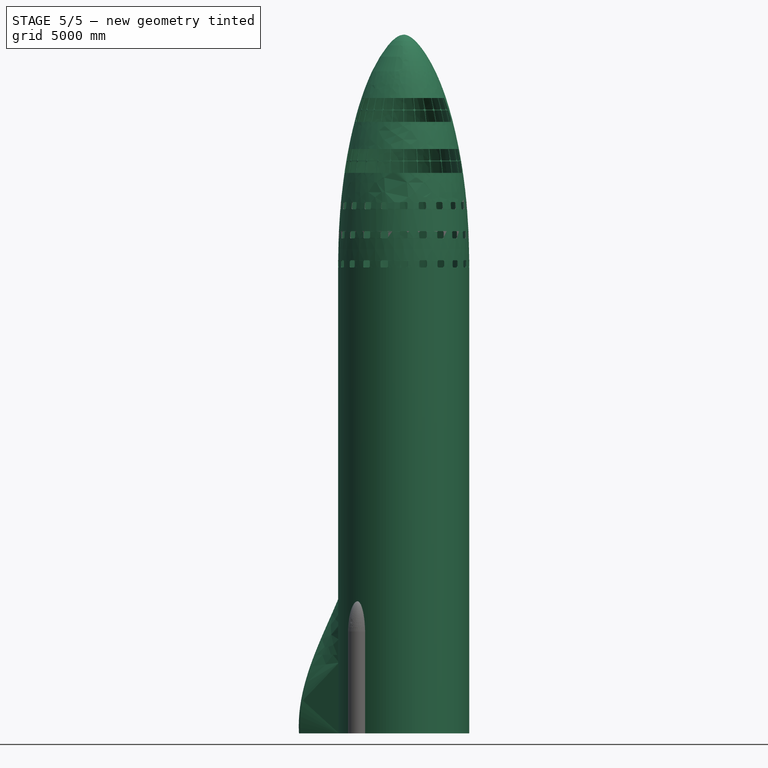
[diagram: stage 5 of 5 — front view after this stage's code; geometry added in this stage tinted green]
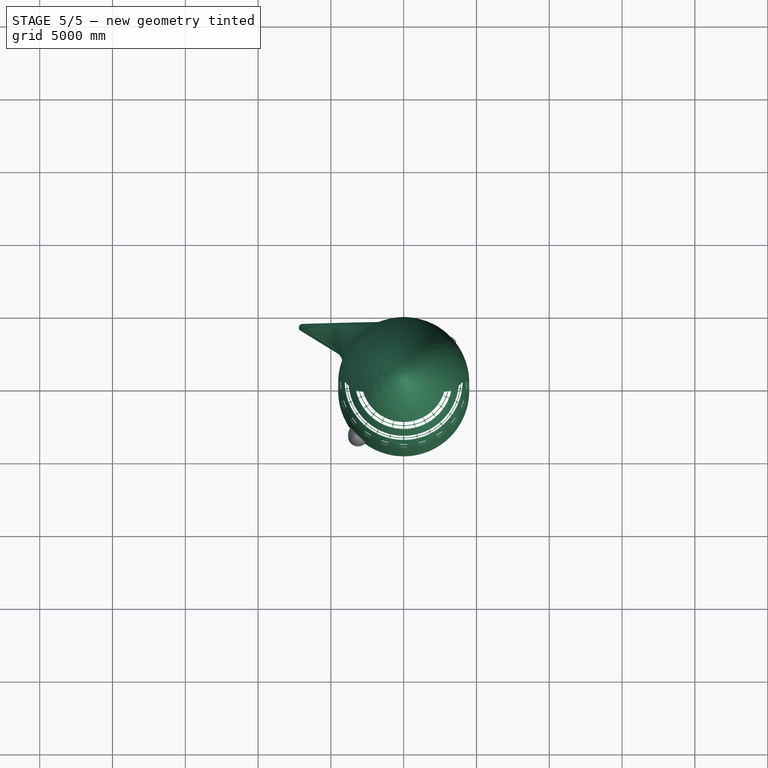
[diagram: stage 5 of 5 — top view after this stage's code; geometry added in this stage tinted green]
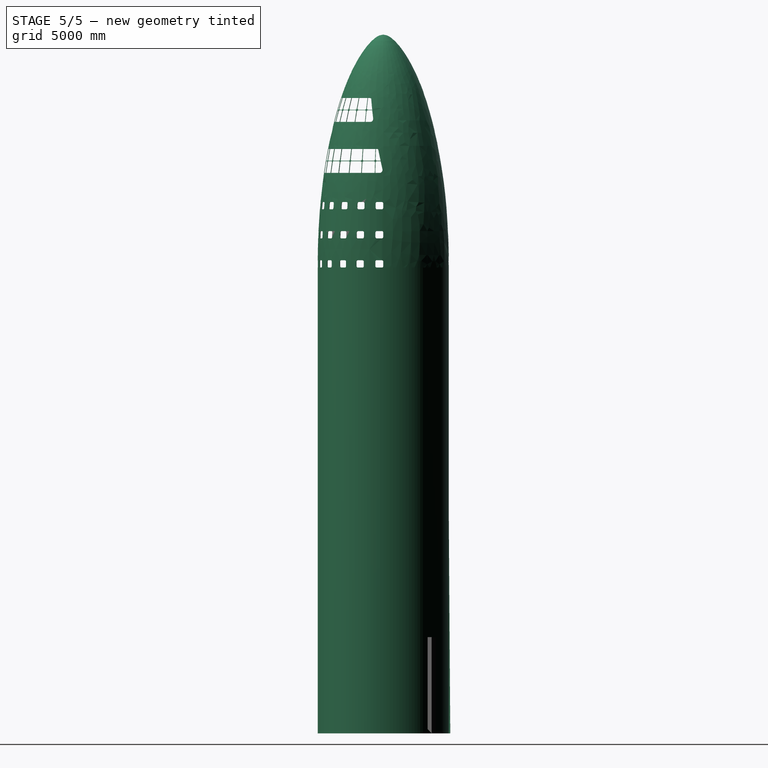
[diagram: stage 5 of 5 — right view after this stage's code; geometry added in this stage tinted green]
FEATURE [App::Part] Part
  License = CC BY 3.0
  LicenseURL = http://creativecommons.org/licenses/by/3.0/
  Origin = -> Origin
FEATURE [Part::FeaturePython] Scale  # WARN: FeaturePython — macro-defined, semantics opaque (R4)
  Fuse = false
  Placement = pos=(0,0,7000) rot=(0,0,1;0rad)
  Scale = (1,1,3)
FEATURE [Sketcher::SketchObject] Sketch
  Placement = pos=(0,0,0) rot=(1,0,0;1.5708rad)
  sketch-geometry (30):
    g0-g6: Circle [constr] x7 (B-spline internal-alignment scaffolding for g7; pole/knot coordinates omitted)
    g7: BSplineCurve PolesCount=7 KnotsCount=5 Degree=3 IsPeriodic=0
    g8-g12: GeomPoint [constr] x5 (B-spline internal-alignment scaffolding for g7; pole/knot coordinates omitted)
    g13: GeomPoint X=4500 Y=32000 Z=0
    g14: GeomPoint X=4500 Y=32000 Z=0
    g15-g21: Circle [constr] x7 (B-spline internal-alignment scaffolding for g22; pole/knot coordinates omitted)
    g22: BSplineCurve PolesCount=7 KnotsCount=5 Degree=3 IsPeriodic=0
    g23-g27: GeomPoint [constr] x5 (B-spline internal-alignment scaffolding for g22; pole/knot coordinates omitted)
    g28: LineSegment StartX=0 StartY=48000 StartZ=0 EndX=0 EndY=47979.7 EndZ=0
    g29: LineSegment StartX=4500 StartY=32000 StartZ=0 EndX=4460.23 EndY=32000 EndZ=0
  constraints (18):
    c: Radius(g0) = 50
    c: Equal(g0, g1-g6) x6
    c: InternalAlignment(g0-g6 -> g7) x7
    c: InternalAlignment(g8-g12 -> g7) x5
    c: DistanceY(g-1,g6) = 32000
    c: DistanceX(g-1,g6) = 4500
    c: DistanceY(g6,g0) = 16000
    c: PointOnObject(g0,g-2)
    c: Radius(g15) = 100
    c: Equal(g15, g16-g21) x6
    c: InternalAlignment(g15-g21 -> g22) x7
    c: InternalAlignment(g23-g27 -> g22) x5
    c: Coincident(g28,g0)
    c: Coincident(g28,g15)
    c: Vertical(g28)
    c: Coincident(g29,g6)
    c: Coincident(g29,g21)
    c: Horizontal(g29)
FEATURE [Sketcher::SketchObject] Sketch001  label="1"
  sketch-geometry (10):
    g0: ArcOfCircle CenterX=6941.7 CenterY=-4351.49 CenterZ=0 NormalX=0 NormalY=0 NormalZ=1 AngleXU=0 Radius=250 StartAngle=4.75523 EndAngle=7.37323
    g1: LineSegment StartX=7057.31 StartY=-4129.83 StartZ=0 EndX=4438.29 EndY=-2499.17 EndZ=0
    g2: LineSegment StartX=6952.4 StartY=-4601.26 StartZ=0 EndX=0 EndY=-4601.26 EndZ=0
    g3: ArcOfCircle CenterX=5210 CenterY=-1817.37 CenterZ=0 NormalX=0 NormalY=0 NormalZ=1 AngleXU=0 Radius=1029.76 StartAngle=2.74543 EndAngle=3.86521
    g4: LineSegment StartX=4432.69 StartY=-2510 StartZ=0 EndX=7050.55 EndY=-4136.87 EndZ=0
    g5: LineSegment StartX=6952.02 StartY=-4594 StartZ=0 EndX=-7.78789 EndY=-4595.13 EndZ=0
    g6: LineSegment StartX=-7.78789 StartY=-4595.13 StartZ=0 EndX=0 EndY=-4601.26 EndZ=0
    g7: ArcOfCircle CenterX=6939.95 CenterY=-4352.22 CenterZ=0 NormalX=0 NormalY=0 NormalZ=1 AngleXU=0 Radius=242.088 StartAngle=4.76226 EndAngle=7.37951
    g8: ArcOfCircle CenterX=5140.16 CenterY=-1826.67 CenterZ=0 NormalX=0 NormalY=0 NormalZ=1 AngleXU=0 Radius=983.59 StartAngle=2.70904 EndAngle=3.90964
    g9: LineSegment StartX=4247.16 StartY=-1414.36 StartZ=0 EndX=4260 EndY=-1420 EndZ=0
  constraints (14):
    c: Coincident(g1,g0)
    c: Coincident(g2,g0)
    c: PointOnObject(g2,g-2)
    c: Horizontal(g2)
    c: Radius(g0) = 250
    c: Angle(g0) = 2.61799
    c: Coincident(g1,g3)
    c: Coincident(g6,g2)
    c: Coincident(g5,g6)
    c: Coincident(g5,g7)
    c: Coincident(g4,g7)
    c: Coincident(g4,g8)
    c: Coincident(g8,g9)
    c: Coincident(g3,g9)
FEATURE [Sketcher::SketchObject] Sketch003  label="2"
  Placement = pos=(0,0,-2000) rot=(0,0,1;0rad)
  sketch-geometry (10):
    g0: ArcOfCircle CenterX=6840 CenterY=-4316.79 CenterZ=0 NormalX=0 NormalY=0 NormalZ=1 AngleXU=0 Radius=250 StartAngle=4.69157 EndAngle=7.30956
    g1: LineSegment StartX=6969.48 StartY=-4102.93 StartZ=0 EndX=4463.97 EndY=-2518.69 EndZ=0
    g2: LineSegment StartX=6834.79 StartY=-4566.73 StartZ=0 EndX=0 EndY=-4566.73 EndZ=0
    g3: ArcOfCircle CenterX=5233.97 CenterY=-1805.9 CenterZ=0 NormalX=0 NormalY=0 NormalZ=1 AngleXU=0 Radius=1049.27 StartAngle=2.7599 EndAngle=3.88843
    g4: LineSegment StartX=0 StartY=-4566.73 StartZ=0 EndX=-0.205376 EndY=-4561.63 EndZ=0
    g5: LineSegment StartX=-0.205376 StartY=-4561.63 StartZ=0 EndX=6837.98 EndY=-4561.63 EndZ=0
    g6: ArcOfCircle CenterX=6840 CenterY=-4316.79 CenterZ=0 NormalX=0 NormalY=0 NormalZ=1 AngleXU=0 Radius=244.847 StartAngle=4.70413 EndAngle=7.23219
    g7: LineSegment StartX=6982.62 StartY=-4117.77 StartZ=0 EndX=4452.52 EndY=-2530.99 EndZ=0
    g8: ArcOfCircle CenterX=5192.49 CenterY=-1815.74 CenterZ=0 NormalX=0 NormalY=0 NormalZ=1 AngleXU=0 Radius=1029.15 StartAngle=2.73544 EndAngle=3.91001
    g9: LineSegment StartX=4247.07 StartY=-1409.14 StartZ=0 EndX=4260.21 EndY=-1415.06 EndZ=0
  constraints (15):
    c: Coincident(g1,g0)
    c: Coincident(g2,g0)
    c: PointOnObject(g2,g-2)
    c: Horizontal(g2)
    c: Radius(g0) = 250
    c: Angle(g0) = 2.61799
    c: Coincident(g1,g3)
    c: Coincident(g4,g5)
    c: Coincident(g3,g9)
    c: Coincident(g8,g9)
    c: Coincident(g8,g7)
    c: Coincident(g6,g7)
    c: Coincident(g5,g6)
    c: Coincident(g2,g4)
    c: Horizontal(g5)
FEATURE [Sketcher::SketchObject] Sketch004  label="3"
  Placement = pos=(0,0,-10000) rot=(0,0,1;0rad)
  sketch-geometry (10):
    g0: ArcOfCircle CenterX=3700.57 CenterY=-4012 CenterZ=0 NormalX=0 NormalY=0 NormalZ=1 AngleXU=0 Radius=500 StartAngle=4.78422 EndAngle=6.35502
    g1: LineSegment StartX=4199.28 StartY=-3976.11 StartZ=0 EndX=4225.9 EndY=-2537.19 EndZ=0
    g2: LineSegment StartX=3736.46 StartY=-4510.71 StartZ=0 EndX=0 EndY=-4510.71 EndZ=0
    g3: ArcOfCircle CenterX=9687.22 CenterY=-2142.79 CenterZ=0 NormalX=0 NormalY=0 NormalZ=1 AngleXU=0 Radius=5475.54 StartAngle=3.00961 EndAngle=3.21368
    g4: LineSegment StartX=0 StartY=-4510.71 StartZ=0 EndX=-0.084267 EndY=-4467.08 EndZ=0
    g5: LineSegment StartX=-0.084267 StartY=-4467.08 StartZ=0 EndX=3733.74 EndY=-4493.1 EndZ=0
    g6: ArcOfCircle CenterX=3675.66 CenterY=-3989.85 CenterZ=0 NormalX=0 NormalY=0 NormalZ=1 AngleXU=0 Radius=506.589 StartAngle=4.8273 EndAngle=6.3216
    g7: LineSegment StartX=4181.87 StartY=-3970.4 StartZ=0 EndX=4193.71 EndY=-2533.48 EndZ=0
    g8: ArcOfCircle CenterX=9585.51 CenterY=-2200.75 CenterZ=0 NormalX=0 NormalY=0 NormalZ=1 AngleXU=0 Radius=5402.05 StartAngle=2.99597 EndAngle=3.20322
    g9: LineSegment StartX=4240.63 StartY=-1416.87 StartZ=0 EndX=4259.3 EndY=-1422.2 EndZ=0
  constraints (15):
    c: Coincident(g1,g0)
    c: Coincident(g2,g0)
    c: PointOnObject(g2,g-2)
    c: Horizontal(g2)
    c: Radius(g0) = 500
    c: PointOnObject(g3,g1)
    c: Coincident(g1,g3)
    c: Angle(g0) = 1.5708
    c: Coincident(g7,g8)
    c: Coincident(g9,g8)
    c: Coincident(g3,g9)
    c: Coincident(g6,g7)
    c: Coincident(g6,g5)
    c: Coincident(g4,g5)
    c: Coincident(g2,g4)
FEATURE [Sketcher::SketchObject] Sketch005  label="4b"
  Placement = pos=(0,0,-16000) rot=(0,0,1;0rad)
  sketch-geometry (10):
    g0: ArcOfCircle CenterX=128.259 CenterY=-19.4187 CenterZ=0 NormalX=0 NormalY=0 NormalZ=1 AngleXU=0 Radius=4362.86 StartAngle=5.72794 EndAngle=5.9574
    g1: LineSegment StartX=3835.7 StartY=-2319.29 StartZ=0 EndX=3596.69 EndY=-2680.07 EndZ=0
    g2: ArcOfCircle CenterX=0.364116 CenterY=-8.92071 CenterZ=0 NormalX=0 NormalY=0 NormalZ=1 AngleXU=0 Radius=4479.79 StartAngle=4.81457 EndAngle=5.64434
    g3: LineSegment StartX=457.307 StartY=-4465.35 StartZ=0 EndX=-0.011144 EndY=-4492.76 EndZ=0
    g4: LineSegment StartX=-0.011144 StartY=-4492.76 StartZ=0 EndX=-0.035145 EndY=-4456.49 EndZ=0
    g5: LineSegment StartX=-0.035145 StartY=-4456.49 StartZ=0 EndX=89.7661 EndY=-4451.32 EndZ=0
    g6: ArcOfCircle CenterX=-23.1098 CenterY=39.0629 CenterZ=0 NormalX=0 NormalY=0 NormalZ=1 AngleXU=0 Radius=4491.8 StartAngle=4.73752 EndAngle=5.63913
    g7: LineSegment StartX=3568.84 StartY=-2658 StartZ=0 EndX=3804.77 EndY=-2306.3 EndZ=0
    g8: ArcOfCircle CenterX=837.563 CenterY=-373.043 CenterZ=0 NormalX=0 NormalY=0 NormalZ=1 AngleXU=0 Radius=3541.45 StartAngle=5.70573 EndAngle=5.98861
    g9: LineSegment StartX=4226.46 StartY=-1401.25 StartZ=0 EndX=4261.62 EndY=-1415.78 EndZ=0
  constraints (10):
    c: Coincident(g8,g9)
    c: Coincident(g0,g9)
    c: Coincident(g1,g0)
    c: Coincident(g7,g8)
    c: Coincident(g6,g7)
    c: Coincident(g1,g2)
    c: Coincident(g2,g3)
    c: Coincident(g5,g6)
    c: Coincident(g5,g4)
    c: Coincident(g3,g4)
FEATURE [Part::Loft] Loft
  Closed = false
  MaxDegree = 5
  Placement = pos=(0,0,0) rot=(1,0,0;3.14159rad)
  Ruled = false
  Sections = -> [Sketch001,Sketch003,Sketch004,Sketch005]
  Solid = true
FEATURE [Part::Mirroring] Part__Mirroring  label="wing"
  Base = (0,0,0)
  Normal = (1,0,0)
  Source = -> Loft
FEATURE [Part::Revolution] Revolve  label="nose revolve"
  Angle = 360
  Axis = (0,0,1)
  Base = (0,0,0)
  FaceMakerClass = Part::FaceMakerBullseye
  Solid = true
  Source = -> Sketch
  Symmetric = false
FEATURE [Sketcher::SketchObject] Sketch006  label="fuse outline"
  Placement = pos=(0,0,0) rot=(1,0,0;1.5708rad)
  sketch-geometry (4):
    g0: LineSegment StartX=4500 StartY=32000 StartZ=0 EndX=4460 EndY=32000 EndZ=0
    g1: LineSegment StartX=4460 StartY=32000 StartZ=0 EndX=4460 EndY=0 EndZ=0
    g2: LineSegment StartX=4460 StartY=0 StartZ=0 EndX=4500 EndY=0 EndZ=0
    g3: LineSegment StartX=4500 StartY=0 StartZ=0 EndX=4500 EndY=32000 EndZ=0
  constraints (8):
    c: Coincident(g0,g1)
    c: Coincident(g1,g2)
    c: Coincident(g2,g3)
    c: Coincident(g3,g0)
    c: Horizontal(g0)
    c: Horizontal(g2)
    c: Vertical(g1)
    c: Vertical(g3)
FEATURE [Part::Revolution] Revolve001  label="fuse revolve"
  Angle = 360
  Axis = (0,0,1)
  Base = (0,0,0)
  FaceMakerClass = Part::FaceMakerBullseye
  Solid = true
  Source = -> Sketch006
  Symmetric = false
FEATURE [Part::Part2DObjectPython] DWire  # Draft 2D object (typed FeaturePython)
  ChamferSize = 0
  Closed = true
  End = (3000,0,38500)
  FilletRadius = 0
  Length = 62647
  MakeFace = false
  Points = (58) [(3000,0,38500),(4500,0,38500),(4458.9,-606.829,38500),(2972.6,-404.553,38500),(2968.95,-430.478,38500),(4453.43,-645.717,38500),+52 more]
  Start = (3000,0,38500)
  Subdivisions = 0
FEATURE [Part::Part2DObjectPython] DWire001  # Draft 2D object (typed FeaturePython)
  ChamferSize = 0
  Closed = true
  End = (2996.95,-135.338,39300)
  FilletRadius = 0
  Length = 62361.5
  MakeFace = false
  Points = (58) [(2996.95,-135.338,39300),(4495.42,-203.008,39300),(4458.9,-606.829,39300),(2972.6,-404.553,39300),(2968.95,-430.478,39300),(4453.43,-645.717,39300),+52 more]
  Start = (2996.95,-135.338,39300)
  Subdivisions = 0
FEATURE [Part::Part2DObjectPython] DWire002  # Draft 2D object (typed FeaturePython)
  ChamferSize = 0
  Closed = true
  End = (2996.63,-142.1,39340)
  FilletRadius = 0
  Length = 62347.1
  MakeFace = false
  Points = (58) [(2996.63,-142.1,39340),(4494.95,-213.15,39340),(4458.9,-606.829,39340),(2972.6,-404.553,39340),(2968.95,-430.478,39340),(4453.43,-645.717,39340),+52 more]
  Start = (2996.63,-142.1,39340)
  Subdivisions = 0
FEATURE [Part::Part2DObjectPython] DWire003  # Draft 2D object (typed FeaturePython)
  ChamferSize = 0
  Closed = true
  End = (2987.17,-277.142,40140)
  FilletRadius = 0
  Length = 62058.7
  MakeFace = false
  Points = (58) [(2987.17,-277.142,40140),(4480.76,-415.713,40140),(4458.9,-606.829,40140),(2972.6,-404.553,40140),(2968.95,-430.478,40140),(4453.43,-645.717,40140),+52 more]
  Start = (2987.17,-277.142,40140)
  Subdivisions = 0
FEATURE [Part::Part2DObjectPython] DWire004  # Draft 2D object (typed FeaturePython)
  ChamferSize = 0
  Closed = true
  End = (2451.4,-490.526,42001)
  FilletRadius = 0
  Length = 39510.8
  MakeFace = false
  Points = (50) [(2451.4,-490.526,42001),(3431.97,-686.737,42001),(3258.32,-1278.02,42001),(2327.37,-912.869,42001),(2319.32,-933.144,42001),(3247.05,-1306.4,42001),+44 more]
  Start = (2451.4,-490.526,42001)
  Subdivisions = 0
FEATURE [Part::Part2DObjectPython] DWire005  # Draft 2D object (typed FeaturePython)
  ChamferSize = 0
  Closed = true
  End = (2426.78,-600.617,42801)
  FilletRadius = 0
  Length = 39286.7
  MakeFace = false
  Points = (50) [(2426.78,-600.617,42801),(3397.49,-840.863,42801),(3258.32,-1278.02,42801),(2327.37,-912.869,42801),(2319.32,-933.144,42801),(3247.05,-1306.4,42801),+44 more]
  Start = (2426.78,-600.617,42801)
  Subdivisions = 0
FEATURE [Part::Part2DObjectPython] DWire006  # Draft 2D object (typed FeaturePython)
  ChamferSize = 0
  Closed = true
  End = (2425.42,-606.091,42841)
  FilletRadius = 0
  Length = 39275.4
  MakeFace = false
  Points = (50) [(2425.42,-606.091,42841),(3395.59,-848.527,42841),(3258.32,-1278.02,42841),(2327.37,-912.869,42841),(2319.32,-933.144,42841),(3247.05,-1306.4,42841),+44 more]
  Start = (2425.42,-606.091,42841)
  Subdivisions = 0
FEATURE [Part::Part2DObjectPython] DWire007  # Draft 2D object (typed FeaturePython)
  ChamferSize = 0
  Closed = true
  End = (2395.61,-714.891,43641)
  FilletRadius = 0
  Length = 39048.4
  MakeFace = false
  Points = (50) [(2395.61,-714.891,43641),(3353.85,-1000.85,43641),(3258.32,-1278.02,43641),(2327.37,-912.869,43641),(2319.32,-933.144,43641),(3247.05,-1306.4,43641),+44 more]
  Start = (2395.61,-714.891,43641)
  Subdivisions = 0
FEATURE [Part::Loft] Loft001
  Closed = false
  MaxDegree = 5
  Ruled = false
  Sections = -> [DWire,DWire001]
  Solid = true
FEATURE [Part::Loft] Loft002
  Closed = false
  MaxDegree = 5
  Ruled = false
  Sections = -> [DWire002,DWire003]
  Solid = true
FEATURE [Part::Loft] Loft003
  Closed = false
  MaxDegree = 5
  Ruled = false
  Sections = -> [DWire004,DWire005]
  Solid = true
FEATURE [Part::Loft] Loft004
  Closed = false
  MaxDegree = 5
  Ruled = false
  Sections = -> [DWire006,DWire007]
  Solid = true
FEATURE [Part::Fillet] Fillet
  Base = -> Loft001
  Edges = 28 edges: [Edge1 r=200,Edge164 r=200,Edge10 r=100,Edge16 r=100,Edge22 r=100,Edge28 r=100,Edge34 r=100,Edge40 r=100,Edge46 r=100,Edge52 r=100,Edge58 r=100,Edge64 r=100,Edge70 r=100,Edge76 r=100,Edge82 r=100,Edge88 r=100,Edge94 r=100,Edge100 r=100,Edge106 r=100,Edge112 r=100,Edge118 r=100,Edge124 r=100,Edge130 r=100,Edge136 r=100,Edge142 r=100,Edge148 r=100,Edge154 r=100,Edge160 r=100]
FEATURE [Part::Fillet] Fillet001
  Base = -> Loft002
  Edges = 28 edges: [Edge8 r=100,Edge14 r=100,Edge20 r=100,Edge26 r=100,Edge32 r=100,Edge38 r=100,Edge44 r=100,Edge50 r=100,Edge56 r=100,Edge62 r=100,Edge68 r=100,Edge74 r=100,Edge80 r=100,Edge86 r=100,Edge92 r=100,Edge98 r=100,Edge104 r=100,Edge110 r=100,Edge116 r=100,Edge122 r=100,Edge128 r=100,Edge134 r=100,Edge140 r=100,Edge146 r=100,Edge152 r=100,Edge158 r=100,Edge3 r1=0 r2=150,Edge166 r1=150 r2=0]
FEATURE [Part::Fillet] Fillet002
  Base = -> Loft003
  Edges = 24 edges: [Edge1 r=200,Edge140 r=200,Edge10 r=100,Edge16 r=100,Edge22 r=100,Edge28 r=100,Edge34 r=100,Edge40 r=100,Edge46 r=100,Edge52 r=100,Edge58 r=100,Edge64 r=100,Edge70 r=100,Edge76 r=100,Edge82 r=100,Edge88 r=100,Edge94 r=100,Edge100 r=100,Edge106 r=100,Edge112 r=100,Edge118 r=100,Edge124 r=100,Edge130 r=100,Edge136 r=100]
FEATURE [Part::Fillet] Fillet003
  Base = -> Loft004
  Edges = 24 edges r=100: [Edge3,Edge142,Edge8,Edge14,Edge20,Edge26,Edge32,Edge38,Edge44,Edge50,Edge56,Edge62,Edge68,Edge74,Edge80,Edge86,Edge92,Edge98,Edge104,Edge110,Edge116,Edge122,Edge128,Edge134]
FEATURE [Part::Part2DObjectPython] DWire008  # Draft 2D object (typed FeaturePython)
  ChamferSize = 0
  Closed = true
  End = (3000,0,32001)
  FilletRadius = 0
  Length = 62809.4
  MakeFace = false
  Points = (46) [(3000,0,32001),(5000,0,32001),(4962.73,-609.347,32001),(2977.64,-365.608,32001),(2864.28,-892.125,32001),(4773.8,-1486.87,32001),+40 more]
  Start = (3000,0,32001)
  Subdivisions = 0
FEATURE [Part::Part2DObjectPython] DWire009  # Draft 2D object (typed FeaturePython)
  ChamferSize = 0
  Closed = true
  End = (3000,0,32500)
  FilletRadius = 0
  Length = 62809.4
  MakeFace = false
  Points = (46) [(3000,0,32500),(5000,0,32500),(4962.73,-609.347,32500),(2977.64,-365.608,32500),(2864.28,-892.125,32500),(4773.8,-1486.87,32500),+40 more]
  Start = (3000,0,32500)
  Subdivisions = 0
FEATURE [Part::Part2DObjectPython] DWire010  # Draft 2D object (typed FeaturePython)
  ChamferSize = 0
  Closed = true
  End = (3000,0,34000)
  FilletRadius = 0
  Length = 62809.4
  MakeFace = false
  Points = (46) [(3000,0,34000),(5000,0,34000),(4962.73,-609.347,34000),(2977.64,-365.608,34000),(2864.28,-892.125,34000),(4773.8,-1486.87,34000),+40 more]
  Start = (3000,0,34000)
  Subdivisions = 0
FEATURE [Part::Part2DObjectPython] DWire011  # Draft 2D object (typed FeaturePython)
  ChamferSize = 0
  Closed = true
  End = (3000,0,34500)
  FilletRadius = 0
  Length = 62809.4
  MakeFace = false
  Points = (46) [(3000,0,34500),(5000,0,34500),(4962.73,-609.347,34500),(2977.64,-365.608,34500),(2864.28,-892.125,34500),(4773.8,-1486.87,34500),+40 more]
  Start = (3000,0,34500)
  Subdivisions = 0
FEATURE [Part::Part2DObjectPython] DWire012  # Draft 2D object (typed FeaturePython)
  ChamferSize = 0
  Closed = true
  End = (3000,0,36000)
  FilletRadius = 0
  Length = 62809.4
  MakeFace = false
  Points = (46) [(3000,0,36000),(5000,0,36000),(4962.73,-609.347,36000),(2977.64,-365.608,36000),(2864.28,-892.125,36000),(4773.8,-1486.87,36000),+40 more]
  Start = (3000,0,36000)
  Subdivisions = 0
FEATURE [Part::Part2DObjectPython] DWire013  # Draft 2D object (typed FeaturePython)
  ChamferSize = 0
  Closed = true
  End = (3000,0,36500)
  FilletRadius = 0
  Length = 62809.4
  MakeFace = false
  Points = (46) [(3000,0,36500),(5000,0,36500),(4962.73,-609.347,36500),(2977.64,-365.608,36500),(2864.28,-892.125,36500),(4773.8,-1486.87,36500),+40 more]
  Start = (3000,0,36500)
  Subdivisions = 0
FEATURE [Part::Loft] Loft005
  Closed = false
  MaxDegree = 5
  Ruled = false
  Sections = -> [DWire008,DWire009]
  Solid = true
FEATURE [Part::Fillet] Fillet004
  Base = -> Loft005
  Edges = 44 edges r=100: [Edge1,Edge3,Edge8,Edge10,Edge14,Edge16,Edge20,Edge22,Edge26,Edge28,Edge32,Edge34,Edge38,Edge40,Edge44,Edge46,Edge50,Edge52,Edge56,Edge58,Edge62,Edge64,Edge68,Edge70,Edge74,Edge76,Edge80,Edge82,Edge86,Edge88,Edge92,Edge94,Edge98,Edge100,Edge104,Edge106,Edge110,Edge112,Edge116,Edge118,Edge122,Edge124,+2 more]
FEATURE [Part::MultiFuse] Fusion
  Shapes = -> [Fillet,Fillet001,Fillet002,Fillet003,Fillet005,Fillet006,Fillet004]
FEATURE [Part::Cut] Cut  label="nose"
  Base = -> Revolve
  Tool = -> Fusion
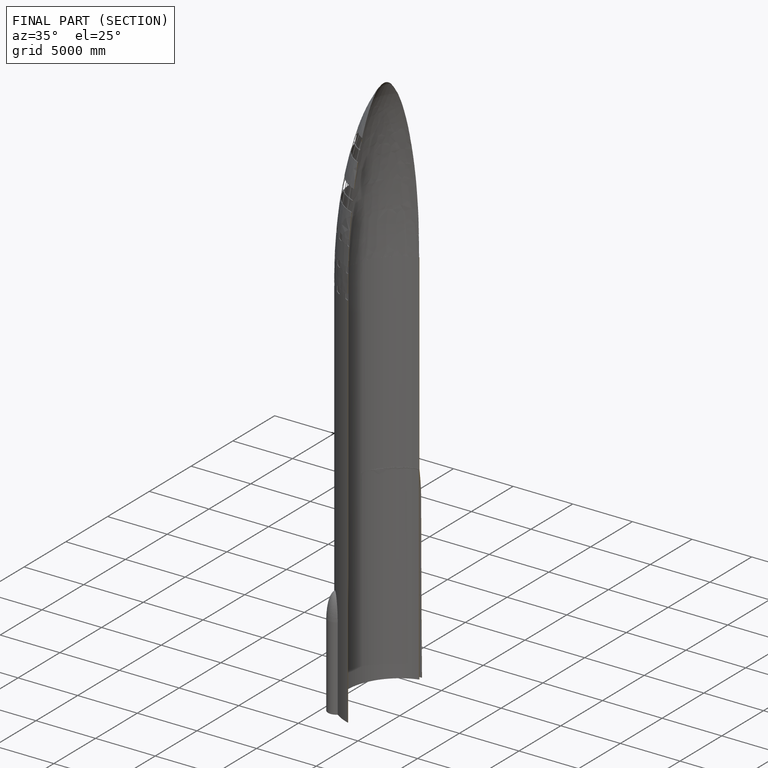
[diagram: finished part — half-section view (interior)]
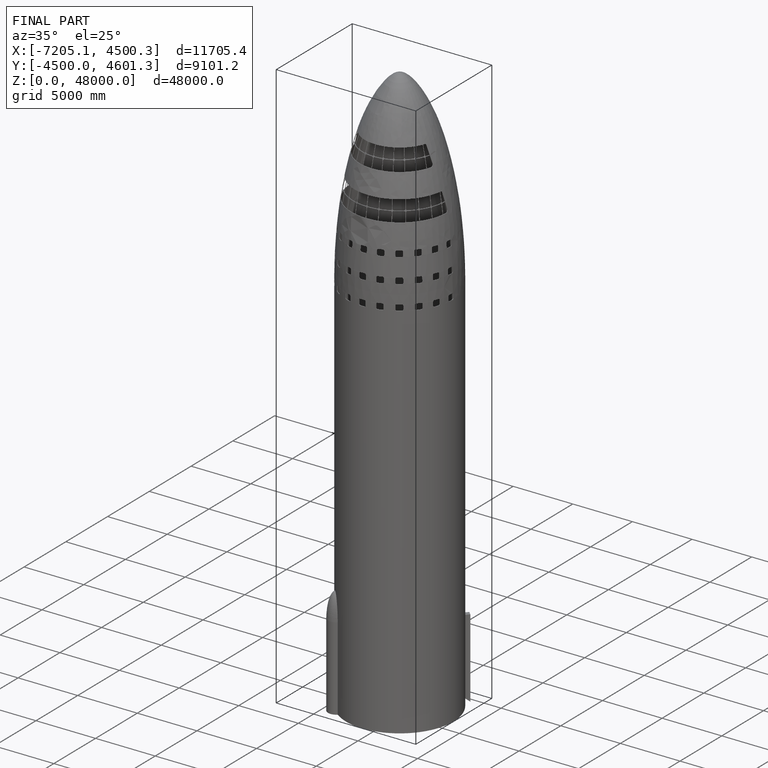
[diagram: finished part — iso view with bounding-box wireframe]
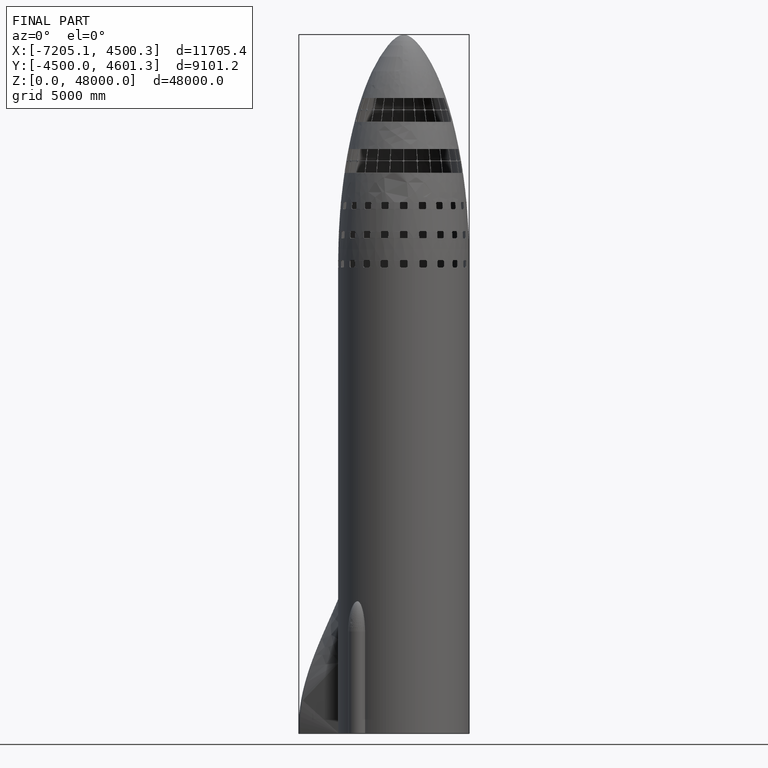
[diagram: finished part — front view with bounding-box wireframe]
